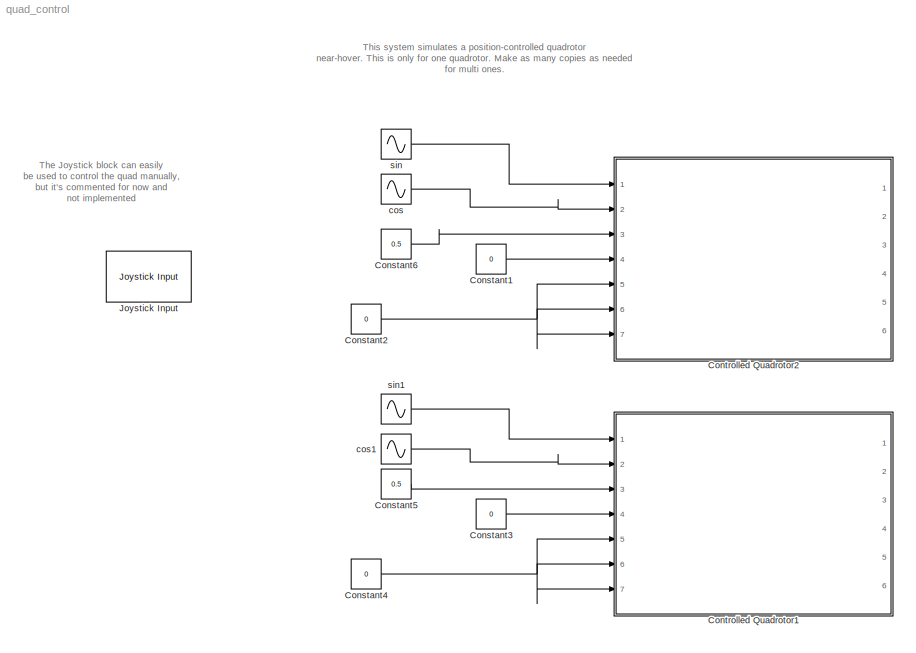
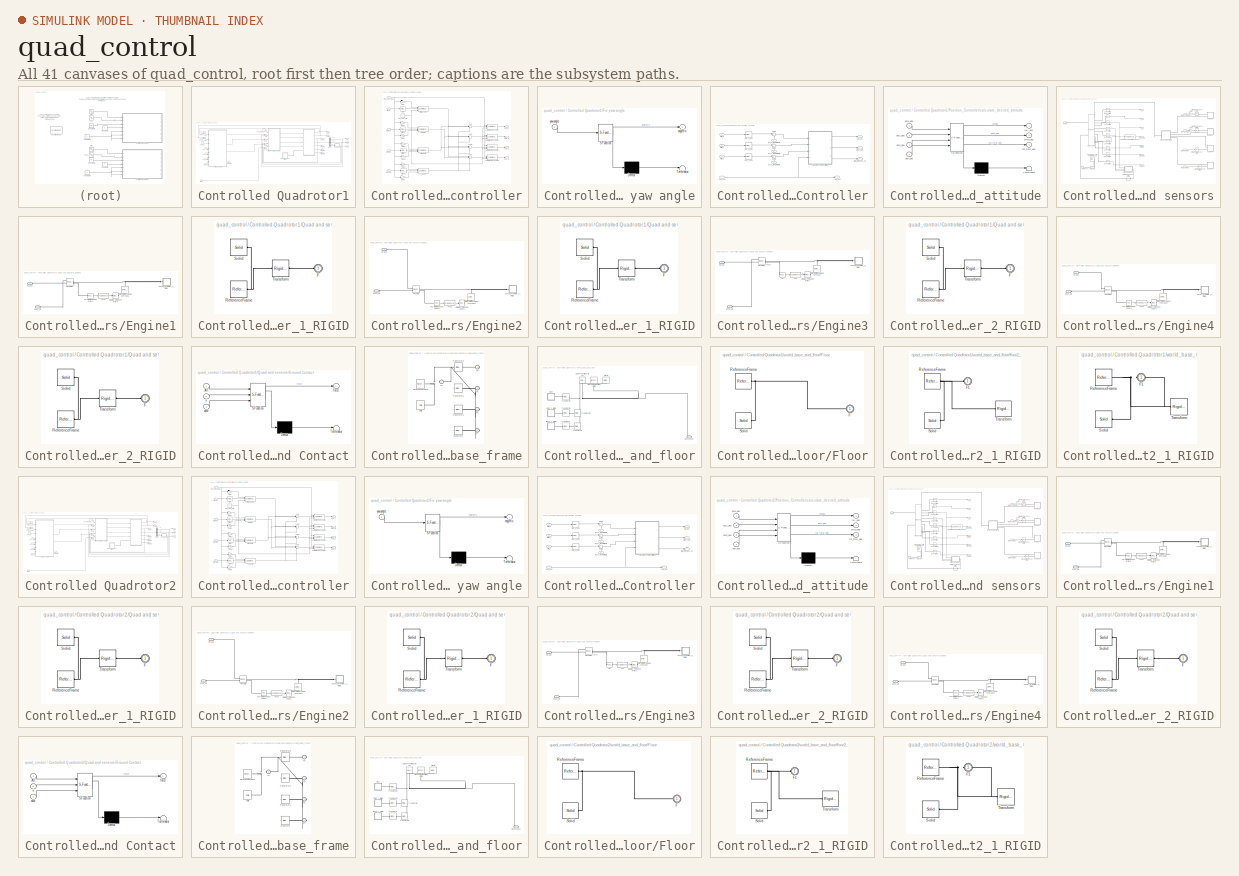
[diagram: thumbnail index - all 41 canvases of the model, root first then tree order]
MODEL quad_control
KIND model
BLOCK [Constant] Constant1
  SID = 479
  Value = 0
BLOCK [Constant] Constant2
  SID = 480
  Value = 0
BLOCK [Constant] Constant3
  SID = 692
  Value = 0
BLOCK [Constant] Constant4
  SID = 693
  Value = 0
BLOCK [Constant] Constant5
  SID = 694
  Value = 0.5
BLOCK [Constant] Constant6
  SID = 481
  Value = 0.5
BLOCK [SubSystem] Controlled Quadrotor1
  Ports = [7, 6]
  RequestExecContextInheritance = off
  SID = 695
BLOCK [Outport] Controlled Quadrotor1/Alt_meas
  IconDisplay = Port number
  Port = 3
  SID = 896
BLOCK [Inport] Controlled Quadrotor1/Altitude
  IconDisplay = Port number
  Port = 3
  SID = 698
BLOCK [SubSystem] Controlled Quadrotor1/Altitude and Attitude controller
  Ports = [5, 4]
  RequestExecContextInheritance = off
  SID = 703
BLOCK [Reference] Controlled Quadrotor1/Altitude and Attitude controller/Altitude Cmd  REF=simulink/Discontinuities/Saturation\nDynamic
  DoSatur = off
  LockScale = off
  OutDataType = fixdt(1, 16)
  OutDataTypeStr = Inherit: Same as second input
  OutMax = []
  OutMin = []
  OutScaling = 2^-10
  OutputDataTypeScalingMode = Same as second input
  Ports = [3, 1]
  RndMeth = Floor
  SID = 709
  SourceBlock = simulink/Discontinuities/Saturation\nDynamic
  SourceProductBaseCode = SL
  SourceProductName = Simulink
  SourceType = Saturation Dynamic
BLOCK [Reference] Controlled Quadrotor1/Altitude and Attitude controller/CrtAlt  REF=simulink/Continuous/PID Controller
  AntiWindupMode = none
  Controller = PID
  D = 5
  DOutDataTypeStr = Inherit: Inherit via internal rule
  DOutMax = []
  DOutMin = []
  DParamDataTypeStr = Inherit: Inherit via internal rule
  DParamMax = []
  DParamMin = []
  DifferentiatorICPrevScaledInput = 0
  DifferentiatorOutDataTypeStr = Inherit: Inherit via internal rule
  DifferentiatorOutMax = []
  DifferentiatorOutMin = []
  ExternalReset = none
  FilterContinuousStateAttributes = ''
  FilterMethod = Forward Euler
  FilterOutDataTypeStr = Inherit: Inherit via internal rule
  FilterOutMax = []
  FilterOutMin = []
  FilterRTWStateStorageClass = Auto
  FilterStateMustResolveToSignalObject = off
  Form = Parallel
  I = 10
  IOutDataTypeStr = Inherit: Inherit via internal rule
  IOutMax = []
  IOutMin = []
  IParamDataTypeStr = Inherit: Inherit via internal rule
  IParamMax = []
  IParamMin = []
  IgnoreLimit = off
  InitialConditionForFilter = 0
  InitialConditionForIntegrator = 0
  InitialConditionSource = internal
  IntegratorContinuousStateAttributes = ''
  IntegratorMethod = Forward Euler
  IntegratorOutDataTypeStr = Inherit: Inherit via internal rule
  IntegratorOutMax = []
  IntegratorOutMin = []
  IntegratorRTWStateStorageClass = Auto
  IntegratorStateMustResolveToSignalObject = off
  Kb = 1
  KbOutDataTypeStr = Inherit: Inherit via internal rule
  KbOutMax = []
  KbOutMin = []
  KbParamDataTypeStr = Inherit: Inherit via internal rule
  KbParamMax = []
  KbParamMin = []
  Kt = 1
  KtOutDataTypeStr = Inherit: Inherit via internal rule
  KtOutMax = []
  KtOutMin = []
  KtParamDataTypeStr = Inherit: Inherit via internal rule
  KtParamMax = []
  KtParamMin = []
  LimitOutput = off
  LinearizeAsGain = off
  LockScale = off
  LowerSaturationLimit = -0.116
  N = 100
  NOutDataTypeStr = Inherit: Inherit via internal rule
  NOutMax = []
  NOutMin = []
  NParamDataTypeStr = Inherit: Inherit via internal rule
  NParamMax = []
  NParamMin = []
  P = 20
  POutDataTypeStr = Inherit: Inherit via internal rule
  POutMax = []
  POutMin = []
  PParamDataTypeStr = Inherit: Inherit via internal rule
  PParamMax = []
  PParamMin = []
  Ports = [1, 1]
  RndMeth = Floor
  SID = 710
  SampleTime = 0.001
  SaturateOnIntegerOverflow = off
  SaturationOutDataTypeStr = Inherit: Same as input
  SaturationOutMax = []
  SaturationOutMin = []
  SourceBlock = simulink/Continuous/PID Controller
  SourceProductBaseCode = SL
  SourceProductName = Simulink
  SourceType = PID 1dof
  SumAccumDataTypeStr = Inherit: Inherit via internal rule
  SumDAccumDataTypeStr = Inherit: Inherit via internal rule
  SumDOutDataTypeStr = Inherit: Inherit via internal rule
  SumDOutMax = []
  SumDOutMin = []
  SumI1AccumDataTypeStr = Inherit: Inherit via internal rule
  SumI1OutDataTypeStr = Inherit: Inherit via internal rule
  SumI1OutMax = []
  SumI1OutMin = []
  SumI2AccumDataTypeStr = Inherit: Inherit via internal rule
  SumI2OutDataTypeStr = Inherit: Inherit via internal rule
  SumI2OutMax = []
  SumI2OutMin = []
  SumI3AccumDataTypeStr = Inherit: Inherit via internal rule
  SumI3OutDataTypeStr = Inherit: Inherit via internal rule
  SumI3OutMax = []
  SumI3OutMin = []
  SumOutDataTypeStr = Inherit: Inherit via internal rule
  SumOutMax = []
  SumOutMin = []
  TimeDomain = Discrete-time
  TrackingMode = off
  UpperSaturationLimit = 0.116
  UseFilter = on
  ZeroCross = on
BLOCK [Reference] Controlled Quadrotor1/Altitude and Attitude controller/CrtlPitch  REF=simulink/Continuous/PID Controller
  AntiWindupMode = none
  Controller = PD
  D = 1
  DOutDataTypeStr = Inherit: Inherit via internal rule
  DOutMax = []
  DOutMin = []
  DParamDataTypeStr = Inherit: Inherit via internal rule
  DParamMax = []
  DParamMin = []
  DifferentiatorICPrevScaledInput = 0
  DifferentiatorOutDataTypeStr = Inherit: Inherit via internal rule
  DifferentiatorOutMax = []
  DifferentiatorOutMin = []
  ExternalReset = none
  FilterContinuousStateAttributes = ''
  FilterMethod = Forward Euler
  FilterOutDataTypeStr = Inherit: Inherit via internal rule
  FilterOutMax = []
  FilterOutMin = []
  FilterRTWStateStorageClass = Auto
  FilterStateMustResolveToSignalObject = off
  Form = Parallel
  I = 0
  IOutDataTypeStr = Inherit: Inherit via internal rule
  IOutMax = []
  IOutMin = []
  IParamDataTypeStr = Inherit: Inherit via internal rule
  IParamMax = []
  IParamMin = []
  IgnoreLimit = off
  InitialConditionForFilter = 0
  InitialConditionForIntegrator = 0
  InitialConditionSource = internal
  IntegratorContinuousStateAttributes = ''
  IntegratorMethod = Forward Euler
  IntegratorOutDataTypeStr = Inherit: Inherit via internal rule
  IntegratorOutMax = []
  IntegratorOutMin = []
  IntegratorRTWStateStorageClass = Auto
  IntegratorStateMustResolveToSignalObject = off
  Kb = 1
  KbOutDataTypeStr = Inherit: Inherit via internal rule
  KbOutMax = []
  KbOutMin = []
  KbParamDataTypeStr = Inherit: Inherit via internal rule
  KbParamMax = []
  KbParamMin = []
  Kt = 1
  KtOutDataTypeStr = Inherit: Inherit via internal rule
  KtOutMax = []
  KtOutMin = []
  KtParamDataTypeStr = Inherit: Inherit via internal rule
  KtParamMax = []
  KtParamMin = []
  LimitOutput = off
  LinearizeAsGain = off
  LockScale = off
  LowerSaturationLimit = 0
  N = 100
  NOutDataTypeStr = Inherit: Inherit via internal rule
  NOutMax = []
  NOutMin = []
  NParamDataTypeStr = Inherit: Inherit via internal rule
  NParamMax = []
  NParamMin = []
  P = 2
  POutDataTypeStr = Inherit: Inherit via internal rule
  POutMax = []
  POutMin = []
  PParamDataTypeStr = Inherit: Inherit via internal rule
  PParamMax = []
  PParamMin = []
  Ports = [1, 1]
  RndMeth = Floor
  SID = 711
  SampleTime = 0.001
  SaturateOnIntegerOverflow = off
  SaturationOutDataTypeStr = Inherit: Same as input
  SaturationOutMax = []
  SaturationOutMin = []
  SourceBlock = simulink/Continuous/PID Controller
  SourceProductBaseCode = SL
  SourceProductName = Simulink
  SourceType = PID 1dof
  SumAccumDataTypeStr = Inherit: Inherit via internal rule
  SumDAccumDataTypeStr = Inherit: Inherit via internal rule
  SumDOutDataTypeStr = Inherit: Inherit via internal rule
  SumDOutMax = []
  SumDOutMin = []
  SumI1AccumDataTypeStr = Inherit: Inherit via internal rule
  SumI1OutDataTypeStr = Inherit: Inherit via internal rule
  SumI1OutMax = []
  SumI1OutMin = []
  SumI2AccumDataTypeStr = Inherit: Inherit via internal rule
  SumI2OutDataTypeStr = Inherit: Inherit via internal rule
  SumI2OutMax = []
  SumI2OutMin = []
  SumI3AccumDataTypeStr = Inherit: Inherit via internal rule
  SumI3OutDataTypeStr = Inherit: Inherit via internal rule
  SumI3OutMax = []
  SumI3OutMin = []
  SumOutDataTypeStr = Inherit: Inherit via internal rule
  SumOutMax = []
  SumOutMin = []
  TimeDomain = Discrete-time
  TrackingMode = off
  UpperSaturationLimit = +Inf
  UseFilter = on
  ZeroCross = on
BLOCK [Reference] Controlled Quadrotor1/Altitude and Attitude controller/CrtlYaw  REF=simulink/Continuous/PID Controller
  AntiWindupMode = none
  Controller = PD
  D = 0.01
  DOutDataTypeStr = Inherit: Inherit via internal rule
  DOutMax = []
  DOutMin = []
  DParamDataTypeStr = Inherit: Inherit via internal rule
  DParamMax = []
  DParamMin = []
  DifferentiatorICPrevScaledInput = 0
  DifferentiatorOutDataTypeStr = Inherit: Inherit via internal rule
  DifferentiatorOutMax = []
  DifferentiatorOutMin = []
  ExternalReset = none
  FilterContinuousStateAttributes = ''
  FilterMethod = Forward Euler
  FilterOutDataTypeStr = Inherit: Inherit via internal rule
  FilterOutMax = []
  FilterOutMin = []
  FilterRTWStateStorageClass = Auto
  FilterStateMustResolveToSignalObject = off
  Form = Parallel
  I = 1
  IOutDataTypeStr = Inherit: Inherit via internal rule
  IOutMax = []
  IOutMin = []
  IParamDataTypeStr = Inherit: Inherit via internal rule
  IParamMax = []
  IParamMin = []
  IgnoreLimit = off
  InitialConditionForFilter = 0
  InitialConditionForIntegrator = 0
  InitialConditionSource = internal
  IntegratorContinuousStateAttributes = ''
  IntegratorMethod = Forward Euler
  IntegratorOutDataTypeStr = Inherit: Inherit via internal rule
  IntegratorOutMax = []
  IntegratorOutMin = []
  IntegratorRTWStateStorageClass = Auto
  IntegratorStateMustResolveToSignalObject = off
  Kb = 1
  KbOutDataTypeStr = Inherit: Inherit via internal rule
  KbOutMax = []
  KbOutMin = []
  KbParamDataTypeStr = Inherit: Inherit via internal rule
  KbParamMax = []
  KbParamMin = []
  Kt = 1
  KtOutDataTypeStr = Inherit: Inherit via internal rule
  KtOutMax = []
  KtOutMin = []
  KtParamDataTypeStr = Inherit: Inherit via internal rule
  KtParamMax = []
  KtParamMin = []
  LimitOutput = off
  LinearizeAsGain = off
  LockScale = off
  LowerSaturationLimit = -0.01
  N = 100
  NOutDataTypeStr = Inherit: Inherit via internal rule
  NOutMax = []
  NOutMin = []
  NParamDataTypeStr = Inherit: Inherit via internal rule
  NParamMax = []
  NParamMin = []
  P = 0.05
  POutDataTypeStr = Inherit: Inherit via internal rule
  POutMax = []
  POutMin = []
  PParamDataTypeStr = Inherit: Inherit via internal rule
  PParamMax = []
  PParamMin = []
  Ports = [1, 1]
  RndMeth = Floor
  SID = 712
  SampleTime = 0.001
  SaturateOnIntegerOverflow = off
  SaturationOutDataTypeStr = Inherit: Same as input
  SaturationOutMax = []
  SaturationOutMin = []
  SourceBlock = simulink/Continuous/PID Controller
  SourceProductBaseCode = SL
  SourceProductName = Simulink
  SourceType = PID 1dof
  SumAccumDataTypeStr = Inherit: Inherit via internal rule
  SumDAccumDataTypeStr = Inherit: Inherit via internal rule
  SumDOutDataTypeStr = Inherit: Inherit via internal rule
  SumDOutMax = []
  SumDOutMin = []
  SumI1AccumDataTypeStr = Inherit: Inherit via internal rule
  SumI1OutDataTypeStr = Inherit: Inherit via internal rule
  SumI1OutMax = []
  SumI1OutMin = []
  SumI2AccumDataTypeStr = Inherit: Inherit via internal rule
  SumI2OutDataTypeStr = Inherit: Inherit via internal rule
  SumI2OutMax = []
  SumI2OutMin = []
  SumI3AccumDataTypeStr = Inherit: Inherit via internal rule
  SumI3OutDataTypeStr = Inherit: Inherit via internal rule
  SumI3OutMax = []
  SumI3OutMin = []
  SumOutDataTypeStr = Inherit: Inherit via internal rule
  SumOutMax = []
  SumOutMin = []
  TimeDomain = Discrete-time
  TrackingMode = off
  UpperSaturationLimit = 0.01
  UseFilter = on
  ZeroCross = on
BLOCK [Reference] Controlled Quadrotor1/Altitude and Attitude controller/CtrlRoll  REF=simulink/Continuous/PID Controller
  AntiWindupMode = none
  Controller = PD
  D = 1
  DOutDataTypeStr = Inherit: Inherit via internal rule
  DOutMax = []
  DOutMin = []
  DParamDataTypeStr = Inherit: Inherit via internal rule
  DParamMax = []
  DParamMin = []
  DifferentiatorICPrevScaledInput = 0
  DifferentiatorOutDataTypeStr = Inherit: Inherit via internal rule
  DifferentiatorOutMax = []
  DifferentiatorOutMin = []
  ExternalReset = none
  FilterContinuousStateAttributes = ''
  FilterMethod = Forward Euler
  FilterOutDataTypeStr = Inherit: Inherit via internal rule
  FilterOutMax = []
  FilterOutMin = []
  FilterRTWStateStorageClass = Auto
  FilterStateMustResolveToSignalObject = off
  Form = Parallel
  I = 0
  IOutDataTypeStr = Inherit: Inherit via internal rule
  IOutMax = []
  IOutMin = []
  IParamDataTypeStr = Inherit: Inherit via internal rule
  IParamMax = []
  IParamMin = []
  IgnoreLimit = off
  InitialConditionForFilter = 0
  InitialConditionForIntegrator = 0
  InitialConditionSource = internal
  IntegratorContinuousStateAttributes = ''
  IntegratorMethod = Forward Euler
  IntegratorOutDataTypeStr = Inherit: Inherit via internal rule
  IntegratorOutMax = []
  IntegratorOutMin = []
  IntegratorRTWStateStorageClass = Auto
  IntegratorStateMustResolveToSignalObject = off
  Kb = 1
  KbOutDataTypeStr = Inherit: Inherit via internal rule
  KbOutMax = []
  KbOutMin = []
  KbParamDataTypeStr = Inherit: Inherit via internal rule
  KbParamMax = []
  KbParamMin = []
  Kt = 1
  KtOutDataTypeStr = Inherit: Inherit via internal rule
  KtOutMax = []
  KtOutMin = []
  KtParamDataTypeStr = Inherit: Inherit via internal rule
  KtParamMax = []
  KtParamMin = []
  LimitOutput = off
  LinearizeAsGain = off
  LockScale = off
  LowerSaturationLimit = 0
  N = 100
  NOutDataTypeStr = Inherit: Inherit via internal rule
  NOutMax = []
  NOutMin = []
  NParamDataTypeStr = Inherit: Inherit via internal rule
  NParamMax = []
  NParamMin = []
  P = 2
  POutDataTypeStr = Inherit: Inherit via internal rule
  POutMax = []
  POutMin = []
  PParamDataTypeStr = Inherit: Inherit via internal rule
  PParamMax = []
  PParamMin = []
  Ports = [1, 1]
  RndMeth = Floor
  SID = 713
  SampleTime = 0.001
  SaturateOnIntegerOverflow = off
  SaturationOutDataTypeStr = Inherit: Same as input
  SaturationOutMax = []
  SaturationOutMin = []
  SourceBlock = simulink/Continuous/PID Controller
  SourceProductBaseCode = SL
  SourceProductName = Simulink
  SourceType = PID 1dof
  SumAccumDataTypeStr = Inherit: Inherit via internal rule
  SumDAccumDataTypeStr = Inherit: Inherit via internal rule
  SumDOutDataTypeStr = Inherit: Inherit via internal rule
  SumDOutMax = []
  SumDOutMin = []
  SumI1AccumDataTypeStr = Inherit: Inherit via internal rule
  SumI1OutDataTypeStr = Inherit: Inherit via internal rule
  SumI1OutMax = []
  SumI1OutMin = []
  SumI2AccumDataTypeStr = Inherit: Inherit via internal rule
  SumI2OutDataTypeStr = Inherit: Inherit via internal rule
  SumI2OutMax = []
  SumI2OutMin = []
  SumI3AccumDataTypeStr = Inherit: Inherit via internal rule
  SumI3OutDataTypeStr = Inherit: Inherit via internal rule
  SumI3OutMax = []
  SumI3OutMin = []
  SumOutDataTypeStr = Inherit: Inherit via internal rule
  SumOutMax = []
  SumOutMin = []
  TimeDomain = Discrete-time
  TrackingMode = off
  UpperSaturationLimit = +Inf
  UseFilter = on
  ZeroCross = on
BLOCK [Inport] Controlled Quadrotor1/Altitude and Attitude controller/Err_Alt
  IconDisplay = Port number
  Port = 5
  SID = 708
BLOCK [Inport] Controlled Quadrotor1/Altitude and Attitude controller/Err_Pitch
  IconDisplay = Port number
  Port = 3
  SID = 706
BLOCK [Inport] Controlled Quadrotor1/Altitude and Attitude controller/Err_Roll
  IconDisplay = Port number
  Port = 2
  SID = 705
BLOCK [Inport] Controlled Quadrotor1/Altitude and Attitude controller/Err_Yaw
  IconDisplay = Port number
  Port = 4
  SID = 707
BLOCK [Gain] Controlled Quadrotor1/Altitude and Attitude controller/Gain
  Gain = 0.8
  OutDataTypeStr = Inherit: Inherit via internal rule
  ParamDataTypeStr = Inherit: Inherit via internal rule
  SID = 714
  SaturateOnIntegerOverflow = off
BLOCK [Gain] Controlled Quadrotor1/Altitude and Attitude controller/Gain1
  Gain = 0.1
  OutDataTypeStr = Inherit: Inherit via internal rule
  ParamDataTypeStr = Inherit: Inherit via internal rule
  SID = 715
  SaturateOnIntegerOverflow = off
BLOCK [Gain] Controlled Quadrotor1/Altitude and Attitude controller/Gain2
  Gain = -0.1
  OutDataTypeStr = Inherit: Inherit via internal rule
  ParamDataTypeStr = Inherit: Inherit via internal rule
  SID = 716
  SaturateOnIntegerOverflow = off
BLOCK [Gain] Controlled Quadrotor1/Altitude and Attitude controller/Gain3
  Gain = 0.1
  OutDataTypeStr = Inherit: Inherit via internal rule
  ParamDataTypeStr = Inherit: Inherit via internal rule
  SID = 717
  SaturateOnIntegerOverflow = off
BLOCK [Gain] Controlled Quadrotor1/Altitude and Attitude controller/Gain4
  Gain = -0.1
  OutDataTypeStr = Inherit: Inherit via internal rule
  ParamDataTypeStr = Inherit: Inherit via internal rule
  SID = 718
  SaturateOnIntegerOverflow = off
BLOCK [Gain] Controlled Quadrotor1/Altitude and Attitude controller/Gain5
  Gain = 0.1
  OutDataTypeStr = Inherit: Inherit via internal rule
  ParamDataTypeStr = Inherit: Inherit via internal rule
  SID = 719
  SaturateOnIntegerOverflow = off
BLOCK [Gain] Controlled Quadrotor1/Altitude and Attitude controller/Gain6
  Gain = -0.1
  OutDataTypeStr = Inherit: Inherit via internal rule
  ParamDataTypeStr = Inherit: Inherit via internal rule
  SID = 720
  SaturateOnIntegerOverflow = off
BLOCK [Reference] Controlled Quadrotor1/Altitude and Attitude controller/Pitch Cmd  REF=simulink/Discontinuities/Saturation\nDynamic
  DoSatur = off
  LockScale = on
  OutDataType = fixdt(1, 16)
  OutDataTypeStr = Inherit: Same as second input
  OutMax = []
  OutMin = []
  OutScaling = 2^-10
  OutputDataTypeScalingMode = Same as second input
  Ports = [3, 1]
  RndMeth = Floor
  SID = 721
  SourceBlock = simulink/Discontinuities/Saturation\nDynamic
  SourceProductBaseCode = SL
  SourceProductName = Simulink
  SourceType = Saturation Dynamic
BLOCK [Inport] Controlled Quadrotor1/Altitude and Attitude controller/Ref_Spd_Max
  IconDisplay = Port number
  SID = 704
BLOCK [Constant] Controlled Quadrotor1/Altitude and Attitude controller/Ref_Spd_Min
  SID = 722
  Value = 0
BLOCK [Reference] Controlled Quadrotor1/Altitude and Attitude controller/Roll Cmd  REF=simulink/Discontinuities/Saturation\nDynamic
  DoSatur = off
  LockScale = on
  OutDataType = fixdt(1, 16)
  OutDataTypeStr = Inherit: Same as second input
  OutMax = []
  OutMin = []
  OutScaling = 2^-10
  OutputDataTypeScalingMode = Same as second input
  Ports = [3, 1]
  RndMeth = Floor
  SID = 723
  SourceBlock = simulink/Discontinuities/Saturation\nDynamic
  SourceProductBaseCode = SL
  SourceProductName = Simulink
  SourceType = Saturation Dynamic
BLOCK [Reference] Controlled Quadrotor1/Altitude and Attitude controller/Saturation\nDynamic  REF=simulink/Discontinuities/Saturation\nDynamic
  DoSatur = off
  LockScale = off
  OutDataType = fixdt(1, 16)
  OutDataTypeStr = Inherit: Same as second input
  OutMax = []
  OutMin = []
  OutScaling = 2^-10
  OutputDataTypeScalingMode = Same as second input
  Ports = [3, 1]
  RndMeth = Floor
  SID = 724
  SourceBlock = simulink/Discontinuities/Saturation\nDynamic
  SourceProductBaseCode = SL
  SourceProductName = Simulink
  SourceType = Saturation Dynamic
BLOCK [Reference] Controlled Quadrotor1/Altitude and Attitude controller/Saturation\nDynamic1  REF=simulink/Discontinuities/Saturation\nDynamic
  DoSatur = off
  LockScale = off
  OutDataType = fixdt(1, 16)
  OutDataTypeStr = Inherit: Same as second input
  OutMax = []
  OutMin = []
  OutScaling = 2^-10
  OutputDataTypeScalingMode = Same as second input
  Ports = [3, 1]
  RndMeth = Floor
  SID = 725
  SourceBlock = simulink/Discontinuities/Saturation\nDynamic
  SourceProductBaseCode = SL
  SourceProductName = Simulink
  SourceType = Saturation Dynamic
BLOCK [Reference] Controlled Quadrotor1/Altitude and Attitude controller/Saturation\nDynamic2  REF=simulink/Discontinuities/Saturation\nDynamic
  DoSatur = off
  LockScale = off
  OutDataType = fixdt(1, 16)
  OutDataTypeStr = Inherit: Same as second input
  OutMax = []
  OutMin = []
  OutScaling = 2^-10
  OutputDataTypeScalingMode = Same as second input
  Ports = [3, 1]
  RndMeth = Floor
  SID = 726
  SourceBlock = simulink/Discontinuities/Saturation\nDynamic
  SourceProductBaseCode = SL
  SourceProductName = Simulink
  SourceType = Saturation Dynamic
BLOCK [Reference] Controlled Quadrotor1/Altitude and Attitude controller/Saturation\nDynamic3  REF=simulink/Discontinuities/Saturation\nDynamic
  DoSatur = off
  LockScale = off
  OutDataType = fixdt(1, 16)
  OutDataTypeStr = Inherit: Same as second input
  OutMax = []
  OutMin = []
  OutScaling = 2^-10
  OutputDataTypeScalingMode = Same as second input
  Ports = [3, 1]
  RndMeth = Floor
  SID = 727
  SourceBlock = simulink/Discontinuities/Saturation\nDynamic
  SourceProductBaseCode = SL
  SourceProductName = Simulink
  SourceType = Saturation Dynamic
BLOCK [Outport] Controlled Quadrotor1/Altitude and Attitude controller/Spd_A
  IconDisplay = Port number
  SID = 733
BLOCK [Outport] Controlled Quadrotor1/Altitude and Attitude controller/Spd_B
  IconDisplay = Port number
  Port = 2
  SID = 734
BLOCK [Outport] Controlled Quadrotor1/Altitude and Attitude controller/Spd_C
  IconDisplay = Port number
  Port = 3
  SID = 735
BLOCK [Outport] Controlled Quadrotor1/Altitude and Attitude controller/Spd_D
  IconDisplay = Port number
  Port = 4
  SID = 736
BLOCK [Sum] Controlled Quadrotor1/Altitude and Attitude controller/Sum
  IconShape = round
  InputSameDT = off
  Inputs = |+-+
  OutDataTypeStr = Inherit: Inherit via internal rule
  Ports = [3, 1]
  SID = 728
  SaturateOnIntegerOverflow = off
BLOCK [Sum] Controlled Quadrotor1/Altitude and Attitude controller/Sum2
  IconShape = round
  InputSameDT = off
  Inputs = |++-
  OutDataTypeStr = Inherit: Inherit via internal rule
  Ports = [3, 1]
  SID = 729
  SaturateOnIntegerOverflow = off
BLOCK [Sum] Controlled Quadrotor1/Altitude and Attitude controller/Sum3
  IconShape = round
  InputSameDT = off
  Inputs = |+--
  OutDataTypeStr = Inherit: Inherit via internal rule
  Ports = [3, 1]
  SID = 730
  SaturateOnIntegerOverflow = off
BLOCK [Sum] Controlled Quadrotor1/Altitude and Attitude controller/Sum5
  IconShape = round
  InputSameDT = off
  Inputs = |+++
  OutDataTypeStr = Inherit: Inherit via internal rule
  Ports = [3, 1]
  SID = 731
  SaturateOnIntegerOverflow = off
BLOCK [Reference] Controlled Quadrotor1/Altitude and Attitude controller/Yaw Cmd  REF=simulink/Discontinuities/Saturation\nDynamic
  DoSatur = off
  LockScale = on
  OutDataType = fixdt(1, 16)
  OutDataTypeStr = Inherit: Same as second input
  OutMax = []
  OutMin = []
  OutScaling = 2^-10
  OutputDataTypeScalingMode = Same as second input
  Ports = [3, 1]
  RndMeth = Floor
  SID = 732
  SourceBlock = simulink/Discontinuities/Saturation\nDynamic
  SourceProductBaseCode = SL
  SourceProductName = Simulink
  SourceType = Saturation Dynamic
BLOCK [Constant] Controlled Quadrotor1/Constant
  SID = 737
  Value = 0
BLOCK [Demux] Controlled Quadrotor1/Demux
  DisplayOption = bar
  Outputs = 3
  Ports = [1, 3]
  SID = 738
BLOCK [SubSystem] Controlled Quadrotor1/Fix yaw angle
  ErrorFcn = Stateflow.Translate.translate
  PermitHierarchicalResolution = ExplicitOnly
  Ports = [1, 1]
  RequestExecContextInheritance = off
  SFBlockType = MATLAB Function
  SID = 739
  TreatAsAtomicUnit = on
BLOCK [Demux] Controlled Quadrotor1/Fix yaw angle/ Demux 
  Outputs = 1
  Ports = [1, 1]
  SID = 739::20
BLOCK [S-Function] Controlled Quadrotor1/Fix yaw angle/ SFunction 
  EnableBusSupport = off
  FunctionName = sf_sfun
  PortCounts = [1 2]
  Ports = [1, 2]
  SFcnIsStateOwnerBlock = off
  SFunctionDeploymentMode = off
  SID = 739::19
  Tag = Stateflow S-Function 3
BLOCK [Terminator] Controlled Quadrotor1/Fix yaw angle/ Terminator 
  SID = 739::21
BLOCK [Outport] Controlled Quadrotor1/Fix yaw angle/anglefix
  IconDisplay = Port number
  SID = 739::5
BLOCK [Inport] Controlled Quadrotor1/Fix yaw angle/yawangle
  IconDisplay = Port number
  SID = 739::1
BLOCK [SubSystem] Controlled Quadrotor1/Position_Controller
  Ports = [7, 4]
  RequestExecContextInheritance = off
  SID = 740
BLOCK [Reference] Controlled Quadrotor1/Position_Controller/PID_X_pos  REF=simulink/Continuous/PID Controller
  AntiWindupMode = none
  Controller = PD
  D = 3
  DOutDataTypeStr = Inherit: Inherit via internal rule
  DOutMax = []
  DOutMin = []
  DParamDataTypeStr = Inherit: Inherit via internal rule
  DParamMax = []
  DParamMin = []
  DifferentiatorICPrevScaledInput = 0
  DifferentiatorOutDataTypeStr = Inherit: Inherit via internal rule
  DifferentiatorOutMax = []
  DifferentiatorOutMin = []
  ExternalReset = none
  FilterContinuousStateAttributes = ''
  FilterMethod = Forward Euler
  FilterOutDataTypeStr = Inherit: Inherit via internal rule
  FilterOutMax = []
  FilterOutMin = []
  FilterRTWStateStorageClass = Auto
  FilterStateMustResolveToSignalObject = off
  Form = Parallel
  I = 1
  IOutDataTypeStr = Inherit: Inherit via internal rule
  IOutMax = []
  IOutMin = []
  IParamDataTypeStr = Inherit: Inherit via internal rule
  IParamMax = []
  IParamMin = []
  IgnoreLimit = off
  InitialConditionForFilter = 0
  InitialConditionForIntegrator = 0
  InitialConditionSource = internal
  IntegratorContinuousStateAttributes = ''
  IntegratorMethod = Forward Euler
  IntegratorOutDataTypeStr = Inherit: Inherit via internal rule
  IntegratorOutMax = []
  IntegratorOutMin = []
  IntegratorRTWStateStorageClass = Auto
  IntegratorStateMustResolveToSignalObject = off
  Kb = 1
  KbOutDataTypeStr = Inherit: Inherit via internal rule
  KbOutMax = []
  KbOutMin = []
  KbParamDataTypeStr = Inherit: Inherit via internal rule
  KbParamMax = []
  KbParamMin = []
  Kt = 1
  KtOutDataTypeStr = Inherit: Inherit via internal rule
  KtOutMax = []
  KtOutMin = []
  KtParamDataTypeStr = Inherit: Inherit via internal rule
  KtParamMax = []
  KtParamMin = []
  LimitOutput = off
  LinearizeAsGain = on
  LockScale = off
  LowerSaturationLimit = -inf
  N = 148.847847480226
  NOutDataTypeStr = Inherit: Inherit via internal rule
  NOutMax = []
  NOutMin = []
  NParamDataTypeStr = Inherit: Inherit via internal rule
  NParamMax = []
  NParamMin = []
  P = 10
  POutDataTypeStr = Inherit: Inherit via internal rule
  POutMax = []
  POutMin = []
  PParamDataTypeStr = Inherit: Inherit via internal rule
  PParamMax = []
  PParamMin = []
  Ports = [1, 1]
  RndMeth = Floor
  SID = 748
  SampleTime = 0.01
  SaturateOnIntegerOverflow = off
  SaturationOutDataTypeStr = Inherit: Same as input
  SaturationOutMax = []
  SaturationOutMin = []
  SourceBlock = simulink/Continuous/PID Controller
  SourceProductBaseCode = SL
  SourceProductName = Simulink
  SourceType = PID 1dof
  SumAccumDataTypeStr = Inherit: Inherit via internal rule
  SumDAccumDataTypeStr = Inherit: Inherit via internal rule
  SumDOutDataTypeStr = Inherit: Inherit via internal rule
  SumDOutMax = []
  SumDOutMin = []
  SumI1AccumDataTypeStr = Inherit: Inherit via internal rule
  SumI1OutDataTypeStr = Inherit: Inherit via internal rule
  SumI1OutMax = []
  SumI1OutMin = []
  SumI2AccumDataTypeStr = Inherit: Inherit via internal rule
  SumI2OutDataTypeStr = Inherit: Inherit via internal rule
  SumI2OutMax = []
  SumI2OutMin = []
  SumI3AccumDataTypeStr = Inherit: Inherit via internal rule
  SumI3OutDataTypeStr = Inherit: Inherit via internal rule
  SumI3OutMax = []
  SumI3OutMin = []
  SumOutDataTypeStr = Inherit: Inherit via internal rule
  SumOutMax = []
  SumOutMin = []
  TimeDomain = Discrete-time
  TrackingMode = off
  UpperSaturationLimit = inf
  UseFilter = on
  ZeroCross = on
BLOCK [Reference] Controlled Quadrotor1/Position_Controller/PID_Y_pos  REF=simulink/Continuous/PID Controller
  AntiWindupMode = none
  Controller = PD
  D = 3
  DOutDataTypeStr = Inherit: Inherit via internal rule
  DOutMax = []
  DOutMin = []
  DParamDataTypeStr = Inherit: Inherit via internal rule
  DParamMax = []
  DParamMin = []
  DifferentiatorICPrevScaledInput = 0
  DifferentiatorOutDataTypeStr = Inherit: Inherit via internal rule
  DifferentiatorOutMax = []
  DifferentiatorOutMin = []
  ExternalReset = none
  FilterContinuousStateAttributes = ''
  FilterMethod = Forward Euler
  FilterOutDataTypeStr = Inherit: Inherit via internal rule
  FilterOutMax = []
  FilterOutMin = []
  FilterRTWStateStorageClass = Auto
  FilterStateMustResolveToSignalObject = off
  Form = Parallel
  I = 1
  IOutDataTypeStr = Inherit: Inherit via internal rule
  IOutMax = []
  IOutMin = []
  IParamDataTypeStr = Inherit: Inherit via internal rule
  IParamMax = []
  IParamMin = []
  IgnoreLimit = off
  InitialConditionForFilter = 0
  InitialConditionForIntegrator = 0
  InitialConditionSource = internal
  IntegratorContinuousStateAttributes = ''
  IntegratorMethod = Forward Euler
  IntegratorOutDataTypeStr = Inherit: Inherit via internal rule
  IntegratorOutMax = []
  IntegratorOutMin = []
  IntegratorRTWStateStorageClass = Auto
  IntegratorStateMustResolveToSignalObject = off
  Kb = 1
  KbOutDataTypeStr = Inherit: Inherit via internal rule
  KbOutMax = []
  KbOutMin = []
  KbParamDataTypeStr = Inherit: Inherit via internal rule
  KbParamMax = []
  KbParamMin = []
  Kt = 1
  KtOutDataTypeStr = Inherit: Inherit via internal rule
  KtOutMax = []
  KtOutMin = []
  KtParamDataTypeStr = Inherit: Inherit via internal rule
  KtParamMax = []
  KtParamMin = []
  LimitOutput = off
  LinearizeAsGain = on
  LockScale = off
  LowerSaturationLimit = -inf
  N = 100
  NOutDataTypeStr = Inherit: Inherit via internal rule
  NOutMax = []
  NOutMin = []
  NParamDataTypeStr = Inherit: Inherit via internal rule
  NParamMax = []
  NParamMin = []
  P = 10
  POutDataTypeStr = Inherit: Inherit via internal rule
  POutMax = []
  POutMin = []
  PParamDataTypeStr = Inherit: Inherit via internal rule
  PParamMax = []
  PParamMin = []
  Ports = [1, 1]
  RndMeth = Floor
  SID = 749
  SampleTime = 0.01
  SaturateOnIntegerOverflow = off
  SaturationOutDataTypeStr = Inherit: Same as input
  SaturationOutMax = []
  SaturationOutMin = []
  SourceBlock = simulink/Continuous/PID Controller
  SourceProductBaseCode = SL
  SourceProductName = Simulink
  SourceType = PID 1dof
  SumAccumDataTypeStr = Inherit: Inherit via internal rule
  SumDAccumDataTypeStr = Inherit: Inherit via internal rule
  SumDOutDataTypeStr = Inherit: Inherit via internal rule
  SumDOutMax = []
  SumDOutMin = []
  SumI1AccumDataTypeStr = Inherit: Inherit via internal rule
  SumI1OutDataTypeStr = Inherit: Inherit via internal rule
  SumI1OutMax = []
  SumI1OutMin = []
  SumI2AccumDataTypeStr = Inherit: Inherit via internal rule
  SumI2OutDataTypeStr = Inherit: Inherit via internal rule
  SumI2OutMax = []
  SumI2OutMin = []
  SumI3AccumDataTypeStr = Inherit: Inherit via internal rule
  SumI3OutDataTypeStr = Inherit: Inherit via internal rule
  SumI3OutMax = []
  SumI3OutMin = []
  SumOutDataTypeStr = Inherit: Inherit via internal rule
  SumOutMax = []
  SumOutMin = []
  TimeDomain = Discrete-time
  TrackingMode = off
  UpperSaturationLimit = inf
  UseFilter = on
  ZeroCross = on
BLOCK [Reference] Controlled Quadrotor1/Position_Controller/PID_Z_pos  REF=simulink/Continuous/PID Controller
  AntiWindupMode = none
  Controller = PD
  D = 0.001
  DOutDataTypeStr = Inherit: Inherit via internal rule
  DOutMax = []
  DOutMin = []
  DParamDataTypeStr = Inherit: Inherit via internal rule
  DParamMax = []
  DParamMin = []
  DifferentiatorICPrevScaledInput = 0
  DifferentiatorOutDataTypeStr = Inherit: Inherit via internal rule
  DifferentiatorOutMax = []
  DifferentiatorOutMin = []
  ExternalReset = none
  FilterContinuousStateAttributes = ''
  FilterMethod = Forward Euler
  FilterOutDataTypeStr = Inherit: Inherit via internal rule
  FilterOutMax = []
  FilterOutMin = []
  FilterRTWStateStorageClass = Auto
  FilterStateMustResolveToSignalObject = off
  Form = Parallel
  I = 10
  IOutDataTypeStr = Inherit: Inherit via internal rule
  IOutMax = []
  IOutMin = []
  IParamDataTypeStr = Inherit: Inherit via internal rule
  IParamMax = []
  IParamMin = []
  IgnoreLimit = off
  InitialConditionForFilter = 0
  InitialConditionForIntegrator = 0
  InitialConditionSource = internal
  IntegratorContinuousStateAttributes = ''
  IntegratorMethod = Forward Euler
  IntegratorOutDataTypeStr = Inherit: Inherit via internal rule
  IntegratorOutMax = []
  IntegratorOutMin = []
  IntegratorRTWStateStorageClass = Auto
  IntegratorStateMustResolveToSignalObject = off
  Kb = 1
  KbOutDataTypeStr = Inherit: Inherit via internal rule
  KbOutMax = []
  KbOutMin = []
  KbParamDataTypeStr = Inherit: Inherit via internal rule
  KbParamMax = []
  KbParamMin = []
  Kt = 1
  KtOutDataTypeStr = Inherit: Inherit via internal rule
  KtOutMax = []
  KtOutMin = []
  KtParamDataTypeStr = Inherit: Inherit via internal rule
  KtParamMax = []
  KtParamMin = []
  LimitOutput = off
  LinearizeAsGain = on
  LockScale = off
  LowerSaturationLimit = -inf
  N = 100
  NOutDataTypeStr = Inherit: Inherit via internal rule
  NOutMax = []
  NOutMin = []
  NParamDataTypeStr = Inherit: Inherit via internal rule
  NParamMax = []
  NParamMin = []
  P = 2
  POutDataTypeStr = Inherit: Inherit via internal rule
  POutMax = []
  POutMin = []
  PParamDataTypeStr = Inherit: Inherit via internal rule
  PParamMax = []
  PParamMin = []
  Ports = [1, 1]
  RndMeth = Floor
  SID = 750
  SampleTime = 0.01
  SaturateOnIntegerOverflow = off
  SaturationOutDataTypeStr = Inherit: Same as input
  SaturationOutMax = []
  SaturationOutMin = []
  SourceBlock = simulink/Continuous/PID Controller
  SourceProductBaseCode = SL
  SourceProductName = Simulink
  SourceType = PID 1dof
  SumAccumDataTypeStr = Inherit: Inherit via internal rule
  SumDAccumDataTypeStr = Inherit: Inherit via internal rule
  SumDOutDataTypeStr = Inherit: Inherit via internal rule
  SumDOutMax = []
  SumDOutMin = []
  SumI1AccumDataTypeStr = Inherit: Inherit via internal rule
  SumI1OutDataTypeStr = Inherit: Inherit via internal rule
  SumI1OutMax = []
  SumI1OutMin = []
  SumI2AccumDataTypeStr = Inherit: Inherit via internal rule
  SumI2OutDataTypeStr = Inherit: Inherit via internal rule
  SumI2OutMax = []
  SumI2OutMin = []
  SumI3AccumDataTypeStr = Inherit: Inherit via internal rule
  SumI3OutDataTypeStr = Inherit: Inherit via internal rule
  SumI3OutMax = []
  SumI3OutMin = []
  SumOutDataTypeStr = Inherit: Inherit via internal rule
  SumOutMax = []
  SumOutMin = []
  TimeDomain = Discrete-time
  TrackingMode = off
  UpperSaturationLimit = inf
  UseFilter = on
  ZeroCross = on
BLOCK [Sum] Controlled Quadrotor1/Position_Controller/Sum3
  IconShape = round
  InputSameDT = off
  Inputs = |++
  OutDataTypeStr = Inherit: Inherit via internal rule
  Ports = [2, 1]
  SID = 751
  SaturateOnIntegerOverflow = off
BLOCK [Sum] Controlled Quadrotor1/Position_Controller/Sum4
  IconShape = round
  InputSameDT = off
  Inputs = |++
  OutDataTypeStr = Inherit: Inherit via internal rule
  Ports = [2, 1]
  SID = 752
  SaturateOnIntegerOverflow = off
BLOCK [Sum] Controlled Quadrotor1/Position_Controller/Sum5
  IconShape = round
  InputSameDT = off
  Inputs = |++
  OutDataTypeStr = Inherit: Inherit via internal rule
  Ports = [2, 1]
  SID = 753
  SaturateOnIntegerOverflow = off
BLOCK [Inport] Controlled Quadrotor1/Position_Controller/Yaw_des
  IconDisplay = Port number
  Port = 7
  SID = 747
BLOCK [Inport] Controlled Quadrotor1/Position_Controller/accX_feedforward
  IconDisplay = Port number
  Port = 4
  SID = 744
BLOCK [Inport] Controlled Quadrotor1/Position_Controller/accY_feedforward
  IconDisplay = Port number
  Port = 5
  SID = 745
BLOCK [Inport] Controlled Quadrotor1/Position_Controller/accZ_feedforward
  IconDisplay = Port number
  Port = 6
  SID = 746
BLOCK [SubSystem] Controlled Quadrotor1/Position_Controller/calculate_desired_attitude
  ErrorFcn = Stateflow.Translate.translate
  PermitHierarchicalResolution = ExplicitOnly
  Ports = [4, 3]
  RequestExecContextInheritance = off
  SFBlockType = MATLAB Function
  SID = 754
  TreatAsAtomicUnit = on
BLOCK [Demux] Controlled Quadrotor1/Position_Controller/calculate_desired_attitude/ Demux 
  Outputs = 1
  Ports = [1, 1]
  SID = 754::25
BLOCK [S-Function] Controlled Quadrotor1/Position_Controller/calculate_desired_attitude/ SFunction 
  EnableBusSupport = off
  FunctionName = sf_sfun
  PortCounts = [4 4]
  Ports = [4, 4]
  SFcnIsStateOwnerBlock = off
  SFunctionDeploymentMode = off
  SID = 754::24
  Tag = Stateflow S-Function 5
BLOCK [Terminator] Controlled Quadrotor1/Position_Controller/calculate_desired_attitude/ Terminator 
  SID = 754::26
BLOCK [Inport] Controlled Quadrotor1/Position_Controller/calculate_desired_attitude/accx_des
  IconDisplay = Port number
  SID = 754::1
BLOCK [Inport] Controlled Quadrotor1/Position_Controller/calculate_desired_attitude/accy_des
  IconDisplay = Port number
  Port = 2
  SID = 754::19
BLOCK [Inport] Controlled Quadrotor1/Position_Controller/calculate_desired_attitude/accz_des
  IconDisplay = Port number
  Port = 3
  SID = 754::20
BLOCK [Outport] Controlled Quadrotor1/Position_Controller/calculate_desired_attitude/pitch_des
  IconDisplay = Port number
  Port = 2
  SID = 754::22
BLOCK [Outport] Controlled Quadrotor1/Position_Controller/calculate_desired_attitude/roll_des
  IconDisplay = Port number
  SID = 754::5
BLOCK [Outport] Controlled Quadrotor1/Position_Controller/calculate_desired_attitude/tot_thrst_des
  IconDisplay = Port number
  Port = 3
  SID = 754::23
BLOCK [Inport] Controlled Quadrotor1/Position_Controller/calculate_desired_attitude/yaw_des
  IconDisplay = Port number
  Port = 4
  SID = 754::21
BLOCK [Inport] Controlled Quadrotor1/Position_Controller/error_x
  IconDisplay = Port number
  SID = 741
BLOCK [Inport] Controlled Quadrotor1/Position_Controller/error_y
  IconDisplay = Port number
  Port = 2
  SID = 742
BLOCK [Inport] Controlled Quadrotor1/Position_Controller/error_z
  IconDisplay = Port number
  Port = 3
  SID = 743
BLOCK [Outport] Controlled Quadrotor1/Position_Controller/pitch_des
  IconDisplay = Port number
  Port = 2
  SID = 756
BLOCK [Outport] Controlled Quadrotor1/Position_Controller/roll_des
  IconDisplay = Port number
  SID = 755
BLOCK [Outport] Controlled Quadrotor1/Position_Controller/total_thrst_des_u1
  IconDisplay = Port number
  Port = 4
  SID = 758
BLOCK [Outport] Controlled Quadrotor1/Position_Controller/yaw_des
  IconDisplay = Port number
  Port = 3
  SID = 757
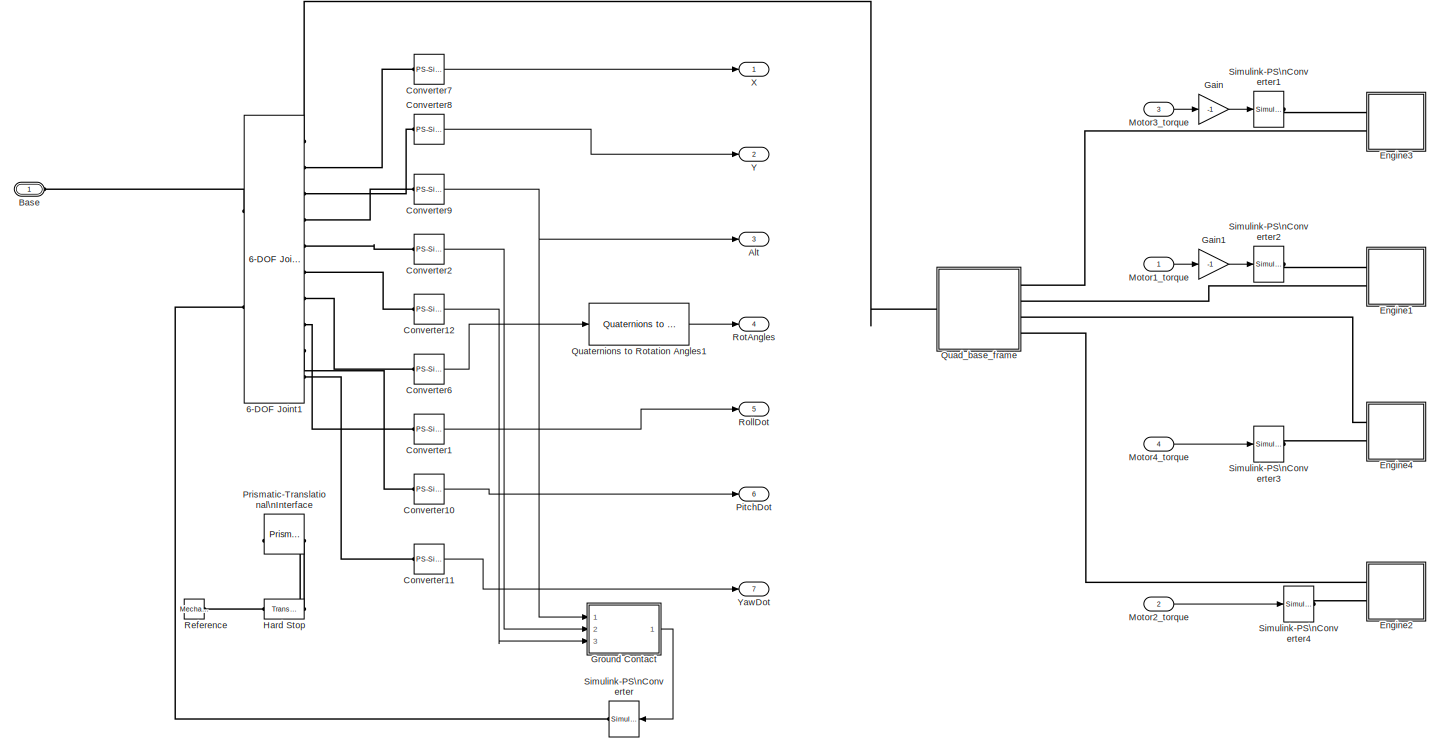
[diagram: Controlled Quadrotor1/Quad and sensors - part 1/1, most of the canvas]
BLOCK [SubSystem] Controlled Quadrotor1/Quad and sensors
  Ports = [4, 7, 0, 0, 0, 1]
  RequestExecContextInheritance = off
  SID = 759
BLOCK [Reference] Controlled Quadrotor1/Quad and sensors/6-DOF Joint1  REF=sm_lib/Joints/6-DOF Joint
  BlockFunction = simmechanics.library.joints.sixdof_joint
  ClassName = SixDofJoint
  CompositeWrenchDir = FollowerOnBase
  CompositeWrenchFrame = BaseFrame
  LogSimulationData = off
  Ports = [0, 0, 0, 0, 0, 2, 10]
  PxDampingCoefficient = 0
  PxDampingCoefficientUnits = N/(m/s)
  PxEquilibriumPosition = 0
  PxEquilibriumPositionUnits = m
  PxMotionActuationMode = ComputedMotion
  PxPositionTargetPriority = High
  PxPositionTargetSpecify = off
  PxPositionTargetValue = 1
  PxPositionTargetValueUnits = m
  PxSenseAcceleration = off
  PxSensePosition = on
  PxSenseTorqueForce = off
  PxSenseVelocity = off
  PxSpringStiffness = 0
  PxSpringStiffnessUnits = N/m
  PxTorqueActuationMode = NoTorque
  PxVelocityTargetPriority = High
  PxVelocityTargetSpecify = off
  PxVelocityTargetValue = 0
  PxVelocityTargetValueUnits = m/s
  PyDampingCoefficient = 0
  PyDampingCoefficientUnits = N/(m/s)
  PyEquilibriumPosition = 0
  PyEquilibriumPositionUnits = m
  PyMotionActuationMode = ComputedMotion
  PyPositionTargetPriority = High
  PyPositionTargetSpecify = off
  PyPositionTargetValue = 0
  PyPositionTargetValueUnits = m
  PySenseAcceleration = off
  PySensePosition = on
  PySenseTorqueForce = off
  PySenseVelocity = off
  PySpringStiffness = 0
  PySpringStiffnessUnits = N/m
  PyTorqueActuationMode = NoTorque
  PyVelocityTargetPriority = High
  PyVelocityTargetSpecify = off
  PyVelocityTargetValue = 0
  PyVelocityTargetValueUnits = m/s
  PzDampingCoefficient = 0
  PzDampingCoefficientUnits = N/(m/s)
  PzEquilibriumPosition = 0
  PzEquilibriumPositionUnits = m
  PzMotionActuationMode = ComputedMotion
  PzPositionTargetPriority = High
  PzPositionTargetSpecify = off
  PzPositionTargetValue = 2
  PzPositionTargetValueUnits = m
  PzSenseAcceleration = on
  PzSensePosition = on
  PzSenseTorqueForce = off
  PzSenseVelocity = on
  PzSpringStiffness = 0
  PzSpringStiffnessUnits = N/m
  PzTorqueActuationMode = InputTorque
  PzVelocityTargetPriority = High
  PzVelocityTargetSpecify = off
  PzVelocityTargetValue = 0
  PzVelocityTargetValueUnits = m/s
  SID = 764
  SenseConstraintForce = off
  SenseConstraintForceX = off
  SenseConstraintForceY = off
  SenseConstraintForceZ = off
  SenseConstraintTorque = off
  SenseConstraintTorqueX = off
  SenseConstraintTorqueY = off
  SenseConstraintTorqueZ = off
  SenseTotalForce = off
  SenseTotalForceX = off
  SenseTotalForceY = off
  SenseTotalForceZ = off
  SenseTotalTorque = off
  SenseTotalTorqueX = off
  SenseTotalTorqueY = off
  SenseTotalTorqueZ = off
  SourceBlock = sm_lib/Joints/6-DOF Joint
  SourceProductBaseCode = MS
  SourceProductName = Simscape Multibody
  SourceType = 6-DOF Joint
  SphActuateTorque = off
  SphActuateTorqueX = off
  SphActuateTorqueY = off
  SphActuateTorqueZ = off
  SphActuationFrame = BaseFrame
  SphDampingCoefficient = 0
  SphDampingCoefficientUnits = N*m/(deg/s)
  SphDefPosBaseAlignAxisA = +Y
  SphDefPosBaseAlignAxisB = +Z
  SphDefPosFollAlignAxisA = +X
  SphDefPosFollAlignAxisB = +Y
  SphDefPosRotationAngle = 0.0
  SphDefPosRotationAngleUnits = deg
  SphDefPosRotationArbitraryAxis = [0 0 1]
  SphDefPosRotationMatrix = [1 0 0; 0 1 0; 0 0 1]
  SphDefPosRotationMethod = None
  SphDefPosRotationStandardAxis = +Z
  SphEqPosBaseAlignAxisA = +Y
  SphEqPosBaseAlignAxisB = +Z
  SphEqPosFollAlignAxisA = +X
  SphEqPosFollAlignAxisB = +Y
  SphEqPosRotationAngle = 0.0
  SphEqPosRotationAngleUnits = deg
  SphEqPosRotationArbitraryAxis = [0 0 1]
  SphEqPosRotationMatrix = [1 0 0; 0 1 0; 0 0 1]
  SphEqPosRotationMethod = None
  SphEqPosRotationStandardAxis = +Z
  SphMotionActuationMode = ComputedMotion
  SphPositionTargetBaseAlignAxisA = +Y
  SphPositionTargetBaseAlignAxisB = +Z
  SphPositionTargetFollAlignAxisA = +X
  SphPositionTargetFollAlignAxisB = +Y
  SphPositionTargetPriority = High
  SphPositionTargetRotationAngle = 0.0
  SphPositionTargetRotationAngleUnits = deg
  SphPositionTargetRotationArbitraryAxis = [0 0 1]
  SphPositionTargetRotationMatrix = [1 0 0; 0 1 0; 0 0 1]
  SphPositionTargetRotationMethod = None
  SphPositionTargetRotationStandardAxis = +Z
  SphPositionTargetSpecify = off
  SphSenseAcceleration = off
  SphSenseAccelerationX = off
  SphSenseAccelerationY = off
  SphSenseAccelerationZ = off
  SphSensePosition = on
  SphSenseTorqueForce = off
  SphSenseTorqueX = off
  SphSenseTorqueY = off
  SphSenseTorqueZ = off
  SphSenseVelocity = off
  SphSenseVelocityX = on
  SphSenseVelocityY = on
  SphSenseVelocityZ = on
  SphSensingFrame = BaseFrame
  SphSpringStiffness = 0
  SphSpringStiffnessUnits = N*m/deg
  SphTorqueActuationMode = NoTorque
  SphVelocityTargetInFollowerFrame = on
  SphVelocityTargetPriority = High
  SphVelocityTargetSpecify = off
  SphVelocityTargetValue = [0 0 0]
  SphVelocityTargetValueUnits = deg/s
BLOCK [Outport] Controlled Quadrotor1/Quad and sensors/Alt
  IconDisplay = Port number
  Port = 3
  SID = 854
BLOCK [PMIOPort] Controlled Quadrotor1/Quad and sensors/Base
  SID = 851
  Side = Left
BLOCK [Reference] Controlled Quadrotor1/Quad and sensors/Converter1  REF=nesl_utility/PS-Simulink\nConverter
  AffineConversion = off
  Frequencies = []
  LeftPortType = input
  PhysicalDomain = network_engine_domain
  Ports = [0, 1, 0, 0, 0, 1]
  PseudoPeriodic = off
  RightPortType = output
  SID = 765
  SourceBlock = nesl_utility/PS-Simulink\nConverter
  SourceProductBaseCode = SS
  SourceProductName = Simscape
  SourceType = PS-Simulink\nConverter
  SubClassName = ps_output
  Unit = 1
BLOCK [Reference] Controlled Quadrotor1/Quad and sensors/Converter10  REF=nesl_utility/PS-Simulink\nConverter
  AffineConversion = off
  Frequencies = []
  LeftPortType = input
  PhysicalDomain = network_engine_domain
  Ports = [0, 1, 0, 0, 0, 1]
  PseudoPeriodic = off
  RightPortType = output
  SID = 766
  SourceBlock = nesl_utility/PS-Simulink\nConverter
  SourceProductBaseCode = SS
  SourceProductName = Simscape
  SourceType = PS-Simulink\nConverter
  SubClassName = ps_output
  Unit = 1
BLOCK [Reference] Controlled Quadrotor1/Quad and sensors/Converter11  REF=nesl_utility/PS-Simulink\nConverter
  AffineConversion = off
  Frequencies = []
  LeftPortType = input
  PhysicalDomain = network_engine_domain
  Ports = [0, 1, 0, 0, 0, 1]
  PseudoPeriodic = off
  RightPortType = output
  SID = 767
  SourceBlock = nesl_utility/PS-Simulink\nConverter
  SourceProductBaseCode = SS
  SourceProductName = Simscape
  SourceType = PS-Simulink\nConverter
  SubClassName = ps_output
  Unit = 1
BLOCK [Reference] Controlled Quadrotor1/Quad and sensors/Converter12  REF=nesl_utility/PS-Simulink\nConverter
  AffineConversion = off
  Frequencies = []
  LeftPortType = input
  PhysicalDomain = network_engine_domain
  Ports = [0, 1, 0, 0, 0, 1]
  PseudoPeriodic = off
  RightPortType = output
  SID = 768
  SourceBlock = nesl_utility/PS-Simulink\nConverter
  SourceProductBaseCode = SS
  SourceProductName = Simscape
  SourceType = PS-Simulink\nConverter
  SubClassName = ps_output
  Unit = 1
BLOCK [Reference] Controlled Quadrotor1/Quad and sensors/Converter2  REF=nesl_utility/PS-Simulink\nConverter
  AffineConversion = off
  Frequencies = []
  LeftPortType = input
  PhysicalDomain = network_engine_domain
  Ports = [0, 1, 0, 0, 0, 1]
  PseudoPeriodic = off
  RightPortType = output
  SID = 769
  SourceBlock = nesl_utility/PS-Simulink\nConverter
  SourceProductBaseCode = SS
  SourceProductName = Simscape
  SourceType = PS-Simulink\nConverter
  SubClassName = ps_output
  Unit = 1
BLOCK [Reference] Controlled Quadrotor1/Quad and sensors/Converter6  REF=nesl_utility/PS-Simulink\nConverter
  AffineConversion = off
  Frequencies = []
  LeftPortType = input
  PhysicalDomain = network_engine_domain
  Ports = [0, 1, 0, 0, 0, 1]
  PseudoPeriodic = off
  RightPortType = output
  SID = 770
  SourceBlock = nesl_utility/PS-Simulink\nConverter
  SourceProductBaseCode = SS
  SourceProductName = Simscape
  SourceType = PS-Simulink\nConverter
  SubClassName = ps_output
  Unit = 1
BLOCK [Reference] Controlled Quadrotor1/Quad and sensors/Converter7  REF=nesl_utility/PS-Simulink\nConverter
  AffineConversion = off
  Frequencies = []
  LeftPortType = input
  PhysicalDomain = network_engine_domain
  Ports = [0, 1, 0, 0, 0, 1]
  PseudoPeriodic = off
  RightPortType = output
  SID = 771
  SourceBlock = nesl_utility/PS-Simulink\nConverter
  SourceProductBaseCode = SS
  SourceProductName = Simscape
  SourceType = PS-Simulink\nConverter
  SubClassName = ps_output
  Unit = 1
BLOCK [Reference] Controlled Quadrotor1/Quad and sensors/Converter8  REF=nesl_utility/PS-Simulink\nConverter
  AffineConversion = off
  Frequencies = []
  LeftPortType = input
  PhysicalDomain = network_engine_domain
  Ports = [0, 1, 0, 0, 0, 1]
  PseudoPeriodic = off
  RightPortType = output
  SID = 772
  SourceBlock = nesl_utility/PS-Simulink\nConverter
  SourceProductBaseCode = SS
  SourceProductName = Simscape
  SourceType = PS-Simulink\nConverter
  SubClassName = ps_output
  Unit = 1
BLOCK [Reference] Controlled Quadrotor1/Quad and sensors/Converter9  REF=nesl_utility/PS-Simulink\nConverter
  AffineConversion = off
  Frequencies = []
  LeftPortType = input
  PhysicalDomain = network_engine_domain
  Ports = [0, 1, 0, 0, 0, 1]
  PseudoPeriodic = off
  RightPortType = output
  SID = 773
  SourceBlock = nesl_utility/PS-Simulink\nConverter
  SourceProductBaseCode = SS
  SourceProductName = Simscape
  SourceType = PS-Simulink\nConverter
  SubClassName = ps_output
  Unit = 1
BLOCK [SubSystem] Controlled Quadrotor1/Quad and sensors/Engine1
  Ports = [0, 0, 0, 0, 0, 2]
  RequestExecContextInheritance = off
  SID = 774
BLOCK [Reference] Controlled Quadrotor1/Quad and sensors/Engine1/External Force\nand Torque1  REF=sm_lib/Forces and\n Torques/External Force \nand Torque
  BlockFunction = simmechanics.library.forces_torques.external_force_torque
  ClassName = ExternalForceTorque
  EnableForce = off
  EnableForceX = off
  EnableForceY = off
  EnableForceZ = on
  EnableTorque = off
  EnableTorqueX = off
  EnableTorqueY = off
  EnableTorqueZ = off
  ForceResolutionFrame = AttachedFrame
  LogSimulationData = off
  Ports = [0, 0, 0, 0, 0, 1, 1]
  SID = 775
  SourceBlock = sm_lib/Forces and\n Torques/External Force \nand Torque
  SourceProductBaseCode = MS
  SourceProductName = Simscape Multibody
  SourceType = External Force\nand Torque
  TorqueResolutionFrame = AttachedFrame
BLOCK [Fcn] Controlled Quadrotor1/Quad and sensors/Engine1/Fcn1
  Expr = abs(0.0001*u(1))*-1
  SID = 776
BLOCK [Reference] Controlled Quadrotor1/Quad and sensors/Engine1/PS-Simulink\nConverter3  REF=nesl_utility/PS-Simulink\nConverter
  AffineConversion = off
  Frequencies = []
  LeftPortType = input
  PhysicalDomain = network_engine_domain
  Ports = [0, 1, 0, 0, 0, 1]
  PseudoPeriodic = off
  RightPortType = output
  SID = 777
  SourceBlock = nesl_utility/PS-Simulink\nConverter
  SourceProductBaseCode = SS
  SourceProductName = Simscape
  SourceType = PS-Simulink\nConverter
  SubClassName = ps_output
  Unit = 1
BLOCK [Reference] Controlled Quadrotor1/Quad and sensors/Engine1/Revolute2  REF=sm_lib/Joints/Revolute Joint
  BlockFunction = simmechanics.library.joints.revolute_joint
  ClassName = RevoluteJoint
  CompositeWrenchDir = FollowerOnBase
  CompositeWrenchFrame = BaseFrame
  DampingCoefficient = 0.001
  DampingCoefficientUnits = m*s*N/rad
  EquilibriumPosition = 0
  EquilibriumPositionUnits = rad
  LogSimulationData = off
  MotionActuationMode = ComputedMotion
  Ports = [0, 0, 0, 0, 0, 2, 2]
  PositionTargetPriority = Low
  PositionTargetSpecify = on
  PositionTargetValue = -96.910997584920693
  PositionTargetValueUnits = deg
  SID = 778
  SenseAcceleration = off
  SenseConstraintForce = off
  SenseConstraintForceX = off
  SenseConstraintForceY = off
  SenseConstraintForceZ = off
  SenseConstraintTorque = off
  SenseConstraintTorqueX = off
  SenseConstraintTorqueY = off
  SenseConstraintTorqueZ = off
  SensePosition = off
  SenseTorqueForce = off
  SenseTotalForce = off
  SenseTotalForceX = off
  SenseTotalForceY = off
  SenseTotalForceZ = off
  SenseTotalTorque = off
  SenseTotalTorqueX = off
  SenseTotalTorqueY = off
  SenseTotalTorqueZ = off
  SenseVelocity = on
  SourceBlock = sm_lib/Joints/Revolute Joint
  SourceProductBaseCode = MS
  SourceProductName = Simscape Multibody
  SourceType = Revolute Joint
  SpringStiffness = 0
  SpringStiffnessUnits = m*N/rad
  TorqueActuationMode = InputTorque
  VelocityTargetPriority = High
  VelocityTargetSpecify = off
  VelocityTargetValue = 0
  VelocityTargetValueUnits = deg/s
BLOCK [Reference] Controlled Quadrotor1/Quad and sensors/Engine1/Simulink-PS\nConverter3  REF=nesl_utility/Simulink-PS\nConverter
  AffineConversion = off
  Frequencies = []
  InputFilterTimeConstant = 0.001
  InputFiltering = off
  LeftPortType = input
  NoiseDistribution = none
  NoiseParameters = []
  PhysicalDomain = network_engine_domain
  Ports = [1, 0, 0, 0, 0, 0, 1]
  PseudoPeriodic = off
  RightPortType = output
  SID = 779
  SimscapeFilterOrder = 1
  SourceBlock = nesl_utility/Simulink-PS\nConverter
  SourceProductBaseCode = SS
  SourceProductName = Simscape
  SourceType = Simulink-PS\nConverter
  SubClassName = ps_input
  UdotUserProvided = 1
  Unit = 1
BLOCK [PMIOPort] Controlled Quadrotor1/Quad and sensors/Engine1/base_M1
  Port = 2
  SID = 786
  Side = Left
BLOCK [PMIOPort] Controlled Quadrotor1/Quad and sensors/Engine1/torque
  SID = 785
  Side = Left
BLOCK [SubSystem] Controlled Quadrotor1/Quad and sensors/Engine1/x5x3R_Propeller_1_RIGID
  Ports = [0, 0, 0, 0, 0, 1]
  RequestExecContextInheritance = off
  SID = 780
BLOCK [PMIOPort] Controlled Quadrotor1/Quad and sensors/Engine1/x5x3R_Propeller_1_RIGID/F
  SID = 784
  Side = Left
BLOCK [Reference] Controlled Quadrotor1/Quad and sensors/Engine1/x5x3R_Propeller_1_RIGID/ReferenceFrame  REF=sm_lib/Frames and\n Transforms/Reference \nFrame
  BlockFunction = simmechanics.library.frames_transforms.reference_frame
  ClassName = ReferenceFrame
  LogSimulationData = off
  Ports = [0, 0, 0, 0, 0, 0, 1]
  SID = 781
  SourceBlock = sm_lib/Frames and\n Transforms/Reference \nFrame
  SourceProductBaseCode = MS
  SourceProductName = Simscape Multibody
  SourceType = Reference\nFrame
BLOCK [Reference] Controlled Quadrotor1/Quad and sensors/Engine1/x5x3R_Propeller_1_RIGID/Solid  REF=sm_lib/Body Elements/Solid
  BlockFunction = simmechanics.library.body_elements.solid
  BrickDimensionUnits = m
  BrickDimensions = [1 1 1]
  CenterOfMass = [-9.4091969973109005e-06 1.1743794416735667 -1.1742585501049463]
  CenterOfMassUnits = mm
  ClassName = Solid
  CylinderLength = 1
  CylinderLengthUnits = m
  CylinderRadius = 1
  CylinderRadiusUnits = m
  Density = 1000
  DensityBased = on
  DensityUnits = kg/(m^3)
  EllipsoidRadii = [1 1 1]
  EllipsoidRadiiUnits = m
  ExtGeomFileName = 5x3R Propeller_Default_sldprt.STL
  ExtGeomFileType = STL
  ExtGeomFileUnits = mm
  ExtrusionCrossSection = [1 1; -1 1; -1 -1; 1 -1]
  ExtrusionCrossSectionUnits = m
  ExtrusionLength = 1
  ExtrusionLengthUnits = m
  GeometryShape = FromFile
  GraphicAmbientColor = [0.15 0.15 0.15 1.0]
  GraphicDiffuseColor = [1.0 0.2 0.0]
  GraphicEmissiveColor = [0.0 0.0 0.0 1.0]
  GraphicOpacity = 1
  GraphicShininess = 75
  GraphicSpecularColor = [0.5 0.5 0.5 1.0]
  GraphicType = FromGeometry
  GraphicVisPropType = SimpleVisualProperties
  InertiaType = Custom
  LogSimulationData = off
  MarkerShape = Sphere
  MarkerSize = 10
  MarkerSizeUnits = m
  Mass = 0.0016554437499046806
  MassUnits = kg
  MomentsOfInertia = [1.470390252449407 0.013647828129438603 1.4797649971234468]
  MomentsOfInertiaUnits = kg*mm^2
  PolygonNumSides = 3
  PolygonOuterRadius = 1
  PolygonOuterRadiusUnits = m
  Ports = [0, 0, 0, 0, 0, 0, 1]
  ProductsOfInertia = [7.6225900321173699e-07 3.0379766986994385e-08 -0.023426386413677357]
  ProductsOfInertiaUnits = kg*mm^2
  RectangleSize = [1 1]
  RectangleSizeUnits = m
  RevolutionAngle = 180
  RevolutionAngleUnits = deg
  RevolutionCrossSection = [1 1; 1 -1; 2 -1; 2 1]
  RevolutionCrossSectionUnits = m
  RevolutionExtent = Full
  SID = 782
  SourceBlock = sm_lib/Body Elements/Solid
  SourceProductBaseCode = MS
  SourceProductName = Simscape Multibody
  SourceType = Solid
  SphereRadius = 1
  SphereRadiusUnits = m
BLOCK [Reference] Controlled Quadrotor1/Quad and sensors/Engine1/x5x3R_Propeller_1_RIGID/Transform  REF=sm_lib/Frames and\n Transforms/Rigid \nTransform
  BaseAlignAxisA = +Y
  BaseAlignAxisB = +Z
  BlockFunction = simmechanics.library.frames_transforms.rigid_transform
  ClassName = RigidTransform
  FollAlignAxisA = +X
  FollAlignAxisB = +Y
  LogSimulationData = off
  Ports = [0, 0, 0, 0, 0, 1, 1]
  RotationAngle = 3.14159265358979
  RotationAngleUnits = rad
  RotationArbitraryAxis = [-1 -2.9659662640582496e-31 1.7826123921481009e-16]
  RotationMatrix = [1 0 0; 0 1 0; 0 0 1]
  RotationMethod = ArbitraryAxis
  RotationStandardAxis = +Z
  SID = 783
  SourceBlock = sm_lib/Frames and\n Transforms/Rigid \nTransform
  SourceProductBaseCode = MS
  SourceProductName = Simscape Multibody
  SourceType = Rigid\nTransform
  TranslationCartesianOffset = [2.2204460492503131e-16 0.117384178389595 0.70211061015740817]
  TranslationLengthUnit = cm
  TranslationMethod = Cartesian
  TranslationROffset = 0
  TranslationROffsetUnits = m
  TranslationStandardAxis = +Z
  TranslationStandardOffset = 0
  TranslationThetaOffset = 0
  TranslationThetaOffsetUnits = deg
  TranslationZOffset = 0
  TranslationZOffsetUnits = m
BLOCK [SubSystem] Controlled Quadrotor1/Quad and sensors/Engine2
  Ports = [0, 0, 0, 0, 0, 2]
  RequestExecContextInheritance = off
  SID = 787
BLOCK [Reference] Controlled Quadrotor1/Quad and sensors/Engine2/External Force\nand Torque3  REF=sm_lib/Forces and\n Torques/External Force \nand Torque
  BlockFunction = simmechanics.library.forces_torques.external_force_torque
  ClassName = ExternalForceTorque
  EnableForce = off
  EnableForceX = off
  EnableForceY = off
  EnableForceZ = on
  EnableTorque = off
  EnableTorqueX = off
  EnableTorqueY = off
  EnableTorqueZ = off
  ForceResolutionFrame = AttachedFrame
  LogSimulationData = off
  Ports = [0, 0, 0, 0, 0, 1, 1]
  SID = 788
  SourceBlock = sm_lib/Forces and\n Torques/External Force \nand Torque
  SourceProductBaseCode = MS
  SourceProductName = Simscape Multibody
  SourceType = External Force\nand Torque
  TorqueResolutionFrame = AttachedFrame
BLOCK [Fcn] Controlled Quadrotor1/Quad and sensors/Engine2/Fcn3
  Expr = abs(0.0001*u(1))*-1
  SID = 789
BLOCK [Reference] Controlled Quadrotor1/Quad and sensors/Engine2/PS-Simulink\nConverter5  REF=nesl_utility/PS-Simulink\nConverter
  AffineConversion = off
  Frequencies = []
  LeftPortType = input
  PhysicalDomain = network_engine_domain
  Ports = [0, 1, 0, 0, 0, 1]
  PseudoPeriodic = off
  RightPortType = output
  SID = 790
  SourceBlock = nesl_utility/PS-Simulink\nConverter
  SourceProductBaseCode = SS
  SourceProductName = Simscape
  SourceType = PS-Simulink\nConverter
  SubClassName = ps_output
  Unit = 1
BLOCK [Reference] Controlled Quadrotor1/Quad and sensors/Engine2/Revolute  REF=sm_lib/Joints/Revolute Joint
  BlockFunction = simmechanics.library.joints.revolute_joint
  ClassName = RevoluteJoint
  CompositeWrenchDir = FollowerOnBase
  CompositeWrenchFrame = BaseFrame
  DampingCoefficient = 0.001
  DampingCoefficientUnits = m*s*N/rad
  EquilibriumPosition = 0
  EquilibriumPositionUnits = rad
  LogSimulationData = off
  MotionActuationMode = ComputedMotion
  Ports = [0, 0, 0, 0, 0, 2, 2]
  PositionTargetPriority = Low
  PositionTargetSpecify = on
  PositionTargetValue = -7.1711626247469011
  PositionTargetValueUnits = deg
  SID = 791
  SenseAcceleration = off
  SenseConstraintForce = off
  SenseConstraintForceX = off
  SenseConstraintForceY = off
  SenseConstraintForceZ = off
  SenseConstraintTorque = off
  SenseConstraintTorqueX = off
  SenseConstraintTorqueY = off
  SenseConstraintTorqueZ = off
  SensePosition = off
  SenseTorqueForce = off
  SenseTotalForce = off
  SenseTotalForceX = off
  SenseTotalForceY = off
  SenseTotalForceZ = off
  SenseTotalTorque = off
  SenseTotalTorqueX = off
  SenseTotalTorqueY = off
  SenseTotalTorqueZ = off
  SenseVelocity = on
  SourceBlock = sm_lib/Joints/Revolute Joint
  SourceProductBaseCode = MS
  SourceProductName = Simscape Multibody
  SourceType = Revolute Joint
  SpringStiffness = 0
  SpringStiffnessUnits = m*N/rad
  TorqueActuationMode = InputTorque
  VelocityTargetPriority = High
  VelocityTargetSpecify = off
  VelocityTargetValue = 0
  VelocityTargetValueUnits = deg/s
BLOCK [Reference] Controlled Quadrotor1/Quad and sensors/Engine2/Simulink-PS\nConverter5  REF=nesl_utility/Simulink-PS\nConverter
  AffineConversion = off
  Frequencies = []
  InputFilterTimeConstant = 0.001
  InputFiltering = off
  LeftPortType = input
  NoiseDistribution = none
  NoiseParameters = []
  PhysicalDomain = network_engine_domain
  Ports = [1, 0, 0, 0, 0, 0, 1]
  PseudoPeriodic = off
  RightPortType = output
  SID = 792
  SimscapeFilterOrder = 1
  SourceBlock = nesl_utility/Simulink-PS\nConverter
  SourceProductBaseCode = SS
  SourceProductName = Simscape
  SourceType = Simulink-PS\nConverter
  SubClassName = ps_input
  UdotUserProvided = 1
  Unit = 1
BLOCK [PMIOPort] Controlled Quadrotor1/Quad and sensors/Engine2/base_M2
  Port = 2
  SID = 799
  Side = Left
BLOCK [PMIOPort] Controlled Quadrotor1/Quad and sensors/Engine2/torque
  SID = 798
  Side = Left
BLOCK [SubSystem] Controlled Quadrotor1/Quad and sensors/Engine2/x5x3L_Propeller_1_RIGID
  Ports = [0, 0, 0, 0, 0, 1]
  RequestExecContextInheritance = off
  SID = 793
BLOCK [PMIOPort] Controlled Quadrotor1/Quad and sensors/Engine2/x5x3L_Propeller_1_RIGID/F
  SID = 797
  Side = Left
BLOCK [Reference] Controlled Quadrotor1/Quad and sensors/Engine2/x5x3L_Propeller_1_RIGID/ReferenceFrame  REF=sm_lib/Frames and\n Transforms/Reference \nFrame
  BlockFunction = simmechanics.library.frames_transforms.reference_frame
  ClassName = ReferenceFrame
  LogSimulationData = off
  Ports = [0, 0, 0, 0, 0, 0, 1]
  SID = 794
  SourceBlock = sm_lib/Frames and\n Transforms/Reference \nFrame
  SourceProductBaseCode = MS
  SourceProductName = Simscape Multibody
  SourceType = Reference\nFrame
BLOCK [Reference] Controlled Quadrotor1/Quad and sensors/Engine2/x5x3L_Propeller_1_RIGID/Solid  REF=sm_lib/Body Elements/Solid
  BlockFunction = simmechanics.library.body_elements.solid
  BrickDimensionUnits = m
  BrickDimensions = [1 1 1]
  CenterOfMass = [-1.7940684369643517e-05 0.00054453975800766252 -0.0036928877456850299]
  CenterOfMassUnits = mm
  ClassName = Solid
  CylinderLength = 1
  CylinderLengthUnits = m
  CylinderRadius = 1
  CylinderRadiusUnits = m
  Density = 1000
  DensityBased = on
  DensityUnits = kg/(m^3)
  EllipsoidRadii = [1 1 1]
  EllipsoidRadiiUnits = m
  ExtGeomFileName = 5x3L Propeller_Default_sldprt.STL
  ExtGeomFileType = STL
  ExtGeomFileUnits = mm
  ExtrusionCrossSection = [1 1; -1 1; -1 -1; 1 -1]
  ExtrusionCrossSectionUnits = m
  ExtrusionLength = 1
  ExtrusionLengthUnits = m
  GeometryShape = FromFile
  GraphicAmbientColor = [0.15 0.15 0.15 1.0]
  GraphicDiffuseColor = [0.0 0.0 0.0]
  GraphicEmissiveColor = [0.0 0.0 0.0 1.0]
  GraphicOpacity = 1
  GraphicShininess = 75
  GraphicSpecularColor = [0.5 0.5 0.5 1.0]
  GraphicType = FromGeometry
  GraphicVisPropType = SimpleVisualProperties
  InertiaType = Custom
  LogSimulationData = off
  MarkerShape = Sphere
  MarkerSize = 10
  MarkerSizeUnits = m
  Mass = 0.0016554447827057072
  MassUnits = kg
  MomentsOfInertia = [1.4703904309245746 0.013647735813102926 1.4797650826066844]
  MomentsOfInertiaUnits = kg*mm^2
  PolygonNumSides = 3
  PolygonOuterRadius = 1
  PolygonOuterRadiusUnits = m
  Ports = [0, 0, 0, 0, 0, 0, 1]
  ProductsOfInertia = [7.6907097391567737e-07 1.5969591997949786e-08 -0.023426501249338923]
  ProductsOfInertiaUnits = kg*mm^2
  RectangleSize = [1 1]
  RectangleSizeUnits = m
  RevolutionAngle = 180
  RevolutionAngleUnits = deg
  RevolutionCrossSection = [1 1; 1 -1; 2 -1; 2 1]
  RevolutionCrossSectionUnits = m
  RevolutionExtent = Full
  SID = 795
  SourceBlock = sm_lib/Body Elements/Solid
  SourceProductBaseCode = MS
  SourceProductName = Simscape Multibody
  SourceType = Solid
  SphereRadius = 1
  SphereRadiusUnits = m
BLOCK [Reference] Controlled Quadrotor1/Quad and sensors/Engine2/x5x3L_Propeller_1_RIGID/Transform  REF=sm_lib/Frames and\n Transforms/Rigid \nTransform
  BaseAlignAxisA = +Y
  BaseAlignAxisB = +Z
  BlockFunction = simmechanics.library.frames_transforms.rigid_transform
  ClassName = RigidTransform
  FollAlignAxisA = +X
  FollAlignAxisB = +Y
  LogSimulationData = off
  Ports = [0, 0, 0, 0, 0, 1, 1]
  RotationAngle = 3.1415926535897896
  RotationAngleUnits = rad
  RotationArbitraryAxis = [-1 3.3672490814660118e-32 -1.9301742002667719e-17]
  RotationMatrix = [1 0 0; 0 1 0; 0 0 1]
  RotationMethod = ArbitraryAxis
  RotationStandardAxis = +Z
  SID = 796
  SourceBlock = sm_lib/Frames and\n Transforms/Rigid \nTransform
  SourceProductBaseCode = MS
  SourceProductName = Simscape Multibody
  SourceType = Rigid\nTransform
  TranslationCartesianOffset = [-8.1659826880039994e-17 -5.3402587403471918e-15 0.81916743857986374]
  TranslationLengthUnit = cm
  TranslationMethod = Cartesian
  TranslationROffset = 0
  TranslationROffsetUnits = m
  TranslationStandardAxis = +Z
  TranslationStandardOffset = 0
  TranslationThetaOffset = 0
  TranslationThetaOffsetUnits = deg
  TranslationZOffset = 0
  TranslationZOffsetUnits = m
BLOCK [SubSystem] Controlled Quadrotor1/Quad and sensors/Engine3
  Ports = [0, 0, 0, 0, 0, 2]
  RequestExecContextInheritance = off
  SID = 800
BLOCK [Reference] Controlled Quadrotor1/Quad and sensors/Engine3/External Force\nand Torque  REF=sm_lib/Forces and\n Torques/External Force \nand Torque
  BlockFunction = simmechanics.library.forces_torques.external_force_torque
  ClassName = ExternalForceTorque
  EnableForce = off
  EnableForceX = off
  EnableForceY = off
  EnableForceZ = on
  EnableTorque = off
  EnableTorqueX = off
  EnableTorqueY = off
  EnableTorqueZ = off
  ForceResolutionFrame = AttachedFrame
  LogSimulationData = off
  Ports = [0, 0, 0, 0, 0, 1, 1]
  SID = 801
  SourceBlock = sm_lib/Forces and\n Torques/External Force \nand Torque
  SourceProductBaseCode = MS
  SourceProductName = Simscape Multibody
  SourceType = External Force\nand Torque
  TorqueResolutionFrame = AttachedFrame
BLOCK [Fcn] Controlled Quadrotor1/Quad and sensors/Engine3/Fcn
  Expr = abs(0.0001*u(1))*-1
  SID = 802
BLOCK [Reference] Controlled Quadrotor1/Quad and sensors/Engine3/Revolute3  REF=sm_lib/Joints/Revolute Joint
  BlockFunction = simmechanics.library.joints.revolute_joint
  ClassName = RevoluteJoint
  CompositeWrenchDir = FollowerOnBase
  CompositeWrenchFrame = BaseFrame
  DampingCoefficient = 0.001
  DampingCoefficientUnits = m*s*N/rad
  EquilibriumPosition = 0
  EquilibriumPositionUnits = rad
  LogSimulationData = off
  MotionActuationMode = ComputedMotion
  Ports = [0, 0, 0, 0, 0, 2, 2]
  PositionTargetPriority = Low
  PositionTargetSpecify = on
  PositionTargetValue = -172.72463153088296
  PositionTargetValueUnits = deg
  SID = 803
  SenseAcceleration = off
  SenseConstraintForce = off
  SenseConstraintForceX = off
  SenseConstraintForceY = off
  SenseConstraintForceZ = off
  SenseConstraintTorque = off
  SenseConstraintTorqueX = off
  SenseConstraintTorqueY = off
  SenseConstraintTorqueZ = off
  SensePosition = off
  SenseTorqueForce = off
  SenseTotalForce = off
  SenseTotalForceX = off
  SenseTotalForceY = off
  SenseTotalForceZ = off
  SenseTotalTorque = off
  SenseTotalTorqueX = off
  SenseTotalTorqueY = off
  SenseTotalTorqueZ = off
  SenseVelocity = on
  SourceBlock = sm_lib/Joints/Revolute Joint
  SourceProductBaseCode = MS
  SourceProductName = Simscape Multibody
  SourceType = Revolute Joint
  SpringStiffness = 0
  SpringStiffnessUnits = m*N/rad
  TorqueActuationMode = InputTorque
  VelocityTargetPriority = High
  VelocityTargetSpecify = off
  VelocityTargetValue = 0
  VelocityTargetValueUnits = deg/s
BLOCK [Reference] Controlled Quadrotor1/Quad and sensors/Engine3/Simulink-PS\nConverter2  REF=nesl_utility/Simulink-PS\nConverter
  AffineConversion = off
  Frequencies = []
  InputFilterTimeConstant = 0.001
  InputFiltering = off
  LeftPortType = input
  NoiseDistribution = none
  NoiseParameters = []
  PhysicalDomain = network_engine_domain
  Ports = [1, 0, 0, 0, 0, 0, 1]
  PseudoPeriodic = off
  RightPortType = output
  SID = 804
  SimscapeFilterOrder = 1
  SourceBlock = nesl_utility/Simulink-PS\nConverter
  SourceProductBaseCode = SS
  SourceProductName = Simscape
  SourceType = Simulink-PS\nConverter
  SubClassName = ps_input
  UdotUserProvided = 1
  Unit = 1
BLOCK [PMIOPort] Controlled Quadrotor1/Quad and sensors/Engine3/base_M3
  Port = 2
  SID = 812
  Side = Left
BLOCK [PMIOPort] Controlled Quadrotor1/Quad and sensors/Engine3/torque
  SID = 811
  Side = Left
BLOCK [Reference] Controlled Quadrotor1/Quad and sensors/Engine3/wz  REF=nesl_utility/PS-Simulink\nConverter
  AffineConversion = off
  Frequencies = []
  LeftPortType = input
  PhysicalDomain = network_engine_domain
  Ports = [0, 1, 0, 0, 0, 1]
  PseudoPeriodic = off
  RightPortType = output
  SID = 805
  SourceBlock = nesl_utility/PS-Simulink\nConverter
  SourceProductBaseCode = SS
  SourceProductName = Simscape
  SourceType = PS-Simulink\nConverter
  SubClassName = ps_output
  Unit = 1
BLOCK [SubSystem] Controlled Quadrotor1/Quad and sensors/Engine3/x5x3R_Propeller_2_RIGID
  Ports = [0, 0, 0, 0, 0, 1]
  RequestExecContextInheritance = off
  SID = 806
BLOCK [PMIOPort] Controlled Quadrotor1/Quad and sensors/Engine3/x5x3R_Propeller_2_RIGID/F
  SID = 810
  Side = Left
BLOCK [Reference] Controlled Quadrotor1/Quad and sensors/Engine3/x5x3R_Propeller_2_RIGID/ReferenceFrame  REF=sm_lib/Frames and\n Transforms/Reference \nFrame
  BlockFunction = simmechanics.library.frames_transforms.reference_frame
  ClassName = ReferenceFrame
  LogSimulationData = off
  Ports = [0, 0, 0, 0, 0, 0, 1]
  SID = 807
  SourceBlock = sm_lib/Frames and\n Transforms/Reference \nFrame
  SourceProductBaseCode = MS
  SourceProductName = Simscape Multibody
  SourceType = Reference\nFrame
BLOCK [Reference] Controlled Quadrotor1/Quad and sensors/Engine3/x5x3R_Propeller_2_RIGID/Solid  REF=sm_lib/Body Elements/Solid
  BlockFunction = simmechanics.library.body_elements.solid
  BrickDimensionUnits = m
  BrickDimensions = [1 1 1]
  CenterOfMass = [-9.4091969973109005e-06 1.1743794416735667 -1.1742585501049463]
  CenterOfMassUnits = mm
  ClassName = Solid
  CylinderLength = 1
  CylinderLengthUnits = m
  CylinderRadius = 1
  CylinderRadiusUnits = m
  Density = 1000
  DensityBased = on
  DensityUnits = kg/(m^3)
  EllipsoidRadii = [1 1 1]
  EllipsoidRadiiUnits = m
  ExtGeomFileName = 5x3R Propeller_Default_sldprt.STL
  ExtGeomFileType = STL
  ExtGeomFileUnits = mm
  ExtrusionCrossSection = [1 1; -1 1; -1 -1; 1 -1]
  ExtrusionCrossSectionUnits = m
  ExtrusionLength = 1
  ExtrusionLengthUnits = m
  GeometryShape = FromFile
  GraphicAmbientColor = [0.15 0.15 0.15 1.0]
  GraphicDiffuseColor = [0.0 0.0 0.0]
  GraphicEmissiveColor = [0.0 0.0 0.0 1.0]
  GraphicOpacity = 1
  GraphicShininess = 75
  GraphicSpecularColor = [0.5 0.5 0.5 1.0]
  GraphicType = FromGeometry
  GraphicVisPropType = SimpleVisualProperties
  InertiaType = Custom
  LogSimulationData = off
  MarkerShape = Sphere
  MarkerSize = 10
  MarkerSizeUnits = m
  Mass = 0.0016554437499046806
  MassUnits = kg
  MomentsOfInertia = [1.470390252449407 0.013647828129438603 1.4797649971234468]
  MomentsOfInertiaUnits = kg*mm^2
  PolygonNumSides = 3
  PolygonOuterRadius = 1
  PolygonOuterRadiusUnits = m
  Ports = [0, 0, 0, 0, 0, 0, 1]
  ProductsOfInertia = [7.6225900321173699e-07 3.0379766986994385e-08 -0.023426386413677357]
  ProductsOfInertiaUnits = kg*mm^2
  RectangleSize = [1 1]
  RectangleSizeUnits = m
  RevolutionAngle = 180
  RevolutionAngleUnits = deg
  RevolutionCrossSection = [1 1; 1 -1; 2 -1; 2 1]
  RevolutionCrossSectionUnits = m
  RevolutionExtent = Full
  SID = 808
  SourceBlock = sm_lib/Body Elements/Solid
  SourceProductBaseCode = MS
  SourceProductName = Simscape Multibody
  SourceType = Solid
  SphereRadius = 1
  SphereRadiusUnits = m
BLOCK [Reference] Controlled Quadrotor1/Quad and sensors/Engine3/x5x3R_Propeller_2_RIGID/Transform  REF=sm_lib/Frames and\n Transforms/Rigid \nTransform
  BaseAlignAxisA = +Y
  BaseAlignAxisB = +Z
  BlockFunction = simmechanics.library.frames_transforms.rigid_transform
  ClassName = RigidTransform
  FollAlignAxisA = +X
  FollAlignAxisB = +Y
  LogSimulationData = off
  Ports = [0, 0, 0, 0, 0, 1, 1]
  RotationAngle = 3.14159265358979
  RotationAngleUnits = rad
  RotationArbitraryAxis = [-1 -6.9195844784490633e-32 4.2800760370596708e-17]
  RotationMatrix = [1 0 0; 0 1 0; 0 0 1]
  RotationMethod = ArbitraryAxis
  RotationStandardAxis = +Z
  SID = 809
  SourceBlock = sm_lib/Frames and\n Transforms/Rigid \nTransform
  SourceProductBaseCode = MS
  SourceProductName = Simscape Multibody
  SourceType = Rigid\nTransform
  TranslationCartesianOffset = [-9.721390359374027e-15 0.11738417838958951 0.70211061015740495]
  TranslationLengthUnit = cm
  TranslationMethod = Cartesian
  TranslationROffset = 0
  TranslationROffsetUnits = m
  TranslationStandardAxis = +Z
  TranslationStandardOffset = 0
  TranslationThetaOffset = 0
  TranslationThetaOffsetUnits = deg
  TranslationZOffset = 0
  TranslationZOffsetUnits = m
BLOCK [SubSystem] Controlled Quadrotor1/Quad and sensors/Engine4
  Ports = [0, 0, 0, 0, 0, 2]
  RequestExecContextInheritance = off
  SID = 814
BLOCK [Reference] Controlled Quadrotor1/Quad and sensors/Engine4/External Force\nand Torque2  REF=sm_lib/Forces and\n Torques/External Force \nand Torque
  BlockFunction = simmechanics.library.forces_torques.external_force_torque
  ClassName = ExternalForceTorque
  EnableForce = off
  EnableForceX = off
  EnableForceY = off
  EnableForceZ = on
  EnableTorque = off
  EnableTorqueX = off
  EnableTorqueY = off
  EnableTorqueZ = off
  ForceResolutionFrame = AttachedFrame
  LogSimulationData = off
  Ports = [0, 0, 0, 0, 0, 1, 1]
  SID = 815
  SourceBlock = sm_lib/Forces and\n Torques/External Force \nand Torque
  SourceProductBaseCode = MS
  SourceProductName = Simscape Multibody
  SourceType = External Force\nand Torque
  TorqueResolutionFrame = AttachedFrame
BLOCK [Fcn] Controlled Quadrotor1/Quad and sensors/Engine4/Fcn2
  Expr = abs(0.0001*u(1))*-1
  SID = 816
BLOCK [Reference] Controlled Quadrotor1/Quad and sensors/Engine4/PS-Simulink\nConverter4  REF=nesl_utility/PS-Simulink\nConverter
  AffineConversion = off
  Frequencies = []
  LeftPortType = input
  PhysicalDomain = network_engine_domain
  Ports = [0, 1, 0, 0, 0, 1]
  PseudoPeriodic = off
  RightPortType = output
  SID = 817
  SourceBlock = nesl_utility/PS-Simulink\nConverter
  SourceProductBaseCode = SS
  SourceProductName = Simscape
  SourceType = PS-Simulink\nConverter
  SubClassName = ps_output
  Unit = 1
BLOCK [Reference] Controlled Quadrotor1/Quad and sensors/Engine4/Revolute1  REF=sm_lib/Joints/Revolute Joint
  BlockFunction = simmechanics.library.joints.revolute_joint
  ClassName = RevoluteJoint
  CompositeWrenchDir = FollowerOnBase
  CompositeWrenchFrame = BaseFrame
  DampingCoefficient = 0.001
  DampingCoefficientUnits = m*s*N/rad
  EquilibriumPosition = 0
  EquilibriumPositionUnits = rad
  LogSimulationData = off
  MotionActuationMode = ComputedMotion
  Ports = [0, 0, 0, 0, 0, 2, 2]
  PositionTargetPriority = Low
  PositionTargetSpecify = on
  PositionTargetValue = 2.1242270764515996
  PositionTargetValueUnits = deg
  SID = 818
  SenseAcceleration = off
  SenseConstraintForce = off
  SenseConstraintForceX = off
  SenseConstraintForceY = off
  SenseConstraintForceZ = off
  SenseConstraintTorque = off
  SenseConstraintTorqueX = off
  SenseConstraintTorqueY = off
  SenseConstraintTorqueZ = off
  SensePosition = off
  SenseTorqueForce = off
  SenseTotalForce = off
  SenseTotalForceX = off
  SenseTotalForceY = off
  SenseTotalForceZ = off
  SenseTotalTorque = off
  SenseTotalTorqueX = off
  SenseTotalTorqueY = off
  SenseTotalTorqueZ = off
  SenseVelocity = on
  SourceBlock = sm_lib/Joints/Revolute Joint
  SourceProductBaseCode = MS
  SourceProductName = Simscape Multibody
  SourceType = Revolute Joint
  SpringStiffness = 0
  SpringStiffnessUnits = m*N/rad
  TorqueActuationMode = InputTorque
  VelocityTargetPriority = High
  VelocityTargetSpecify = off
  VelocityTargetValue = 0
  VelocityTargetValueUnits = deg/s
BLOCK [Reference] Controlled Quadrotor1/Quad and sensors/Engine4/Simulink-PS\nConverter4  REF=nesl_utility/Simulink-PS\nConverter
  AffineConversion = off
  Frequencies = []
  InputFilterTimeConstant = 0.001
  InputFiltering = off
  LeftPortType = input
  NoiseDistribution = none
  NoiseParameters = []
  PhysicalDomain = network_engine_domain
  Ports = [1, 0, 0, 0, 0, 0, 1]
  PseudoPeriodic = off
  RightPortType = output
  SID = 819
  SimscapeFilterOrder = 1
  SourceBlock = nesl_utility/Simulink-PS\nConverter
  SourceProductBaseCode = SS
  SourceProductName = Simscape
  SourceType = Simulink-PS\nConverter
  SubClassName = ps_input
  UdotUserProvided = 1
  Unit = 1
BLOCK [PMIOPort] Controlled Quadrotor1/Quad and sensors/Engine4/base_M4
  Port = 2
  SID = 826
  Side = Left
BLOCK [PMIOPort] Controlled Quadrotor1/Quad and sensors/Engine4/torque
  SID = 825
  Side = Left
BLOCK [SubSystem] Controlled Quadrotor1/Quad and sensors/Engine4/x5x3L_Propeller_2_RIGID
  Ports = [0, 0, 0, 0, 0, 1]
  RequestExecContextInheritance = off
  SID = 820
BLOCK [PMIOPort] Controlled Quadrotor1/Quad and sensors/Engine4/x5x3L_Propeller_2_RIGID/F
  SID = 824
  Side = Left
BLOCK [Reference] Controlled Quadrotor1/Quad and sensors/Engine4/x5x3L_Propeller_2_RIGID/ReferenceFrame  REF=sm_lib/Frames and\n Transforms/Reference \nFrame
  BlockFunction = simmechanics.library.frames_transforms.reference_frame
  ClassName = ReferenceFrame
  LogSimulationData = off
  Ports = [0, 0, 0, 0, 0, 0, 1]
  SID = 821
  SourceBlock = sm_lib/Frames and\n Transforms/Reference \nFrame
  SourceProductBaseCode = MS
  SourceProductName = Simscape Multibody
  SourceType = Reference\nFrame
BLOCK [Reference] Controlled Quadrotor1/Quad and sensors/Engine4/x5x3L_Propeller_2_RIGID/Solid  REF=sm_lib/Body Elements/Solid
  BlockFunction = simmechanics.library.body_elements.solid
  BrickDimensionUnits = m
  BrickDimensions = [1 1 1]
  CenterOfMass = [-1.7940684369643517e-05 0.00054453975800766252 -0.0036928877456850299]
  CenterOfMassUnits = mm
  ClassName = Solid
  CylinderLength = 1
  CylinderLengthUnits = m
  CylinderRadius = 1
  CylinderRadiusUnits = m
  Density = 1000
  DensityBased = on
  DensityUnits = kg/(m^3)
  EllipsoidRadii = [1 1 1]
  EllipsoidRadiiUnits = m
  ExtGeomFileName = 5x3L Propeller_Default_sldprt.STL
  ExtGeomFileType = STL
  ExtGeomFileUnits = mm
  ExtrusionCrossSection = [1 1; -1 1; -1 -1; 1 -1]
  ExtrusionCrossSectionUnits = m
  ExtrusionLength = 1
  ExtrusionLengthUnits = m
  GeometryShape = FromFile
  GraphicAmbientColor = [0.15 0.15 0.15 1.0]
  GraphicDiffuseColor = [0.0 0.0 0.0]
  GraphicEmissiveColor = [0.0 0.0 0.0 1.0]
  GraphicOpacity = 1
  GraphicShininess = 75
  GraphicSpecularColor = [0.5 0.5 0.5 1.0]
  GraphicType = FromGeometry
  GraphicVisPropType = SimpleVisualProperties
  InertiaType = Custom
  LogSimulationData = off
  MarkerShape = Sphere
  MarkerSize = 10
  MarkerSizeUnits = m
  Mass = 0.0016554447827057072
  MassUnits = kg
  MomentsOfInertia = [1.4703904309245746 0.013647735813102926 1.4797650826066844]
  MomentsOfInertiaUnits = kg*mm^2
  PolygonNumSides = 3
  PolygonOuterRadius = 1
  PolygonOuterRadiusUnits = m
  Ports = [0, 0, 0, 0, 0, 0, 1]
  ProductsOfInertia = [7.6907097391567737e-07 1.5969591997949786e-08 -0.023426501249338923]
  ProductsOfInertiaUnits = kg*mm^2
  RectangleSize = [1 1]
  RectangleSizeUnits = m
  RevolutionAngle = 180
  RevolutionAngleUnits = deg
  RevolutionCrossSection = [1 1; 1 -1; 2 -1; 2 1]
  RevolutionCrossSectionUnits = m
  RevolutionExtent = Full
  SID = 822
  SourceBlock = sm_lib/Body Elements/Solid
  SourceProductBaseCode = MS
  SourceProductName = Simscape Multibody
  SourceType = Solid
  SphereRadius = 1
  SphereRadiusUnits = m
BLOCK [Reference] Controlled Quadrotor1/Quad and sensors/Engine4/x5x3L_Propeller_2_RIGID/Transform  REF=sm_lib/Frames and\n Transforms/Rigid \nTransform
  BaseAlignAxisA = +Y
  BaseAlignAxisB = +Z
  BlockFunction = simmechanics.library.frames_transforms.rigid_transform
  ClassName = RigidTransform
  FollAlignAxisA = +X
  FollAlignAxisB = +Y
  LogSimulationData = off
  Ports = [0, 0, 0, 0, 0, 1, 1]
  RotationAngle = 3.1415926535897896
  RotationAngleUnits = rad
  RotationArbitraryAxis = [-1 5.1433426364519453e-33 -2.9461315815038046e-18]
  RotationMatrix = [1 0 0; 0 1 0; 0 0 1]
  RotationMethod = ArbitraryAxis
  RotationStandardAxis = +Z
  SID = 823
  SourceBlock = sm_lib/Frames and\n Transforms/Rigid \nTransform
  SourceProductBaseCode = MS
  SourceProductName = Simscape Multibody
  SourceType = Rigid\nTransform
  TranslationCartesianOffset = [1.1902527643660046e-20 -5.3306783429948579e-15 0.8191674385798644]
  TranslationLengthUnit = cm
  TranslationMethod = Cartesian
  TranslationROffset = 0
  TranslationROffsetUnits = m
  TranslationStandardAxis = +Z
  TranslationStandardOffset = 0
  TranslationThetaOffset = 0
  TranslationThetaOffsetUnits = deg
  TranslationZOffset = 0
  TranslationZOffsetUnits = m
BLOCK [Gain] Controlled Quadrotor1/Quad and sensors/Gain
  Gain = -1
  OutDataTypeStr = Inherit: Inherit via internal rule
  ParamDataTypeStr = Inherit: Inherit via internal rule
  SID = 827
  SaturateOnIntegerOverflow = off
BLOCK [Gain] Controlled Quadrotor1/Quad and sensors/Gain1
  Gain = -1
  OutDataTypeStr = Inherit: Inherit via internal rule
  ParamDataTypeStr = Inherit: Inherit via internal rule
  SID = 828
  SaturateOnIntegerOverflow = off
BLOCK [SubSystem] Controlled Quadrotor1/Quad and sensors/Ground Contact
  ErrorFcn = Stateflow.Translate.translate
  PermitHierarchicalResolution = ExplicitOnly
  Ports = [3, 1]
  RequestExecContextInheritance = off
  SFBlockType = MATLAB Function
  SID = 829
  TreatAsAtomicUnit = on
BLOCK [Demux] Controlled Quadrotor1/Quad and sensors/Ground Contact/ Demux 
  Outputs = 1
  Ports = [1, 1]
  SID = 829::22
BLOCK [S-Function] Controlled Quadrotor1/Quad and sensors/Ground Contact/ SFunction 
  EnableBusSupport = off
  FunctionName = sf_sfun
  PortCounts = [3 2]
  Ports = [3, 2]
  SFcnIsStateOwnerBlock = off
  SFunctionDeploymentMode = off
  SID = 829::21
  Tag = Stateflow S-Function 6
BLOCK [Terminator] Controlled Quadrotor1/Quad and sensors/Ground Contact/ Terminator 
  SID = 829::23
BLOCK [Inport] Controlled Quadrotor1/Quad and sensors/Ground Contact/Alt
  IconDisplay = Port number
  SID = 829::1
BLOCK [Inport] Controlled Quadrotor1/Quad and sensors/Ground Contact/accz
  IconDisplay = Port number
  Port = 3
  SID = 829::20
BLOCK [Outport] Controlled Quadrotor1/Quad and sensors/Ground Contact/force
  IconDisplay = Port number
  SID = 829::5
BLOCK [Inport] Controlled Quadrotor1/Quad and sensors/Ground Contact/v
  IconDisplay = Port number
  Port = 2
  SID = 829::19
BLOCK [Reference] Controlled Quadrotor1/Quad and sensors/Hard Stop  REF=fl_lib/Mechanical/Translational\nElements/Translational Hard\nStop
  ClassName = hardstop
  Commented = on
  ComponentPath = foundation.mechanical.translational.hardstop
  ComponentVariantNames = hardstop
  ComponentVariants = foundation.mechanical.translational.hardstop
  D_low = 150
  D_low_unit = N/(m/s)
  D_up = 150
  D_up_unit = N/(m/s)
  LogSimulationData = off
  Ports = [0, 0, 0, 0, 0, 1, 1]
  SID = 830
  SchemaVersion = 1
  SourceBlock = fl_lib/Mechanical/Translational\nElements/Translational Hard\nStop
  SourceFile = foundation.mechanical.translational.hardstop
  SourceProductBaseCode = SS
  SourceProductName = Simscape
  SourceType = Translational Hard\nStop
  f = 0
  f_priority = High
  f_specify = off
  f_unit = N
  lower_bnd = -x
  lower_bnd_unit = m
  stiff_low = 2e6
  stiff_low_unit = N/m
  stiff_up = 2e6
  stiff_up_unit = N/m
  upper_bnd = 6
  upper_bnd_unit = m
  v = 0
  v_priority = High
  v_specify = off
  v_unit = m/s
  x = 1
  x_priority = High
  x_specify = on
  x_unit = cm
BLOCK [Inport] Controlled Quadrotor1/Quad and sensors/Motor1_torque
  IconDisplay = Port number
  SID = 760
BLOCK [Inport] Controlled Quadrotor1/Quad and sensors/Motor2_torque
  IconDisplay = Port number
  Port = 2
  SID = 761
BLOCK [Inport] Controlled Quadrotor1/Quad and sensors/Motor3_torque
  IconDisplay = Port number
  Port = 3
  SID = 762
BLOCK [Inport] Controlled Quadrotor1/Quad and sensors/Motor4_torque
  IconDisplay = Port number
  Port = 4
  SID = 763
BLOCK [Outport] Controlled Quadrotor1/Quad and sensors/PitchDot
  IconDisplay = Port number
  Port = 6
  SID = 857
BLOCK [Reference] Controlled Quadrotor1/Quad and sensors/Prismatic-Translational\nInterface  REF=sm_double_wishbone_suspension_lib/Testing\nPlatform/Prismatic-Translational\nInterface
  Commented = on
  Ports = [0, 0, 0, 0, 0, 2, 2]
  SID = 831
  SourceBlock = sm_double_wishbone_suspension_lib/Testing\nPlatform/Prismatic-Translational\nInterface
  SourceType = SubSystem
BLOCK [SubSystem] Controlled Quadrotor1/Quad and sensors/Quad_base_frame
  Ports = [0, 0, 0, 0, 0, 1, 4]
  RequestExecContextInheritance = off
  SID = 832
BLOCK [PMIOPort] Controlled Quadrotor1/Quad and sensors/Quad_base_frame/F
  Port = 5
  SID = 843
  Side = Right
BLOCK [PMIOPort] Controlled Quadrotor1/Quad and sensors/Quad_base_frame/F1
  Port = 4
  SID = 842
  Side = Right
BLOCK [PMIOPort] Controlled Quadrotor1/Quad and sensors/Quad_base_frame/F2
  Port = 3
  SID = 841
  Side = Right
BLOCK [PMIOPort] Controlled Quadrotor1/Quad and sensors/Quad_base_frame/F3
  Port = 2
  SID = 840
  Side = Right
BLOCK [PMIOPort] Controlled Quadrotor1/Quad and sensors/Quad_base_frame/F4
  SID = 839
  Side = Left
BLOCK [Reference] Controlled Quadrotor1/Quad and sensors/Quad_base_frame/ReferenceFrame  REF=sm_lib/Frames and\n Transforms/Reference \nFrame
  BlockFunction = simmechanics.library.frames_transforms.reference_frame
  ClassName = ReferenceFrame
  LogSimulationData = off
  Ports = [0, 0, 0, 0, 0, 0, 1]
  SID = 833
  SourceBlock = sm_lib/Frames and\n Transforms/Reference \nFrame
  SourceProductBaseCode = MS
  SourceProductName = Simscape Multibody
  SourceType = Reference\nFrame
BLOCK [Reference] Controlled Quadrotor1/Quad and sensors/Quad_base_frame/Solid  REF=sm_lib/Body Elements/Solid
  BlockFunction = simmechanics.library.body_elements.solid
  BrickDimensionUnits = m
  BrickDimensions = [1 1 1]
  CenterOfMass = [0 0 0]
  CenterOfMassUnits = cm
  ClassName = Solid
  CylinderLength = 1
  CylinderLengthUnits = m
  CylinderRadius = 1
  CylinderRadiusUnits = m
  Density = 1000
  DensityBased = on
  DensityUnits = kg/(m^3)
  EllipsoidRadii = [1 1 1]
  EllipsoidRadiiUnits = m
  ExtGeomFileName = frame_motors_prt_Default_sldprt.STL
  ExtGeomFileType = STL
  ExtGeomFileUnits = cm
  ExtrusionCrossSection = [1 1; -1 1; -1 -1; 1 -1]
  ExtrusionCrossSectionUnits = m
  ExtrusionLength = 1
  ExtrusionLengthUnits = m
  GeometryShape = FromFile
  GraphicAmbientColor = [0.15 0.15 0.15 1.0]
  GraphicDiffuseColor = [1.0 1.0 0.0]
  GraphicEmissiveColor = [0.0 0.0 0.0 1.0]
  GraphicOpacity = 1
  GraphicShininess = 75
  GraphicSpecularColor = [0.5 0.5 0.5 1.0]
  GraphicType = FromGeometry
  GraphicVisPropType = SimpleVisualProperties
  InertiaType = Custom
  LogSimulationData = off
  MarkerShape = Sphere
  MarkerSize = 10
  MarkerSizeUnits = m
  Mass = 0.08666672774597016
  MassUnits = kg
  MomentsOfInertia = [2.1975971956009444 4.1375830610397539 2.1893109381556854]
  MomentsOfInertiaUnits = kg*cm^2
  PolygonNumSides = 3
  PolygonOuterRadius = 1
  PolygonOuterRadiusUnits = m
  Ports = [0, 0, 0, 0, 0, 0, 1]
  ProductsOfInertia = [0 0 0]
  ProductsOfInertiaUnits = kg*cm^2
  RectangleSize = [1 1]
  RectangleSizeUnits = m
  RevolutionAngle = 180
  RevolutionAngleUnits = deg
  RevolutionCrossSection = [1 1; 1 -1; 2 -1; 2 1]
  RevolutionCrossSectionUnits = m
  RevolutionExtent = Full
  SID = 834
  SourceBlock = sm_lib/Body Elements/Solid
  SourceProductBaseCode = MS
  SourceProductName = Simscape Multibody
  SourceType = Solid
  SphereRadius = 1
  SphereRadiusUnits = m
BLOCK [Reference] Controlled Quadrotor1/Quad and sensors/Quad_base_frame/Transform  REF=sm_lib/Frames and\n Transforms/Rigid \nTransform
  BaseAlignAxisA = +Y
  BaseAlignAxisB = +Z
  BlockFunction = simmechanics.library.frames_transforms.rigid_transform
  ClassName = RigidTransform
  FollAlignAxisA = +X
  FollAlignAxisB = +Y
  LogSimulationData = off
  Ports = [0, 0, 0, 0, 0, 1, 1]
  RotationAngle = 3.1415926535897896
  RotationAngleUnits = rad
  RotationArbitraryAxis = [-1 -0 -0]
  RotationMatrix = [1 0 0; 0 1 0; 0 0 1]
  RotationMethod = ArbitraryAxis
  RotationStandardAxis = +Z
  SID = 835
  SourceBlock = sm_lib/Frames and\n Transforms/Rigid \nTransform
  SourceProductBaseCode = MS
  SourceProductName = Simscape Multibody
  SourceType = Rigid\nTransform
  TranslationCartesianOffset = [0.0025633413850464047 11.008725718944405 2.3329463666203418]
  TranslationLengthUnit = cm
  TranslationMethod = Cartesian
  TranslationROffset = 0
  TranslationROffsetUnits = m
  TranslationStandardAxis = +Z
  TranslationStandardOffset = 0
  TranslationThetaOffset = 0
  TranslationThetaOffsetUnits = deg
  TranslationZOffset = 0
  TranslationZOffsetUnits = m
BLOCK [Reference] Controlled Quadrotor1/Quad and sensors/Quad_base_frame/Transform1  REF=sm_lib/Frames and\n Transforms/Rigid \nTransform
  BaseAlignAxisA = +Y
  BaseAlignAxisB = +Z
  BlockFunction = simmechanics.library.frames_transforms.rigid_transform
  ClassName = RigidTransform
  FollAlignAxisA = +X
  FollAlignAxisB = +Y
  LogSimulationData = off
  Ports = [0, 0, 0, 0, 0, 1, 1]
  RotationAngle = 3.1415926535897896
  RotationAngleUnits = rad
  RotationArbitraryAxis = [-1 -0 -0]
  RotationMatrix = [1 0 0; 0 1 0; 0 0 1]
  RotationMethod = ArbitraryAxis
  RotationStandardAxis = +Z
  SID = 836
  SourceBlock = sm_lib/Frames and\n Transforms/Rigid \nTransform
  SourceProductBaseCode = MS
  SourceProductName = Simscape Multibody
  SourceType = Rigid\nTransform
  TranslationCartesianOffset = [0.002563341385239306 -10.791274281055713 2.3329463666202659]
  TranslationLengthUnit = cm
  TranslationMethod = Cartesian
  TranslationROffset = 0
  TranslationROffsetUnits = m
  TranslationStandardAxis = +Z
  TranslationStandardOffset = 0
  TranslationThetaOffset = 0
  TranslationThetaOffsetUnits = deg
  TranslationZOffset = 0
  TranslationZOffsetUnits = m
BLOCK [Reference] Controlled Quadrotor1/Quad and sensors/Quad_base_frame/Transform2  REF=sm_lib/Frames and\n Transforms/Rigid \nTransform
  BaseAlignAxisA = +Y
  BaseAlignAxisB = +Z
  BlockFunction = simmechanics.library.frames_transforms.rigid_transform
  ClassName = RigidTransform
  FollAlignAxisA = +X
  FollAlignAxisB = +Y
  LogSimulationData = off
  Ports = [0, 0, 0, 0, 0, 1, 1]
  RotationAngle = 3.1415926535897896
  RotationAngleUnits = rad
  RotationArbitraryAxis = [-1 -0 -0]
  RotationMatrix = [1 0 0; 0 1 0; 0 0 1]
  RotationMethod = ArbitraryAxis
  RotationStandardAxis = +Z
  SID = 837
  SourceBlock = sm_lib/Frames and\n Transforms/Rigid \nTransform
  SourceProductBaseCode = MS
  SourceProductName = Simscape Multibody
  SourceType = Rigid\nTransform
  TranslationCartesianOffset = [10.902563341385184 0.10872571894443728 2.3329463666203041]
  TranslationLengthUnit = cm
  TranslationMethod = Cartesian
  TranslationROffset = 0
  TranslationROffsetUnits = m
  TranslationStandardAxis = +Z
  TranslationStandardOffset = 0
  TranslationThetaOffset = 0
  TranslationThetaOffsetUnits = deg
  TranslationZOffset = 0
  TranslationZOffsetUnits = m
BLOCK [Reference] Controlled Quadrotor1/Quad and sensors/Quad_base_frame/Transform3  REF=sm_lib/Frames and\n Transforms/Rigid \nTransform
  BaseAlignAxisA = +Y
  BaseAlignAxisB = +Z
  BlockFunction = simmechanics.library.frames_transforms.rigid_transform
  ClassName = RigidTransform
  FollAlignAxisA = +X
  FollAlignAxisB = +Y
  LogSimulationData = off
  Ports = [0, 0, 0, 0, 0, 1, 1]
  RotationAngle = 3.1415926535897896
  RotationAngleUnits = rad
  RotationArbitraryAxis = [-1 -0 -0]
  RotationMatrix = [1 0 0; 0 1 0; 0 0 1]
  RotationMethod = ArbitraryAxis
  RotationStandardAxis = +Z
  SID = 838
  SourceBlock = sm_lib/Frames and\n Transforms/Rigid \nTransform
  SourceProductBaseCode = MS
  SourceProductName = Simscape Multibody
  SourceType = Rigid\nTransform
  TranslationCartesianOffset = [-10.897436658614925 0.10872571894425409 2.3329463666203041]
  TranslationLengthUnit = cm
  TranslationMethod = Cartesian
  TranslationROffset = 0
  TranslationROffsetUnits = m
  TranslationStandardAxis = +Z
  TranslationStandardOffset = 0
  TranslationThetaOffset = 0
  TranslationThetaOffsetUnits = deg
  TranslationZOffset = 0
  TranslationZOffsetUnits = m
BLOCK [Reference] Controlled Quadrotor1/Quad and sensors/Quaternions to Rotation Angles1  REF=aerolibtransform2/Quaternions to Rotation Angles
  AttributesFormatString = Rotation Order: %<rotationOrder>
  Ports = [1, 1]
  SID = 844
  SourceBlock = aerolibtransform2/Quaternions to Rotation Angles
  SourceProductBaseCode = AE
  SourceProductName = Aerospace Blockset
  SourceType = Quat2Ang
  rotationOrder = XYZ
BLOCK [Reference] Controlled Quadrotor1/Quad and sensors/Reference  REF=fl_lib/Mechanical/Translational\nElements/Mechanical\nTranslational\nReference
  ClassName = reference
  Commented = on
  ComponentPath = foundation.mechanical.translational.reference
  ComponentVariantNames = reference
  ComponentVariants = foundation.mechanical.translational.reference
  LogSimulationData = off
  Ports = [0, 0, 0, 0, 0, 1]
  SID = 845
  SchemaVersion = 1
  SourceBlock = fl_lib/Mechanical/Translational\nElements/Mechanical\nTranslational\nReference
  SourceFile = foundation.mechanical.translational.reference
  SourceProductBaseCode = SS
  SourceProductName = Simscape
  SourceType = Mechanical\nTranslational\nReference
BLOCK [Outport] Controlled Quadrotor1/Quad and sensors/RollDot
  IconDisplay = Port number
  Port = 5
  SID = 856
BLOCK [Outport] Controlled Quadrotor1/Quad and sensors/RotAngles
  IconDisplay = Port number
  Port = 4
  SID = 855
BLOCK [Reference] Controlled Quadrotor1/Quad and sensors/Simulink-PS\nConverter  REF=nesl_utility/Simulink-PS\nConverter
  AffineConversion = off
  Frequencies = []
  InputFilterTimeConstant = 0.001
  InputFiltering = off
  LeftPortType = input
  NoiseDistribution = none
  NoiseParameters = []
  PhysicalDomain = network_engine_domain
  Ports = [1, 0, 0, 0, 0, 0, 1]
  PseudoPeriodic = off
  RightPortType = output
  SID = 846
  SimscapeFilterOrder = 1
  SourceBlock = nesl_utility/Simulink-PS\nConverter
  SourceProductBaseCode = SS
  SourceProductName = Simscape
  SourceType = Simulink-PS\nConverter
  SubClassName = ps_input
  UdotUserProvided = 1
  Unit = 1
BLOCK [Reference] Controlled Quadrotor1/Quad and sensors/Simulink-PS\nConverter1  REF=nesl_utility/Simulink-PS\nConverter
  AffineConversion = off
  Frequencies = []
  InputFilterTimeConstant = 0.001
  InputFiltering = off
  LeftPortType = input
  NoiseDistribution = none
  NoiseParameters = []
  PhysicalDomain = network_engine_domain
  Ports = [1, 0, 0, 0, 0, 0, 1]
  PseudoPeriodic = off
  RightPortType = output
  SID = 847
  SimscapeFilterOrder = 1
  SourceBlock = nesl_utility/Simulink-PS\nConverter
  SourceProductBaseCode = SS
  SourceProductName = Simscape
  SourceType = Simulink-PS\nConverter
  SubClassName = ps_input
  UdotUserProvided = 1
  Unit = 1
BLOCK [Reference] Controlled Quadrotor1/Quad and sensors/Simulink-PS\nConverter2  REF=nesl_utility/Simulink-PS\nConverter
  AffineConversion = off
  Frequencies = []
  InputFilterTimeConstant = 0.001
  InputFiltering = off
  LeftPortType = input
  NoiseDistribution = none
  NoiseParameters = []
  PhysicalDomain = network_engine_domain
  Ports = [1, 0, 0, 0, 0, 0, 1]
  PseudoPeriodic = off
  RightPortType = output
  SID = 848
  SimscapeFilterOrder = 1
  SourceBlock = nesl_utility/Simulink-PS\nConverter
  SourceProductBaseCode = SS
  SourceProductName = Simscape
  SourceType = Simulink-PS\nConverter
  SubClassName = ps_input
  UdotUserProvided = 1
  Unit = 1
BLOCK [Reference] Controlled Quadrotor1/Quad and sensors/Simulink-PS\nConverter3  REF=nesl_utility/Simulink-PS\nConverter
  AffineConversion = off
  Frequencies = []
  InputFilterTimeConstant = 0.001
  InputFiltering = off
  LeftPortType = input
  NoiseDistribution = none
  NoiseParameters = []
  PhysicalDomain = network_engine_domain
  Ports = [1, 0, 0, 0, 0, 0, 1]
  PseudoPeriodic = off
  RightPortType = output
  SID = 849
  SimscapeFilterOrder = 1
  SourceBlock = nesl_utility/Simulink-PS\nConverter
  SourceProductBaseCode = SS
  SourceProductName = Simscape
  SourceType = Simulink-PS\nConverter
  SubClassName = ps_input
  UdotUserProvided = 1
  Unit = 1
BLOCK [Reference] Controlled Quadrotor1/Quad and sensors/Simulink-PS\nConverter4  REF=nesl_utility/Simulink-PS\nConverter
  AffineConversion = off
  Frequencies = []
  InputFilterTimeConstant = 0.001
  InputFiltering = off
  LeftPortType = input
  NoiseDistribution = none
  NoiseParameters = []
  PhysicalDomain = network_engine_domain
  Ports = [1, 0, 0, 0, 0, 0, 1]
  PseudoPeriodic = off
  RightPortType = output
  SID = 850
  SimscapeFilterOrder = 1
  SourceBlock = nesl_utility/Simulink-PS\nConverter
  SourceProductBaseCode = SS
  SourceProductName = Simscape
  SourceType = Simulink-PS\nConverter
  SubClassName = ps_input
  UdotUserProvided = 1
  Unit = 1
BLOCK [Outport] Controlled Quadrotor1/Quad and sensors/X
  IconDisplay = Port number
  SID = 852
BLOCK [Outport] Controlled Quadrotor1/Quad and sensors/Y
  IconDisplay = Port number
  Port = 2
  SID = 853
BLOCK [Outport] Controlled Quadrotor1/Quad and sensors/YawDot
  IconDisplay = Port number
  Port = 7
  SID = 858
BLOCK [Sum] Controlled Quadrotor1/Sum
  InputSameDT = off
  Inputs = |+-
  OutDataTypeStr = Inherit: Inherit via internal rule
  Ports = [2, 1]
  SID = 859
  SaturateOnIntegerOverflow = off
BLOCK [Sum] Controlled Quadrotor1/Sum1
  InputSameDT = off
  Inputs = |+-
  OutDataTypeStr = Inherit: Inherit via internal rule
  Ports = [2, 1]
  SID = 860
  SaturateOnIntegerOverflow = off
BLOCK [Sum] Controlled Quadrotor1/Sum2
  InputSameDT = off
  Inputs = |-+
  OutDataTypeStr = Inherit: Inherit via internal rule
  Ports = [2, 1]
  SID = 861
  SaturateOnIntegerOverflow = off
BLOCK [Sum] Controlled Quadrotor1/Sum3
  InputSameDT = off
  Inputs = |+-
  OutDataTypeStr = Inherit: Inherit via internal rule
  Ports = [2, 1]
  SID = 862
  SaturateOnIntegerOverflow = off
BLOCK [Sum] Controlled Quadrotor1/Sum4
  InputSameDT = off
  Inputs = |-+
  OutDataTypeStr = Inherit: Inherit via internal rule
  Ports = [2, 1]
  SID = 863
  SaturateOnIntegerOverflow = off
BLOCK [Sum] Controlled Quadrotor1/Sum5
  InputSameDT = off
  Inputs = |-+
  OutDataTypeStr = Inherit: Inherit via internal rule
  Ports = [2, 1]
  SID = 864
  SaturateOnIntegerOverflow = off
BLOCK [Terminator] Controlled Quadrotor1/Terminator
  SID = 865
BLOCK [Terminator] Controlled Quadrotor1/Terminator1
  SID = 866
BLOCK [Terminator] Controlled Quadrotor1/Terminator2
  SID = 867
BLOCK [Terminator] Controlled Quadrotor1/Terminator3
  SID = 868
BLOCK [Inport] Controlled Quadrotor1/X_des
  IconDisplay = Port number
  SID = 696
BLOCK [Outport] Controlled Quadrotor1/X_meas
  IconDisplay = Port number
  SID = 894
BLOCK [Inport] Controlled Quadrotor1/Y_des
  IconDisplay = Port number
  Port = 2
  SID = 697
BLOCK [Outport] Controlled Quadrotor1/Y_meas
  IconDisplay = Port number
  Port = 2
  SID = 895
BLOCK [Inport] Controlled Quadrotor1/Yaw_des
  IconDisplay = Port number
  Port = 4
  SID = 699
BLOCK [Inport] Controlled Quadrotor1/accX_fdfrwd
  IconDisplay = Port number
  Port = 5
  SID = 700
BLOCK [Inport] Controlled Quadrotor1/accY_fdfrwd
  IconDisplay = Port number
  Port = 6
  SID = 701
BLOCK [Inport] Controlled Quadrotor1/accZ_fdfrwd
  IconDisplay = Port number
  Port = 7
  SID = 702
BLOCK [Outport] Controlled Quadrotor1/pitch
  IconDisplay = Port number
  Port = 5
  SID = 898
BLOCK [Outport] Controlled Quadrotor1/roll
  IconDisplay = Port number
  Port = 4
  SID = 897
BLOCK [Constant] Controlled Quadrotor1/speed reference
  SID = 869
  Value = 12
BLOCK [SubSystem] Controlled Quadrotor1/world_base_and_floor
  Ports = [0, 0, 0, 0, 0, 0, 1]
  RequestExecContextInheritance = off
  SID = 870
BLOCK [SubSystem] Controlled Quadrotor1/world_base_and_floor/Floor
  Commented = on
  Ports = [0, 0, 0, 0, 0, 1]
  RequestExecContextInheritance = off
  SID = 871
BLOCK [PMIOPort] Controlled Quadrotor1/world_base_and_floor/Floor/F
  SID = 874
  Side = Left
BLOCK [Reference] Controlled Quadrotor1/world_base_and_floor/Floor/ReferenceFrame  REF=sm_lib/Frames and\n Transforms/Reference \nFrame
  BlockFunction = simmechanics.library.frames_transforms.reference_frame
  ClassName = ReferenceFrame
  LogSimulationData = off
  Ports = [0, 0, 0, 0, 0, 0, 1]
  SID = 872
  SourceBlock = sm_lib/Frames and\n Transforms/Reference \nFrame
  SourceProductBaseCode = MS
  SourceProductName = Simscape Multibody
  SourceType = Reference\nFrame
BLOCK [Reference] Controlled Quadrotor1/world_base_and_floor/Floor/Solid  REF=sm_lib/Body Elements/Solid
  BlockFunction = simmechanics.library.body_elements.solid
  BrickDimensionUnits = m
  BrickDimensions = [1 1 1]
  CenterOfMass = [-7.9936057773011283e-16 -7.6605388699135795e-16 0.049999999999999996]
  CenterOfMassUnits = m
  ClassName = Solid
  CylinderLength = 1
  CylinderLengthUnits = m
  CylinderRadius = 1
  CylinderRadiusUnits = m
  Density = 1000
  DensityBased = on
  DensityUnits = kg/(m^3)
  EllipsoidRadii = [1 1 1]
  EllipsoidRadiiUnits = m
  ExtGeomFileName = floor_Default_sldprt.STL
  ExtGeomFileType = STL
  ExtGeomFileUnits = m
  ExtrusionCrossSection = [1 1; -1 1; -1 -1; 1 -1]
  ExtrusionCrossSectionUnits = m
  ExtrusionLength = 1
  ExtrusionLengthUnits = m
  GeometryShape = FromFile
  GraphicAmbientColor = [0.15 0.15 0.15 1.0]
  GraphicDiffuseColor = [0.0 0.4 0.4]
  GraphicEmissiveColor = [0.0 0.0 0.0 1.0]
  GraphicOpacity = 1
  GraphicShininess = 75
  GraphicSpecularColor = [0.5 0.5 0.5 1.0]
  GraphicType = FromGeometry
  GraphicVisPropType = SimpleVisualProperties
  InertiaType = Custom
  LogSimulationData = off
  MarkerShape = Sphere
  MarkerSize = 10
  MarkerSizeUnits = m
  Mass = 3116.2499999999991
  MassUnits = kg
  MomentsOfInertia = [6494.7843749999947 6494.7843749999965 12984.374999999993]
  MomentsOfInertiaUnits = kg*m^2
  PolygonNumSides = 3
  PolygonOuterRadius = 1
  PolygonOuterRadiusUnits = m
  Ports = [0, 0, 0, 0, 0, 0, 1]
  ProductsOfInertia = [0 0 -1.8451906669270059e-13]
  ProductsOfInertiaUnits = kg*m^2
  RectangleSize = [1 1]
  RectangleSizeUnits = m
  RevolutionAngle = 180
  RevolutionAngleUnits = deg
  RevolutionCrossSection = [1 1; 1 -1; 2 -1; 2 1]
  RevolutionCrossSectionUnits = m
  RevolutionExtent = Full
  SID = 873
  SourceBlock = sm_lib/Body Elements/Solid
  SourceProductBaseCode = MS
  SourceProductName = Simscape Multibody
  SourceType = Solid
  SphereRadius = 1
  SphereRadiusUnits = m
BLOCK [Reference] Controlled Quadrotor1/world_base_and_floor/MechanismConfiguration  REF=sm_lib/Utilities/Mechanism \nConfiguration
  BlockFunction = simmechanics.library.utilities.mechanism_configuration
  ClassName = MechanismConfiguration
  GravityUnits = m/s^2
  GravityVector = [0 0 -9.8]
  LinearizationDelta = 0.001
  LogSimulationData = off
  Ports = [0, 0, 0, 0, 0, 0, 1]
  SID = 875
  SourceBlock = sm_lib/Utilities/Mechanism \nConfiguration
  SourceProductBaseCode = MS
  SourceProductName = Simscape Multibody
  SourceType = Mechanism\nConfiguration
BLOCK [Reference] Controlled Quadrotor1/world_base_and_floor/Solver\nConfiguration  REF=nesl_utility/Solver\nConfiguration
  AbsTol = 1e-06
  Accelerate = off
  AutomaticFiltering = on
  DelaysMemoryBudget = 1024
  DoDC = off
  DoFixedCost = off
  EnableSwitchedLinearOptims = on
  FilteringTimeConstant = 0.001
  FrequencyDomain = off
  Harmonics = []
  LeftPortType = input
  LinearAlgebra = Sparse
  LocalSolverChoice = NE_BACKWARD_EULER_ADVANCER
  LocalSolverSampleTime = 0.001
  MaxModeIter = 2
  MaxNonlinIter = 3
  MinStep = 1e-09
  PhysicalDomain = network_engine_domain
  Ports = [0, 0, 0, 0, 0, 0, 1]
  Profile = off
  RelTol = 0.001
  ResidualTolerance = 1e-09
  RightPortType = generic
  SID = 876
  SimulateNoise = off
  SourceBlock = nesl_utility/Solver\nConfiguration
  SourceProductBaseCode = SS
  SourceProductName = Simscape
  SourceType = Solver\nConfiguration
  SubClassName = solver
  ToWorkspace = off
  Tones = []
  UseCCode = off
  UseLocalSampling = off
  UseLocalSolver = off
BLOCK [Reference] Controlled Quadrotor1/world_base_and_floor/Transform  REF=sm_lib/Frames and\n Transforms/Rigid \nTransform
  BaseAlignAxisA = +Y
  BaseAlignAxisB = +Z
  BlockFunction = simmechanics.library.frames_transforms.rigid_transform
  ClassName = RigidTransform
  FollAlignAxisA = +X
  FollAlignAxisB = +Y
  LogSimulationData = off
  Ports = [0, 0, 0, 0, 0, 1, 1]
  RotationAngle = 0.0
  RotationAngleUnits = deg
  RotationArbitraryAxis = [0 0 1]
  RotationMatrix = [1 0 0; 0 1 0; 0 0 1]
  RotationMethod = None
  RotationStandardAxis = +Z
  SID = 877
  SourceBlock = sm_lib/Frames and\n Transforms/Rigid \nTransform
  SourceProductBaseCode = MS
  SourceProductName = Simscape Multibody
  SourceType = Rigid\nTransform
  TranslationCartesianOffset = [-0.070528024651366206 0.0095986732478654524 -0.019304519570755498]
  TranslationLengthUnit = m
  TranslationMethod = Cartesian
  TranslationROffset = 0
  TranslationROffsetUnits = m
  TranslationStandardAxis = +Z
  TranslationStandardOffset = 0
  TranslationThetaOffset = 0
  TranslationThetaOffsetUnits = deg
  TranslationZOffset = 0
  TranslationZOffsetUnits = m
BLOCK [Reference] Controlled Quadrotor1/world_base_and_floor/Transform1  REF=sm_lib/Frames and\n Transforms/Rigid \nTransform
  BaseAlignAxisA = +Y
  BaseAlignAxisB = +Z
  BlockFunction = simmechanics.library.frames_transforms.rigid_transform
  ClassName = RigidTransform
  Commented = on
  FollAlignAxisA = +X
  FollAlignAxisB = +Y
  LogSimulationData = off
  Ports = [0, 0, 0, 0, 0, 1, 1]
  RotationAngle = 0.0
  RotationAngleUnits = deg
  RotationArbitraryAxis = [0 0 1]
  RotationMatrix = [1 0 0; 0 1 0; 0 0 1]
  RotationMethod = None
  RotationStandardAxis = +Z
  SID = 878
  SourceBlock = sm_lib/Frames and\n Transforms/Rigid \nTransform
  SourceProductBaseCode = MS
  SourceProductName = Simscape Multibody
  SourceType = Rigid\nTransform
  TranslationCartesianOffset = [-0.044970866630080319 0.021117081145462624 -0.04061611986513753]
  TranslationLengthUnit = cm
  TranslationMethod = StandardAxis
  TranslationROffset = 0
  TranslationROffsetUnits = m
  TranslationStandardAxis = -Z
  TranslationStandardOffset = 15
  TranslationThetaOffset = 0
  TranslationThetaOffsetUnits = deg
  TranslationZOffset = 0
  TranslationZOffsetUnits = m
BLOCK [Reference] Controlled Quadrotor1/world_base_and_floor/Transform2  REF=sm_lib/Frames and\n Transforms/Rigid \nTransform
  BaseAlignAxisA = +Y
  BaseAlignAxisB = +Z
  BlockFunction = simmechanics.library.frames_transforms.rigid_transform
  ClassName = RigidTransform
  FollAlignAxisA = +X
  FollAlignAxisB = +Y
  LogSimulationData = off
  Ports = [0, 0, 0, 0, 0, 1, 1]
  RotationAngle = 0.0
  RotationAngleUnits = deg
  RotationArbitraryAxis = [0 0 1]
  RotationMatrix = [1 0 0; 0 1 0; 0 0 1]
  RotationMethod = None
  RotationStandardAxis = +Z
  SID = 879
  SourceBlock = sm_lib/Frames and\n Transforms/Rigid \nTransform
  SourceProductBaseCode = MS
  SourceProductName = Simscape Multibody
  SourceType = Rigid\nTransform
  TranslationCartesianOffset = [-0.029524654807930706 -2.1191477586035332 0.080695480429244501]
  TranslationLengthUnit = m
  TranslationMethod = Cartesian
  TranslationROffset = 0
  TranslationROffsetUnits = m
  TranslationStandardAxis = +Z
  TranslationStandardOffset = 0
  TranslationThetaOffset = 0
  TranslationThetaOffsetUnits = deg
  TranslationZOffset = 0
  TranslationZOffsetUnits = m
BLOCK [Reference] Controlled Quadrotor1/world_base_and_floor/Transform3  REF=sm_lib/Frames and\n Transforms/Rigid \nTransform
  BaseAlignAxisA = +Y
  BaseAlignAxisB = +Z
  BlockFunction = simmechanics.library.frames_transforms.rigid_transform
  ClassName = RigidTransform
  FollAlignAxisA = +X
  FollAlignAxisB = +Y
  LogSimulationData = off
  Ports = [0, 0, 0, 0, 0, 1, 1]
  RotationAngle = 0.0
  RotationAngleUnits = deg
  RotationArbitraryAxis = [0 0 1]
  RotationMatrix = [1 0 0; 0 1 0; 0 0 1]
  RotationMethod = None
  RotationStandardAxis = +Z
  SID = 880
  SourceBlock = sm_lib/Frames and\n Transforms/Rigid \nTransform
  SourceProductBaseCode = MS
  SourceProductName = Simscape Multibody
  SourceType = Rigid\nTransform
  TranslationCartesianOffset = [-0.029524654807930706 -2.1191477586035332 0.080695480429244501]
  TranslationLengthUnit = cm
  TranslationMethod = StandardAxis
  TranslationROffset = 0
  TranslationROffsetUnits = m
  TranslationStandardAxis = -Z
  TranslationStandardOffset = 15
  TranslationThetaOffset = 0
  TranslationThetaOffsetUnits = deg
  TranslationZOffset = 0
  TranslationZOffsetUnits = m
BLOCK [Reference] Controlled Quadrotor1/world_base_and_floor/Transform4  REF=sm_lib/Frames and\n Transforms/Rigid \nTransform
  BaseAlignAxisA = +Y
  BaseAlignAxisB = +Z
  BlockFunction = simmechanics.library.frames_transforms.rigid_transform
  ClassName = RigidTransform
  FollAlignAxisA = +X
  FollAlignAxisB = +Y
  LogSimulationData = off
  Ports = [0, 0, 0, 0, 0, 1, 1]
  RotationAngle = 0.0
  RotationAngleUnits = deg
  RotationArbitraryAxis = [0 0 1]
  RotationMatrix = [1 0 0; 0 1 0; 0 0 1]
  RotationMethod = None
  RotationStandardAxis = +Z
  SID = 881
  SourceBlock = sm_lib/Frames and\n Transforms/Rigid \nTransform
  SourceProductBaseCode = MS
  SourceProductName = Simscape Multibody
  SourceType = Rigid\nTransform
  TranslationCartesianOffset = [-0.070528024651366206 0.0095986732478654524 -0.019304519570755498]
  TranslationLengthUnit = cm
  TranslationMethod = StandardAxis
  TranslationROffset = 0
  TranslationROffsetUnits = m
  TranslationStandardAxis = -Z
  TranslationStandardOffset = 15
  TranslationThetaOffset = 0
  TranslationThetaOffsetUnits = deg
  TranslationZOffset = 0
  TranslationZOffsetUnits = m
BLOCK [Reference] Controlled Quadrotor1/world_base_and_floor/World  REF=sm_lib/Frames and\n Transforms/World Frame
  BlockFunction = simmechanics.library.frames_transforms.world_frame
  ClassName = WorldFrame
  LogSimulationData = off
  Ports = [0, 0, 0, 0, 0, 0, 1]
  SID = 882
  SourceBlock = sm_lib/Frames and\n Transforms/World Frame
  SourceProductBaseCode = MS
  SourceProductName = Simscape Multibody
  SourceType = World Frame
BLOCK [SubSystem] Controlled Quadrotor1/world_base_and_floor/floor2_1_RIGID
  Ports = [0, 0, 0, 0, 0, 1]
  RequestExecContextInheritance = off
  SID = 883
BLOCK [PMIOPort] Controlled Quadrotor1/world_base_and_floor/floor2_1_RIGID/F1
  SID = 887
  Side = Left
BLOCK [Reference] Controlled Quadrotor1/world_base_and_floor/floor2_1_RIGID/ReferenceFrame  REF=sm_lib/Frames and\n Transforms/Reference \nFrame
  BlockFunction = simmechanics.library.frames_transforms.reference_frame
  ClassName = ReferenceFrame
  LogSimulationData = off
  Ports = [0, 0, 0, 0, 0, 0, 1]
  SID = 884
  SourceBlock = sm_lib/Frames and\n Transforms/Reference \nFrame
  SourceProductBaseCode = MS
  SourceProductName = Simscape Multibody
  SourceType = Reference\nFrame
BLOCK [Reference] Controlled Quadrotor1/world_base_and_floor/floor2_1_RIGID/Solid  REF=sm_lib/Body Elements/Solid
  BlockFunction = simmechanics.library.body_elements.solid
  BrickDimensionUnits = m
  BrickDimensions = [1 1 1]
  CenterOfMass = [0.0012364446490796092 -0.0050570097364130108 0.050000002292491054]
  CenterOfMassUnits = m
  ClassName = Solid
  CylinderLength = 1
  CylinderLengthUnits = m
  CylinderRadius = 1
  CylinderRadiusUnits = m
  Density = 1000
  DensityBased = on
  DensityUnits = kg/(m^3)
  EllipsoidRadii = [1 1 1]
  EllipsoidRadiiUnits = m
  ExtGeomFileName = floor2_Default_sldprt.STL
  ExtGeomFileType = STL
  ExtGeomFileUnits = m
  ExtrusionCrossSection = [1 1; -1 1; -1 -1; 1 -1]
  ExtrusionCrossSectionUnits = m
  ExtrusionLength = 1
  ExtrusionLengthUnits = m
  GeometryShape = FromFile
  GraphicAmbientColor = [0.15 0.15 0.15 1.0]
  GraphicDiffuseColor = [1 1 1]
  GraphicEmissiveColor = [0.0 0.0 0.0 1.0]
  GraphicOpacity = 1
  GraphicShininess = 75
  GraphicSpecularColor = [0.5 0.5 0.5 1.0]
  GraphicType = FromGeometry
  GraphicVisPropType = SimpleVisualProperties
  InertiaType = Custom
  LogSimulationData = off
  MarkerShape = Sphere
  MarkerSize = 10
  MarkerSizeUnits = m
  Mass = 2385.7763976055348
  MassUnits = kg
  MomentsOfInertia = [5164.4159493771613 5045.1873132107048 10205.643458365917]
  MomentsOfInertiaUnits = kg*m^2
  PolygonNumSides = 3
  PolygonOuterRadius = 1
  PolygonOuterRadiusUnits = m
  Ports = [0, 0, 0, 0, 0, 0, 1]
  ProductsOfInertia = [-1.8888660103894037e-06 -1.1052348010530633e-05 -9.5984261339922075]
  ProductsOfInertiaUnits = kg*m^2
  RectangleSize = [1 1]
  RectangleSizeUnits = m
  RevolutionAngle = 180
  RevolutionAngleUnits = deg
  RevolutionCrossSection = [1 1; 1 -1; 2 -1; 2 1]
  RevolutionCrossSectionUnits = m
  RevolutionExtent = Full
  SID = 885
  SourceBlock = sm_lib/Body Elements/Solid
  SourceProductBaseCode = MS
  SourceProductName = Simscape Multibody
  SourceType = Solid
  SphereRadius = 1
  SphereRadiusUnits = m
BLOCK [Reference] Controlled Quadrotor1/world_base_and_floor/floor2_1_RIGID/Transform  REF=sm_lib/Frames and\n Transforms/Rigid \nTransform
  BaseAlignAxisA = +Y
  BaseAlignAxisB = +Z
  BlockFunction = simmechanics.library.frames_transforms.rigid_transform
  ClassName = RigidTransform
  FollAlignAxisA = +X
  FollAlignAxisB = +Y
  LogSimulationData = off
  Ports = [0, 0, 0, 0, 0, 1, 1]
  RotationAngle = 0
  RotationAngleUnits = rad
  RotationArbitraryAxis = [0 0 0]
  RotationMatrix = [1 0 0; 0 1 0; 0 0 1]
  RotationMethod = ArbitraryAxis
  RotationStandardAxis = +Z
  SID = 886
  SourceBlock = sm_lib/Frames and\n Transforms/Rigid \nTransform
  SourceProductBaseCode = MS
  SourceProductName = Simscape Multibody
  SourceType = Rigid\nTransform
  TranslationCartesianOffset = [0 0 0.099999999999999978]
  TranslationLengthUnit = m
  TranslationMethod = Cartesian
  TranslationROffset = 0
  TranslationROffsetUnits = m
  TranslationStandardAxis = +Z
  TranslationStandardOffset = 0
  TranslationThetaOffset = 0
  TranslationThetaOffsetUnits = deg
  TranslationZOffset = 0
  TranslationZOffsetUnits = m
BLOCK [SubSystem] Controlled Quadrotor1/world_base_and_floor/text2_1_RIGID
  Ports = [0, 0, 0, 0, 0, 1]
  RequestExecContextInheritance = off
  SID = 888
BLOCK [PMIOPort] Controlled Quadrotor1/world_base_and_floor/text2_1_RIGID/F1
  SID = 892
  Side = Left
BLOCK [Reference] Controlled Quadrotor1/world_base_and_floor/text2_1_RIGID/ReferenceFrame  REF=sm_lib/Frames and\n Transforms/Reference \nFrame
  BlockFunction = simmechanics.library.frames_transforms.reference_frame
  ClassName = ReferenceFrame
  LogSimulationData = off
  Ports = [0, 0, 0, 0, 0, 0, 1]
  SID = 889
  SourceBlock = sm_lib/Frames and\n Transforms/Reference \nFrame
  SourceProductBaseCode = MS
  SourceProductName = Simscape Multibody
  SourceType = Reference\nFrame
BLOCK [Reference] Controlled Quadrotor1/world_base_and_floor/text2_1_RIGID/Solid  REF=sm_lib/Body Elements/Solid
  BlockFunction = simmechanics.library.body_elements.solid
  BrickDimensionUnits = m
  BrickDimensions = [1 1 1]
  CenterOfMass = [0.014313236427579184 0.013266517593960889 0.050000099576434989]
  CenterOfMassUnits = m
  ClassName = Solid
  CylinderLength = 1
  CylinderLengthUnits = m
  CylinderRadius = 1
  CylinderRadiusUnits = m
  Density = 1000
  DensityBased = on
  DensityUnits = kg/(m^3)
  EllipsoidRadii = [1 1 1]
  EllipsoidRadiiUnits = m
  ExtGeomFileName = text2_Default_sldprt.STL
  ExtGeomFileType = STL
  ExtGeomFileUnits = m
  ExtrusionCrossSection = [1 1; -1 1; -1 -1; 1 -1]
  ExtrusionCrossSectionUnits = m
  ExtrusionLength = 1
  ExtrusionLengthUnits = m
  GeometryShape = FromFile
  GraphicAmbientColor = [0.15 0.15 0.15 1.0]
  GraphicDiffuseColor = [1.0 1.0 0.4]
  GraphicEmissiveColor = [0.0 0.0 0.0 1.0]
  GraphicOpacity = 1
  GraphicShininess = 75
  GraphicSpecularColor = [0.5 0.5 0.5 1.0]
  GraphicType = FromGeometry
  GraphicVisPropType = SimpleVisualProperties
  InertiaType = Custom
  LogSimulationData = off
  MarkerShape = Sphere
  MarkerSize = 10
  MarkerSizeUnits = m
  Mass = 52.995915434963941
  MassUnits = kg
  MomentsOfInertia = [1.2121218611867071 89.98262862045047 91.106423651417629]
  MomentsOfInertiaUnits = kg*m^2
  PolygonNumSides = 3
  PolygonOuterRadius = 1
  PolygonOuterRadiusUnits = m
  Ports = [0, 0, 0, 0, 0, 0, 1]
  ProductsOfInertia = [-2.6542355925642964e-07 -7.9011888790530038e-06 1.0815100741629544]
  ProductsOfInertiaUnits = kg*m^2
  RectangleSize = [1 1]
  RectangleSizeUnits = m
  RevolutionAngle = 180
  RevolutionAngleUnits = deg
  RevolutionCrossSection = [1 1; 1 -1; 2 -1; 2 1]
  RevolutionCrossSectionUnits = m
  RevolutionExtent = Full
  SID = 890
  SourceBlock = sm_lib/Body Elements/Solid
  SourceProductBaseCode = MS
  SourceProductName = Simscape Multibody
  SourceType = Solid
  SphereRadius = 1
  SphereRadiusUnits = m
BLOCK [Reference] Controlled Quadrotor1/world_base_and_floor/text2_1_RIGID/Transform  REF=sm_lib/Frames and\n Transforms/Rigid \nTransform
  BaseAlignAxisA = +Y
  BaseAlignAxisB = +Z
  BlockFunction = simmechanics.library.frames_transforms.rigid_transform
  ClassName = RigidTransform
  FollAlignAxisA = +X
  FollAlignAxisB = +Y
  LogSimulationData = off
  Ports = [0, 0, 0, 0, 0, 1, 1]
  RotationAngle = 0
  RotationAngleUnits = rad
  RotationArbitraryAxis = [0 0 0]
  RotationMatrix = [1 0 0; 0 1 0; 0 0 1]
  RotationMethod = ArbitraryAxis
  RotationStandardAxis = +Z
  SID = 891
  SourceBlock = sm_lib/Frames and\n Transforms/Rigid \nTransform
  SourceProductBaseCode = MS
  SourceProductName = Simscape Multibody
  SourceType = Rigid\nTransform
  TranslationCartesianOffset = [-0.0410033698434355 2.1287464318513987 -1.3877787807814457e-17]
  TranslationLengthUnit = m
  TranslationMethod = Cartesian
  TranslationROffset = 0
  TranslationROffsetUnits = m
  TranslationStandardAxis = +Z
  TranslationStandardOffset = 0
  TranslationThetaOffset = 0
  TranslationThetaOffsetUnits = deg
  TranslationZOffset = 0
  TranslationZOffsetUnits = m
BLOCK [PMIOPort] Controlled Quadrotor1/world_base_and_floor/world_base
  SID = 893
  Side = Right
BLOCK [Outport] Controlled Quadrotor1/yaw
  IconDisplay = Port number
  Port = 6
  SID = 899
BLOCK [SubSystem] Controlled Quadrotor2
  Ports = [7, 6]
  RequestExecContextInheritance = off
  SID = 482
BLOCK [Outport] Controlled Quadrotor2/Alt_meas
  IconDisplay = Port number
  Port = 3
  SID = 683
BLOCK [Inport] Controlled Quadrotor2/Altitude
  IconDisplay = Port number
  Port = 3
  SID = 485
BLOCK [SubSystem] Controlled Quadrotor2/Altitude and Attitude controller
  Ports = [5, 4]
  RequestExecContextInheritance = off
  SID = 490
BLOCK [Reference] Controlled Quadrotor2/Altitude and Attitude controller/Altitude Cmd  REF=simulink/Discontinuities/Saturation\nDynamic
  DoSatur = off
  LockScale = off
  OutDataType = fixdt(1, 16)
  OutDataTypeStr = Inherit: Same as second input
  OutMax = []
  OutMin = []
  OutScaling = 2^-10
  OutputDataTypeScalingMode = Same as second input
  Ports = [3, 1]
  RndMeth = Floor
  SID = 496
  SourceBlock = simulink/Discontinuities/Saturation\nDynamic
  SourceProductBaseCode = SL
  SourceProductName = Simulink
  SourceType = Saturation Dynamic
BLOCK [Reference] Controlled Quadrotor2/Altitude and Attitude controller/CrtAlt  REF=simulink/Continuous/PID Controller
  AntiWindupMode = none
  Controller = PID
  D = 5
  DOutDataTypeStr = Inherit: Inherit via internal rule
  DOutMax = []
  DOutMin = []
  DParamDataTypeStr = Inherit: Inherit via internal rule
  DParamMax = []
  DParamMin = []
  DifferentiatorICPrevScaledInput = 0
  DifferentiatorOutDataTypeStr = Inherit: Inherit via internal rule
  DifferentiatorOutMax = []
  DifferentiatorOutMin = []
  ExternalReset = none
  FilterContinuousStateAttributes = ''
  FilterMethod = Forward Euler
  FilterOutDataTypeStr = Inherit: Inherit via internal rule
  FilterOutMax = []
  FilterOutMin = []
  FilterRTWStateStorageClass = Auto
  FilterStateMustResolveToSignalObject = off
  Form = Parallel
  I = 10
  IOutDataTypeStr = Inherit: Inherit via internal rule
  IOutMax = []
  IOutMin = []
  IParamDataTypeStr = Inherit: Inherit via internal rule
  IParamMax = []
  IParamMin = []
  IgnoreLimit = off
  InitialConditionForFilter = 0
  InitialConditionForIntegrator = 0
  InitialConditionSource = internal
  IntegratorContinuousStateAttributes = ''
  IntegratorMethod = Forward Euler
  IntegratorOutDataTypeStr = Inherit: Inherit via internal rule
  IntegratorOutMax = []
  IntegratorOutMin = []
  IntegratorRTWStateStorageClass = Auto
  IntegratorStateMustResolveToSignalObject = off
  Kb = 1
  KbOutDataTypeStr = Inherit: Inherit via internal rule
  KbOutMax = []
  KbOutMin = []
  KbParamDataTypeStr = Inherit: Inherit via internal rule
  KbParamMax = []
  KbParamMin = []
  Kt = 1
  KtOutDataTypeStr = Inherit: Inherit via internal rule
  KtOutMax = []
  KtOutMin = []
  KtParamDataTypeStr = Inherit: Inherit via internal rule
  KtParamMax = []
  KtParamMin = []
  LimitOutput = off
  LinearizeAsGain = off
  LockScale = off
  LowerSaturationLimit = -0.116
  N = 100
  NOutDataTypeStr = Inherit: Inherit via internal rule
  NOutMax = []
  NOutMin = []
  NParamDataTypeStr = Inherit: Inherit via internal rule
  NParamMax = []
  NParamMin = []
  P = 20
  POutDataTypeStr = Inherit: Inherit via internal rule
  POutMax = []
  POutMin = []
  PParamDataTypeStr = Inherit: Inherit via internal rule
  PParamMax = []
  PParamMin = []
  Ports = [1, 1]
  RndMeth = Floor
  SID = 497
  SampleTime = 0.001
  SaturateOnIntegerOverflow = off
  SaturationOutDataTypeStr = Inherit: Same as input
  SaturationOutMax = []
  SaturationOutMin = []
  SourceBlock = simulink/Continuous/PID Controller
  SourceProductBaseCode = SL
  SourceProductName = Simulink
  SourceType = PID 1dof
  SumAccumDataTypeStr = Inherit: Inherit via internal rule
  SumDAccumDataTypeStr = Inherit: Inherit via internal rule
  SumDOutDataTypeStr = Inherit: Inherit via internal rule
  SumDOutMax = []
  SumDOutMin = []
  SumI1AccumDataTypeStr = Inherit: Inherit via internal rule
  SumI1OutDataTypeStr = Inherit: Inherit via internal rule
  SumI1OutMax = []
  SumI1OutMin = []
  SumI2AccumDataTypeStr = Inherit: Inherit via internal rule
  SumI2OutDataTypeStr = Inherit: Inherit via internal rule
  SumI2OutMax = []
  SumI2OutMin = []
  SumI3AccumDataTypeStr = Inherit: Inherit via internal rule
  SumI3OutDataTypeStr = Inherit: Inherit via internal rule
  SumI3OutMax = []
  SumI3OutMin = []
  SumOutDataTypeStr = Inherit: Inherit via internal rule
  SumOutMax = []
  SumOutMin = []
  TimeDomain = Discrete-time
  TrackingMode = off
  UpperSaturationLimit = 0.116
  UseFilter = on
  ZeroCross = on
BLOCK [Reference] Controlled Quadrotor2/Altitude and Attitude controller/CrtlPitch  REF=simulink/Continuous/PID Controller
  AntiWindupMode = none
  Controller = PD
  D = 1
  DOutDataTypeStr = Inherit: Inherit via internal rule
  DOutMax = []
  DOutMin = []
  DParamDataTypeStr = Inherit: Inherit via internal rule
  DParamMax = []
  DParamMin = []
  DifferentiatorICPrevScaledInput = 0
  DifferentiatorOutDataTypeStr = Inherit: Inherit via internal rule
  DifferentiatorOutMax = []
  DifferentiatorOutMin = []
  ExternalReset = none
  FilterContinuousStateAttributes = ''
  FilterMethod = Forward Euler
  FilterOutDataTypeStr = Inherit: Inherit via internal rule
  FilterOutMax = []
  FilterOutMin = []
  FilterRTWStateStorageClass = Auto
  FilterStateMustResolveToSignalObject = off
  Form = Parallel
  I = 0
  IOutDataTypeStr = Inherit: Inherit via internal rule
  IOutMax = []
  IOutMin = []
  IParamDataTypeStr = Inherit: Inherit via internal rule
  IParamMax = []
  IParamMin = []
  IgnoreLimit = off
  InitialConditionForFilter = 0
  InitialConditionForIntegrator = 0
  InitialConditionSource = internal
  IntegratorContinuousStateAttributes = ''
  IntegratorMethod = Forward Euler
  IntegratorOutDataTypeStr = Inherit: Inherit via internal rule
  IntegratorOutMax = []
  IntegratorOutMin = []
  IntegratorRTWStateStorageClass = Auto
  IntegratorStateMustResolveToSignalObject = off
  Kb = 1
  KbOutDataTypeStr = Inherit: Inherit via internal rule
  KbOutMax = []
  KbOutMin = []
  KbParamDataTypeStr = Inherit: Inherit via internal rule
  KbParamMax = []
  KbParamMin = []
  Kt = 1
  KtOutDataTypeStr = Inherit: Inherit via internal rule
  KtOutMax = []
  KtOutMin = []
  KtParamDataTypeStr = Inherit: Inherit via internal rule
  KtParamMax = []
  KtParamMin = []
  LimitOutput = off
  LinearizeAsGain = off
  LockScale = off
  LowerSaturationLimit = 0
  N = 100
  NOutDataTypeStr = Inherit: Inherit via internal rule
  NOutMax = []
  NOutMin = []
  NParamDataTypeStr = Inherit: Inherit via internal rule
  NParamMax = []
  NParamMin = []
  P = 2
  POutDataTypeStr = Inherit: Inherit via internal rule
  POutMax = []
  POutMin = []
  PParamDataTypeStr = Inherit: Inherit via internal rule
  PParamMax = []
  PParamMin = []
  Ports = [1, 1]
  RndMeth = Floor
  SID = 498
  SampleTime = 0.001
  SaturateOnIntegerOverflow = off
  SaturationOutDataTypeStr = Inherit: Same as input
  SaturationOutMax = []
  SaturationOutMin = []
  SourceBlock = simulink/Continuous/PID Controller
  SourceProductBaseCode = SL
  SourceProductName = Simulink
  SourceType = PID 1dof
  SumAccumDataTypeStr = Inherit: Inherit via internal rule
  SumDAccumDataTypeStr = Inherit: Inherit via internal rule
  SumDOutDataTypeStr = Inherit: Inherit via internal rule
  SumDOutMax = []
  SumDOutMin = []
  SumI1AccumDataTypeStr = Inherit: Inherit via internal rule
  SumI1OutDataTypeStr = Inherit: Inherit via internal rule
  SumI1OutMax = []
  SumI1OutMin = []
  SumI2AccumDataTypeStr = Inherit: Inherit via internal rule
  SumI2OutDataTypeStr = Inherit: Inherit via internal rule
  SumI2OutMax = []
  SumI2OutMin = []
  SumI3AccumDataTypeStr = Inherit: Inherit via internal rule
  SumI3OutDataTypeStr = Inherit: Inherit via internal rule
  SumI3OutMax = []
  SumI3OutMin = []
  SumOutDataTypeStr = Inherit: Inherit via internal rule
  SumOutMax = []
  SumOutMin = []
  TimeDomain = Discrete-time
  TrackingMode = off
  UpperSaturationLimit = +Inf
  UseFilter = on
  ZeroCross = on
BLOCK [Reference] Controlled Quadrotor2/Altitude and Attitude controller/CrtlYaw  REF=simulink/Continuous/PID Controller
  AntiWindupMode = none
  Controller = PD
  D = 0.01
  DOutDataTypeStr = Inherit: Inherit via internal rule
  DOutMax = []
  DOutMin = []
  DParamDataTypeStr = Inherit: Inherit via internal rule
  DParamMax = []
  DParamMin = []
  DifferentiatorICPrevScaledInput = 0
  DifferentiatorOutDataTypeStr = Inherit: Inherit via internal rule
  DifferentiatorOutMax = []
  DifferentiatorOutMin = []
  ExternalReset = none
  FilterContinuousStateAttributes = ''
  FilterMethod = Forward Euler
  FilterOutDataTypeStr = Inherit: Inherit via internal rule
  FilterOutMax = []
  FilterOutMin = []
  FilterRTWStateStorageClass = Auto
  FilterStateMustResolveToSignalObject = off
  Form = Parallel
  I = 1
  IOutDataTypeStr = Inherit: Inherit via internal rule
  IOutMax = []
  IOutMin = []
  IParamDataTypeStr = Inherit: Inherit via internal rule
  IParamMax = []
  IParamMin = []
  IgnoreLimit = off
  InitialConditionForFilter = 0
  InitialConditionForIntegrator = 0
  InitialConditionSource = internal
  IntegratorContinuousStateAttributes = ''
  IntegratorMethod = Forward Euler
  IntegratorOutDataTypeStr = Inherit: Inherit via internal rule
  IntegratorOutMax = []
  IntegratorOutMin = []
  IntegratorRTWStateStorageClass = Auto
  IntegratorStateMustResolveToSignalObject = off
  Kb = 1
  KbOutDataTypeStr = Inherit: Inherit via internal rule
  KbOutMax = []
  KbOutMin = []
  KbParamDataTypeStr = Inherit: Inherit via internal rule
  KbParamMax = []
  KbParamMin = []
  Kt = 1
  KtOutDataTypeStr = Inherit: Inherit via internal rule
  KtOutMax = []
  KtOutMin = []
  KtParamDataTypeStr = Inherit: Inherit via internal rule
  KtParamMax = []
  KtParamMin = []
  LimitOutput = off
  LinearizeAsGain = off
  LockScale = off
  LowerSaturationLimit = -0.01
  N = 100
  NOutDataTypeStr = Inherit: Inherit via internal rule
  NOutMax = []
  NOutMin = []
  NParamDataTypeStr = Inherit: Inherit via internal rule
  NParamMax = []
  NParamMin = []
  P = 0.05
  POutDataTypeStr = Inherit: Inherit via internal rule
  POutMax = []
  POutMin = []
  PParamDataTypeStr = Inherit: Inherit via internal rule
  PParamMax = []
  PParamMin = []
  Ports = [1, 1]
  RndMeth = Floor
  SID = 499
  SampleTime = 0.001
  SaturateOnIntegerOverflow = off
  SaturationOutDataTypeStr = Inherit: Same as input
  SaturationOutMax = []
  SaturationOutMin = []
  SourceBlock = simulink/Continuous/PID Controller
  SourceProductBaseCode = SL
  SourceProductName = Simulink
  SourceType = PID 1dof
  SumAccumDataTypeStr = Inherit: Inherit via internal rule
  SumDAccumDataTypeStr = Inherit: Inherit via internal rule
  SumDOutDataTypeStr = Inherit: Inherit via internal rule
  SumDOutMax = []
  SumDOutMin = []
  SumI1AccumDataTypeStr = Inherit: Inherit via internal rule
  SumI1OutDataTypeStr = Inherit: Inherit via internal rule
  SumI1OutMax = []
  SumI1OutMin = []
  SumI2AccumDataTypeStr = Inherit: Inherit via internal rule
  SumI2OutDataTypeStr = Inherit: Inherit via internal rule
  SumI2OutMax = []
  SumI2OutMin = []
  SumI3AccumDataTypeStr = Inherit: Inherit via internal rule
  SumI3OutDataTypeStr = Inherit: Inherit via internal rule
  SumI3OutMax = []
  SumI3OutMin = []
  SumOutDataTypeStr = Inherit: Inherit via internal rule
  SumOutMax = []
  SumOutMin = []
  TimeDomain = Discrete-time
  TrackingMode = off
  UpperSaturationLimit = 0.01
  UseFilter = on
  ZeroCross = on
BLOCK [Reference] Controlled Quadrotor2/Altitude and Attitude controller/CtrlRoll  REF=simulink/Continuous/PID Controller
  AntiWindupMode = none
  Controller = PD
  D = 1
  DOutDataTypeStr = Inherit: Inherit via internal rule
  DOutMax = []
  DOutMin = []
  DParamDataTypeStr = Inherit: Inherit via internal rule
  DParamMax = []
  DParamMin = []
  DifferentiatorICPrevScaledInput = 0
  DifferentiatorOutDataTypeStr = Inherit: Inherit via internal rule
  DifferentiatorOutMax = []
  DifferentiatorOutMin = []
  ExternalReset = none
  FilterContinuousStateAttributes = ''
  FilterMethod = Forward Euler
  FilterOutDataTypeStr = Inherit: Inherit via internal rule
  FilterOutMax = []
  FilterOutMin = []
  FilterRTWStateStorageClass = Auto
  FilterStateMustResolveToSignalObject = off
  Form = Parallel
  I = 0
  IOutDataTypeStr = Inherit: Inherit via internal rule
  IOutMax = []
  IOutMin = []
  IParamDataTypeStr = Inherit: Inherit via internal rule
  IParamMax = []
  IParamMin = []
  IgnoreLimit = off
  InitialConditionForFilter = 0
  InitialConditionForIntegrator = 0
  InitialConditionSource = internal
  IntegratorContinuousStateAttributes = ''
  IntegratorMethod = Forward Euler
  IntegratorOutDataTypeStr = Inherit: Inherit via internal rule
  IntegratorOutMax = []
  IntegratorOutMin = []
  IntegratorRTWStateStorageClass = Auto
  IntegratorStateMustResolveToSignalObject = off
  Kb = 1
  KbOutDataTypeStr = Inherit: Inherit via internal rule
  KbOutMax = []
  KbOutMin = []
  KbParamDataTypeStr = Inherit: Inherit via internal rule
  KbParamMax = []
  KbParamMin = []
  Kt = 1
  KtOutDataTypeStr = Inherit: Inherit via internal rule
  KtOutMax = []
  KtOutMin = []
  KtParamDataTypeStr = Inherit: Inherit via internal rule
  KtParamMax = []
  KtParamMin = []
  LimitOutput = off
  LinearizeAsGain = off
  LockScale = off
  LowerSaturationLimit = 0
  N = 100
  NOutDataTypeStr = Inherit: Inherit via internal rule
  NOutMax = []
  NOutMin = []
  NParamDataTypeStr = Inherit: Inherit via internal rule
  NParamMax = []
  NParamMin = []
  P = 2
  POutDataTypeStr = Inherit: Inherit via internal rule
  POutMax = []
  POutMin = []
  PParamDataTypeStr = Inherit: Inherit via internal rule
  PParamMax = []
  PParamMin = []
  Ports = [1, 1]
  RndMeth = Floor
  SID = 500
  SampleTime = 0.001
  SaturateOnIntegerOverflow = off
  SaturationOutDataTypeStr = Inherit: Same as input
  SaturationOutMax = []
  SaturationOutMin = []
  SourceBlock = simulink/Continuous/PID Controller
  SourceProductBaseCode = SL
  SourceProductName = Simulink
  SourceType = PID 1dof
  SumAccumDataTypeStr = Inherit: Inherit via internal rule
  SumDAccumDataTypeStr = Inherit: Inherit via internal rule
  SumDOutDataTypeStr = Inherit: Inherit via internal rule
  SumDOutMax = []
  SumDOutMin = []
  SumI1AccumDataTypeStr = Inherit: Inherit via internal rule
  SumI1OutDataTypeStr = Inherit: Inherit via internal rule
  SumI1OutMax = []
  SumI1OutMin = []
  SumI2AccumDataTypeStr = Inherit: Inherit via internal rule
  SumI2OutDataTypeStr = Inherit: Inherit via internal rule
  SumI2OutMax = []
  SumI2OutMin = []
  SumI3AccumDataTypeStr = Inherit: Inherit via internal rule
  SumI3OutDataTypeStr = Inherit: Inherit via internal rule
  SumI3OutMax = []
  SumI3OutMin = []
  SumOutDataTypeStr = Inherit: Inherit via internal rule
  SumOutMax = []
  SumOutMin = []
  TimeDomain = Discrete-time
  TrackingMode = off
  UpperSaturationLimit = +Inf
  UseFilter = on
  ZeroCross = on
BLOCK [Inport] Controlled Quadrotor2/Altitude and Attitude controller/Err_Alt
  IconDisplay = Port number
  Port = 5
  SID = 495
BLOCK [Inport] Controlled Quadrotor2/Altitude and Attitude controller/Err_Pitch
  IconDisplay = Port number
  Port = 3
  SID = 493
BLOCK [Inport] Controlled Quadrotor2/Altitude and Attitude controller/Err_Roll
  IconDisplay = Port number
  Port = 2
  SID = 492
BLOCK [Inport] Controlled Quadrotor2/Altitude and Attitude controller/Err_Yaw
  IconDisplay = Port number
  Port = 4
  SID = 494
BLOCK [Gain] Controlled Quadrotor2/Altitude and Attitude controller/Gain
  Gain = 0.8
  OutDataTypeStr = Inherit: Inherit via internal rule
  ParamDataTypeStr = Inherit: Inherit via internal rule
  SID = 501
  SaturateOnIntegerOverflow = off
BLOCK [Gain] Controlled Quadrotor2/Altitude and Attitude controller/Gain1
  Gain = 0.1
  OutDataTypeStr = Inherit: Inherit via internal rule
  ParamDataTypeStr = Inherit: Inherit via internal rule
  SID = 502
  SaturateOnIntegerOverflow = off
BLOCK [Gain] Controlled Quadrotor2/Altitude and Attitude controller/Gain2
  Gain = -0.1
  OutDataTypeStr = Inherit: Inherit via internal rule
  ParamDataTypeStr = Inherit: Inherit via internal rule
  SID = 503
  SaturateOnIntegerOverflow = off
BLOCK [Gain] Controlled Quadrotor2/Altitude and Attitude controller/Gain3
  Gain = 0.1
  OutDataTypeStr = Inherit: Inherit via internal rule
  ParamDataTypeStr = Inherit: Inherit via internal rule
  SID = 504
  SaturateOnIntegerOverflow = off
BLOCK [Gain] Controlled Quadrotor2/Altitude and Attitude controller/Gain4
  Gain = -0.1
  OutDataTypeStr = Inherit: Inherit via internal rule
  ParamDataTypeStr = Inherit: Inherit via internal rule
  SID = 505
  SaturateOnIntegerOverflow = off
BLOCK [Gain] Controlled Quadrotor2/Altitude and Attitude controller/Gain5
  Gain = 0.1
  OutDataTypeStr = Inherit: Inherit via internal rule
  ParamDataTypeStr = Inherit: Inherit via internal rule
  SID = 506
  SaturateOnIntegerOverflow = off
BLOCK [Gain] Controlled Quadrotor2/Altitude and Attitude controller/Gain6
  Gain = -0.1
  OutDataTypeStr = Inherit: Inherit via internal rule
  ParamDataTypeStr = Inherit: Inherit via internal rule
  SID = 507
  SaturateOnIntegerOverflow = off
BLOCK [Reference] Controlled Quadrotor2/Altitude and Attitude controller/Pitch Cmd  REF=simulink/Discontinuities/Saturation\nDynamic
  DoSatur = off
  LockScale = on
  OutDataType = fixdt(1, 16)
  OutDataTypeStr = Inherit: Same as second input
  OutMax = []
  OutMin = []
  OutScaling = 2^-10
  OutputDataTypeScalingMode = Same as second input
  Ports = [3, 1]
  RndMeth = Floor
  SID = 508
  SourceBlock = simulink/Discontinuities/Saturation\nDynamic
  SourceProductBaseCode = SL
  SourceProductName = Simulink
  SourceType = Saturation Dynamic
BLOCK [Inport] Controlled Quadrotor2/Altitude and Attitude controller/Ref_Spd_Max
  IconDisplay = Port number
  SID = 491
BLOCK [Constant] Controlled Quadrotor2/Altitude and Attitude controller/Ref_Spd_Min
  SID = 509
  Value = 0
BLOCK [Reference] Controlled Quadrotor2/Altitude and Attitude controller/Roll Cmd  REF=simulink/Discontinuities/Saturation\nDynamic
  DoSatur = off
  LockScale = on
  OutDataType = fixdt(1, 16)
  OutDataTypeStr = Inherit: Same as second input
  OutMax = []
  OutMin = []
  OutScaling = 2^-10
  OutputDataTypeScalingMode = Same as second input
  Ports = [3, 1]
  RndMeth = Floor
  SID = 510
  SourceBlock = simulink/Discontinuities/Saturation\nDynamic
  SourceProductBaseCode = SL
  SourceProductName = Simulink
  SourceType = Saturation Dynamic
BLOCK [Reference] Controlled Quadrotor2/Altitude and Attitude controller/Saturation\nDynamic  REF=simulink/Discontinuities/Saturation\nDynamic
  DoSatur = off
  LockScale = off
  OutDataType = fixdt(1, 16)
  OutDataTypeStr = Inherit: Same as second input
  OutMax = []
  OutMin = []
  OutScaling = 2^-10
  OutputDataTypeScalingMode = Same as second input
  Ports = [3, 1]
  RndMeth = Floor
  SID = 511
  SourceBlock = simulink/Discontinuities/Saturation\nDynamic
  SourceProductBaseCode = SL
  SourceProductName = Simulink
  SourceType = Saturation Dynamic
BLOCK [Reference] Controlled Quadrotor2/Altitude and Attitude controller/Saturation\nDynamic1  REF=simulink/Discontinuities/Saturation\nDynamic
  DoSatur = off
  LockScale = off
  OutDataType = fixdt(1, 16)
  OutDataTypeStr = Inherit: Same as second input
  OutMax = []
  OutMin = []
  OutScaling = 2^-10
  OutputDataTypeScalingMode = Same as second input
  Ports = [3, 1]
  RndMeth = Floor
  SID = 512
  SourceBlock = simulink/Discontinuities/Saturation\nDynamic
  SourceProductBaseCode = SL
  SourceProductName = Simulink
  SourceType = Saturation Dynamic
BLOCK [Reference] Controlled Quadrotor2/Altitude and Attitude controller/Saturation\nDynamic2  REF=simulink/Discontinuities/Saturation\nDynamic
  DoSatur = off
  LockScale = off
  OutDataType = fixdt(1, 16)
  OutDataTypeStr = Inherit: Same as second input
  OutMax = []
  OutMin = []
  OutScaling = 2^-10
  OutputDataTypeScalingMode = Same as second input
  Ports = [3, 1]
  RndMeth = Floor
  SID = 513
  SourceBlock = simulink/Discontinuities/Saturation\nDynamic
  SourceProductBaseCode = SL
  SourceProductName = Simulink
  SourceType = Saturation Dynamic
BLOCK [Reference] Controlled Quadrotor2/Altitude and Attitude controller/Saturation\nDynamic3  REF=simulink/Discontinuities/Saturation\nDynamic
  DoSatur = off
  LockScale = off
  OutDataType = fixdt(1, 16)
  OutDataTypeStr = Inherit: Same as second input
  OutMax = []
  OutMin = []
  OutScaling = 2^-10
  OutputDataTypeScalingMode = Same as second input
  Ports = [3, 1]
  RndMeth = Floor
  SID = 514
  SourceBlock = simulink/Discontinuities/Saturation\nDynamic
  SourceProductBaseCode = SL
  SourceProductName = Simulink
  SourceType = Saturation Dynamic
BLOCK [Outport] Controlled Quadrotor2/Altitude and Attitude controller/Spd_A
  IconDisplay = Port number
  SID = 520
BLOCK [Outport] Controlled Quadrotor2/Altitude and Attitude controller/Spd_B
  IconDisplay = Port number
  Port = 2
  SID = 521
BLOCK [Outport] Controlled Quadrotor2/Altitude and Attitude controller/Spd_C
  IconDisplay = Port number
  Port = 3
  SID = 522
BLOCK [Outport] Controlled Quadrotor2/Altitude and Attitude controller/Spd_D
  IconDisplay = Port number
  Port = 4
  SID = 523
BLOCK [Sum] Controlled Quadrotor2/Altitude and Attitude controller/Sum
  IconShape = round
  InputSameDT = off
  Inputs = |+-+
  OutDataTypeStr = Inherit: Inherit via internal rule
  Ports = [3, 1]
  SID = 515
  SaturateOnIntegerOverflow = off
BLOCK [Sum] Controlled Quadrotor2/Altitude and Attitude controller/Sum2
  IconShape = round
  InputSameDT = off
  Inputs = |++-
  OutDataTypeStr = Inherit: Inherit via internal rule
  Ports = [3, 1]
  SID = 516
  SaturateOnIntegerOverflow = off
BLOCK [Sum] Controlled Quadrotor2/Altitude and Attitude controller/Sum3
  IconShape = round
  InputSameDT = off
  Inputs = |+--
  OutDataTypeStr = Inherit: Inherit via internal rule
  Ports = [3, 1]
  SID = 517
  SaturateOnIntegerOverflow = off
BLOCK [Sum] Controlled Quadrotor2/Altitude and Attitude controller/Sum5
  IconShape = round
  InputSameDT = off
  Inputs = |+++
  OutDataTypeStr = Inherit: Inherit via internal rule
  Ports = [3, 1]
  SID = 518
  SaturateOnIntegerOverflow = off
BLOCK [Reference] Controlled Quadrotor2/Altitude and Attitude controller/Yaw Cmd  REF=simulink/Discontinuities/Saturation\nDynamic
  DoSatur = off
  LockScale = on
  OutDataType = fixdt(1, 16)
  OutDataTypeStr = Inherit: Same as second input
  OutMax = []
  OutMin = []
  OutScaling = 2^-10
  OutputDataTypeScalingMode = Same as second input
  Ports = [3, 1]
  RndMeth = Floor
  SID = 519
  SourceBlock = simulink/Discontinuities/Saturation\nDynamic
  SourceProductBaseCode = SL
  SourceProductName = Simulink
  SourceType = Saturation Dynamic
BLOCK [Constant] Controlled Quadrotor2/Constant
  SID = 524
  Value = 0
BLOCK [Demux] Controlled Quadrotor2/Demux
  DisplayOption = bar
  Outputs = 3
  Ports = [1, 3]
  SID = 525
BLOCK [SubSystem] Controlled Quadrotor2/Fix yaw angle
  ErrorFcn = Stateflow.Translate.translate
  PermitHierarchicalResolution = ExplicitOnly
  Ports = [1, 1]
  RequestExecContextInheritance = off
  SFBlockType = MATLAB Function
  SID = 526
  TreatAsAtomicUnit = on
BLOCK [Demux] Controlled Quadrotor2/Fix yaw angle/ Demux 
  Outputs = 1
  Ports = [1, 1]
  SID = 526::20
BLOCK [S-Function] Controlled Quadrotor2/Fix yaw angle/ SFunction 
  EnableBusSupport = off
  FunctionName = sf_sfun
  PortCounts = [1 2]
  Ports = [1, 2]
  SFcnIsStateOwnerBlock = off
  SFunctionDeploymentMode = off
  SID = 526::19
  Tag = Stateflow S-Function 1
BLOCK [Terminator] Controlled Quadrotor2/Fix yaw angle/ Terminator 
  SID = 526::21
BLOCK [Outport] Controlled Quadrotor2/Fix yaw angle/anglefix
  IconDisplay = Port number
  SID = 526::5
BLOCK [Inport] Controlled Quadrotor2/Fix yaw angle/yawangle
  IconDisplay = Port number
  SID = 526::1
BLOCK [SubSystem] Controlled Quadrotor2/Position_Controller
  Ports = [7, 4]
  RequestExecContextInheritance = off
  SID = 527
BLOCK [Reference] Controlled Quadrotor2/Position_Controller/PID_X_pos  REF=simulink/Continuous/PID Controller
  AntiWindupMode = none
  Controller = PD
  D = 3
  DOutDataTypeStr = Inherit: Inherit via internal rule
  DOutMax = []
  DOutMin = []
  DParamDataTypeStr = Inherit: Inherit via internal rule
  DParamMax = []
  DParamMin = []
  DifferentiatorICPrevScaledInput = 0
  DifferentiatorOutDataTypeStr = Inherit: Inherit via internal rule
  DifferentiatorOutMax = []
  DifferentiatorOutMin = []
  ExternalReset = none
  FilterContinuousStateAttributes = ''
  FilterMethod = Forward Euler
  FilterOutDataTypeStr = Inherit: Inherit via internal rule
  FilterOutMax = []
  FilterOutMin = []
  FilterRTWStateStorageClass = Auto
  FilterStateMustResolveToSignalObject = off
  Form = Parallel
  I = 1
  IOutDataTypeStr = Inherit: Inherit via internal rule
  IOutMax = []
  IOutMin = []
  IParamDataTypeStr = Inherit: Inherit via internal rule
  IParamMax = []
  IParamMin = []
  IgnoreLimit = off
  InitialConditionForFilter = 0
  InitialConditionForIntegrator = 0
  InitialConditionSource = internal
  IntegratorContinuousStateAttributes = ''
  IntegratorMethod = Forward Euler
  IntegratorOutDataTypeStr = Inherit: Inherit via internal rule
  IntegratorOutMax = []
  IntegratorOutMin = []
  IntegratorRTWStateStorageClass = Auto
  IntegratorStateMustResolveToSignalObject = off
  Kb = 1
  KbOutDataTypeStr = Inherit: Inherit via internal rule
  KbOutMax = []
  KbOutMin = []
  KbParamDataTypeStr = Inherit: Inherit via internal rule
  KbParamMax = []
  KbParamMin = []
  Kt = 1
  KtOutDataTypeStr = Inherit: Inherit via internal rule
  KtOutMax = []
  KtOutMin = []
  KtParamDataTypeStr = Inherit: Inherit via internal rule
  KtParamMax = []
  KtParamMin = []
  LimitOutput = off
  LinearizeAsGain = on
  LockScale = off
  LowerSaturationLimit = -inf
  N = 148.847847480226
  NOutDataTypeStr = Inherit: Inherit via internal rule
  NOutMax = []
  NOutMin = []
  NParamDataTypeStr = Inherit: Inherit via internal rule
  NParamMax = []
  NParamMin = []
  P = 10
  POutDataTypeStr = Inherit: Inherit via internal rule
  POutMax = []
  POutMin = []
  PParamDataTypeStr = Inherit: Inherit via internal rule
  PParamMax = []
  PParamMin = []
  Ports = [1, 1]
  RndMeth = Floor
  SID = 535
  SampleTime = 0.01
  SaturateOnIntegerOverflow = off
  SaturationOutDataTypeStr = Inherit: Same as input
  SaturationOutMax = []
  SaturationOutMin = []
  SourceBlock = simulink/Continuous/PID Controller
  SourceProductBaseCode = SL
  SourceProductName = Simulink
  SourceType = PID 1dof
  SumAccumDataTypeStr = Inherit: Inherit via internal rule
  SumDAccumDataTypeStr = Inherit: Inherit via internal rule
  SumDOutDataTypeStr = Inherit: Inherit via internal rule
  SumDOutMax = []
  SumDOutMin = []
  SumI1AccumDataTypeStr = Inherit: Inherit via internal rule
  SumI1OutDataTypeStr = Inherit: Inherit via internal rule
  SumI1OutMax = []
  SumI1OutMin = []
  SumI2AccumDataTypeStr = Inherit: Inherit via internal rule
  SumI2OutDataTypeStr = Inherit: Inherit via internal rule
  SumI2OutMax = []
  SumI2OutMin = []
  SumI3AccumDataTypeStr = Inherit: Inherit via internal rule
  SumI3OutDataTypeStr = Inherit: Inherit via internal rule
  SumI3OutMax = []
  SumI3OutMin = []
  SumOutDataTypeStr = Inherit: Inherit via internal rule
  SumOutMax = []
  SumOutMin = []
  TimeDomain = Discrete-time
  TrackingMode = off
  UpperSaturationLimit = inf
  UseFilter = on
  ZeroCross = on
BLOCK [Reference] Controlled Quadrotor2/Position_Controller/PID_Y_pos  REF=simulink/Continuous/PID Controller
  AntiWindupMode = none
  Controller = PD
  D = 3
  DOutDataTypeStr = Inherit: Inherit via internal rule
  DOutMax = []
  DOutMin = []
  DParamDataTypeStr = Inherit: Inherit via internal rule
  DParamMax = []
  DParamMin = []
  DifferentiatorICPrevScaledInput = 0
  DifferentiatorOutDataTypeStr = Inherit: Inherit via internal rule
  DifferentiatorOutMax = []
  DifferentiatorOutMin = []
  ExternalReset = none
  FilterContinuousStateAttributes = ''
  FilterMethod = Forward Euler
  FilterOutDataTypeStr = Inherit: Inherit via internal rule
  FilterOutMax = []
  FilterOutMin = []
  FilterRTWStateStorageClass = Auto
  FilterStateMustResolveToSignalObject = off
  Form = Parallel
  I = 1
  IOutDataTypeStr = Inherit: Inherit via internal rule
  IOutMax = []
  IOutMin = []
  IParamDataTypeStr = Inherit: Inherit via internal rule
  IParamMax = []
  IParamMin = []
  IgnoreLimit = off
  InitialConditionForFilter = 0
  InitialConditionForIntegrator = 0
  InitialConditionSource = internal
  IntegratorContinuousStateAttributes = ''
  IntegratorMethod = Forward Euler
  IntegratorOutDataTypeStr = Inherit: Inherit via internal rule
  IntegratorOutMax = []
  IntegratorOutMin = []
  IntegratorRTWStateStorageClass = Auto
  IntegratorStateMustResolveToSignalObject = off
  Kb = 1
  KbOutDataTypeStr = Inherit: Inherit via internal rule
  KbOutMax = []
  KbOutMin = []
  KbParamDataTypeStr = Inherit: Inherit via internal rule
  KbParamMax = []
  KbParamMin = []
  Kt = 1
  KtOutDataTypeStr = Inherit: Inherit via internal rule
  KtOutMax = []
  KtOutMin = []
  KtParamDataTypeStr = Inherit: Inherit via internal rule
  KtParamMax = []
  KtParamMin = []
  LimitOutput = off
  LinearizeAsGain = on
  LockScale = off
  LowerSaturationLimit = -inf
  N = 100
  NOutDataTypeStr = Inherit: Inherit via internal rule
  NOutMax = []
  NOutMin = []
  NParamDataTypeStr = Inherit: Inherit via internal rule
  NParamMax = []
  NParamMin = []
  P = 10
  POutDataTypeStr = Inherit: Inherit via internal rule
  POutMax = []
  POutMin = []
  PParamDataTypeStr = Inherit: Inherit via internal rule
  PParamMax = []
  PParamMin = []
  Ports = [1, 1]
  RndMeth = Floor
  SID = 536
  SampleTime = 0.01
  SaturateOnIntegerOverflow = off
  SaturationOutDataTypeStr = Inherit: Same as input
  SaturationOutMax = []
  SaturationOutMin = []
  SourceBlock = simulink/Continuous/PID Controller
  SourceProductBaseCode = SL
  SourceProductName = Simulink
  SourceType = PID 1dof
  SumAccumDataTypeStr = Inherit: Inherit via internal rule
  SumDAccumDataTypeStr = Inherit: Inherit via internal rule
  SumDOutDataTypeStr = Inherit: Inherit via internal rule
  SumDOutMax = []
  SumDOutMin = []
  SumI1AccumDataTypeStr = Inherit: Inherit via internal rule
  SumI1OutDataTypeStr = Inherit: Inherit via internal rule
  SumI1OutMax = []
  SumI1OutMin = []
  SumI2AccumDataTypeStr = Inherit: Inherit via internal rule
  SumI2OutDataTypeStr = Inherit: Inherit via internal rule
  SumI2OutMax = []
  SumI2OutMin = []
  SumI3AccumDataTypeStr = Inherit: Inherit via internal rule
  SumI3OutDataTypeStr = Inherit: Inherit via internal rule
  SumI3OutMax = []
  SumI3OutMin = []
  SumOutDataTypeStr = Inherit: Inherit via internal rule
  SumOutMax = []
  SumOutMin = []
  TimeDomain = Discrete-time
  TrackingMode = off
  UpperSaturationLimit = inf
  UseFilter = on
  ZeroCross = on
BLOCK [Reference] Controlled Quadrotor2/Position_Controller/PID_Z_pos  REF=simulink/Continuous/PID Controller
  AntiWindupMode = none
  Controller = PD
  D = 0.001
  DOutDataTypeStr = Inherit: Inherit via internal rule
  DOutMax = []
  DOutMin = []
  DParamDataTypeStr = Inherit: Inherit via internal rule
  DParamMax = []
  DParamMin = []
  DifferentiatorICPrevScaledInput = 0
  DifferentiatorOutDataTypeStr = Inherit: Inherit via internal rule
  DifferentiatorOutMax = []
  DifferentiatorOutMin = []
  ExternalReset = none
  FilterContinuousStateAttributes = ''
  FilterMethod = Forward Euler
  FilterOutDataTypeStr = Inherit: Inherit via internal rule
  FilterOutMax = []
  FilterOutMin = []
  FilterRTWStateStorageClass = Auto
  FilterStateMustResolveToSignalObject = off
  Form = Parallel
  I = 10
  IOutDataTypeStr = Inherit: Inherit via internal rule
  IOutMax = []
  IOutMin = []
  IParamDataTypeStr = Inherit: Inherit via internal rule
  IParamMax = []
  IParamMin = []
  IgnoreLimit = off
  InitialConditionForFilter = 0
  InitialConditionForIntegrator = 0
  InitialConditionSource = internal
  IntegratorContinuousStateAttributes = ''
  IntegratorMethod = Forward Euler
  IntegratorOutDataTypeStr = Inherit: Inherit via internal rule
  IntegratorOutMax = []
  IntegratorOutMin = []
  IntegratorRTWStateStorageClass = Auto
  IntegratorStateMustResolveToSignalObject = off
  Kb = 1
  KbOutDataTypeStr = Inherit: Inherit via internal rule
  KbOutMax = []
  KbOutMin = []
  KbParamDataTypeStr = Inherit: Inherit via internal rule
  KbParamMax = []
  KbParamMin = []
  Kt = 1
  KtOutDataTypeStr = Inherit: Inherit via internal rule
  KtOutMax = []
  KtOutMin = []
  KtParamDataTypeStr = Inherit: Inherit via internal rule
  KtParamMax = []
  KtParamMin = []
  LimitOutput = off
  LinearizeAsGain = on
  LockScale = off
  LowerSaturationLimit = -inf
  N = 100
  NOutDataTypeStr = Inherit: Inherit via internal rule
  NOutMax = []
  NOutMin = []
  NParamDataTypeStr = Inherit: Inherit via internal rule
  NParamMax = []
  NParamMin = []
  P = 2
  POutDataTypeStr = Inherit: Inherit via internal rule
  POutMax = []
  POutMin = []
  PParamDataTypeStr = Inherit: Inherit via internal rule
  PParamMax = []
  PParamMin = []
  Ports = [1, 1]
  RndMeth = Floor
  SID = 537
  SampleTime = 0.01
  SaturateOnIntegerOverflow = off
  SaturationOutDataTypeStr = Inherit: Same as input
  SaturationOutMax = []
  SaturationOutMin = []
  SourceBlock = simulink/Continuous/PID Controller
  SourceProductBaseCode = SL
  SourceProductName = Simulink
  SourceType = PID 1dof
  SumAccumDataTypeStr = Inherit: Inherit via internal rule
  SumDAccumDataTypeStr = Inherit: Inherit via internal rule
  SumDOutDataTypeStr = Inherit: Inherit via internal rule
  SumDOutMax = []
  SumDOutMin = []
  SumI1AccumDataTypeStr = Inherit: Inherit via internal rule
  SumI1OutDataTypeStr = Inherit: Inherit via internal rule
  SumI1OutMax = []
  SumI1OutMin = []
  SumI2AccumDataTypeStr = Inherit: Inherit via internal rule
  SumI2OutDataTypeStr = Inherit: Inherit via internal rule
  SumI2OutMax = []
  SumI2OutMin = []
  SumI3AccumDataTypeStr = Inherit: Inherit via internal rule
  SumI3OutDataTypeStr = Inherit: Inherit via internal rule
  SumI3OutMax = []
  SumI3OutMin = []
  SumOutDataTypeStr = Inherit: Inherit via internal rule
  SumOutMax = []
  SumOutMin = []
  TimeDomain = Discrete-time
  TrackingMode = off
  UpperSaturationLimit = inf
  UseFilter = on
  ZeroCross = on
BLOCK [Sum] Controlled Quadrotor2/Position_Controller/Sum3
  IconShape = round
  InputSameDT = off
  Inputs = |++
  OutDataTypeStr = Inherit: Inherit via internal rule
  Ports = [2, 1]
  SID = 538
  SaturateOnIntegerOverflow = off
BLOCK [Sum] Controlled Quadrotor2/Position_Controller/Sum4
  IconShape = round
  InputSameDT = off
  Inputs = |++
  OutDataTypeStr = Inherit: Inherit via internal rule
  Ports = [2, 1]
  SID = 539
  SaturateOnIntegerOverflow = off
BLOCK [Sum] Controlled Quadrotor2/Position_Controller/Sum5
  IconShape = round
  InputSameDT = off
  Inputs = |++
  OutDataTypeStr = Inherit: Inherit via internal rule
  Ports = [2, 1]
  SID = 540
  SaturateOnIntegerOverflow = off
BLOCK [Inport] Controlled Quadrotor2/Position_Controller/Yaw_des
  IconDisplay = Port number
  Port = 7
  SID = 534
BLOCK [Inport] Controlled Quadrotor2/Position_Controller/accX_feedforward
  IconDisplay = Port number
  Port = 4
  SID = 531
BLOCK [Inport] Controlled Quadrotor2/Position_Controller/accY_feedforward
  IconDisplay = Port number
  Port = 5
  SID = 532
BLOCK [Inport] Controlled Quadrotor2/Position_Controller/accZ_feedforward
  IconDisplay = Port number
  Port = 6
  SID = 533
BLOCK [SubSystem] Controlled Quadrotor2/Position_Controller/calculate_desired_attitude
  ErrorFcn = Stateflow.Translate.translate
  PermitHierarchicalResolution = ExplicitOnly
  Ports = [4, 3]
  RequestExecContextInheritance = off
  SFBlockType = MATLAB Function
  SID = 541
  TreatAsAtomicUnit = on
BLOCK [Demux] Controlled Quadrotor2/Position_Controller/calculate_desired_attitude/ Demux 
  Outputs = 1
  Ports = [1, 1]
  SID = 541::25
BLOCK [S-Function] Controlled Quadrotor2/Position_Controller/calculate_desired_attitude/ SFunction 
  EnableBusSupport = off
  FunctionName = sf_sfun
  PortCounts = [4 4]
  Ports = [4, 4]
  SFcnIsStateOwnerBlock = off
  SFunctionDeploymentMode = off
  SID = 541::24
  Tag = Stateflow S-Function 2
BLOCK [Terminator] Controlled Quadrotor2/Position_Controller/calculate_desired_attitude/ Terminator 
  SID = 541::26
BLOCK [Inport] Controlled Quadrotor2/Position_Controller/calculate_desired_attitude/accx_des
  IconDisplay = Port number
  SID = 541::1
BLOCK [Inport] Controlled Quadrotor2/Position_Controller/calculate_desired_attitude/accy_des
  IconDisplay = Port number
  Port = 2
  SID = 541::19
BLOCK [Inport] Controlled Quadrotor2/Position_Controller/calculate_desired_attitude/accz_des
  IconDisplay = Port number
  Port = 3
  SID = 541::20
BLOCK [Outport] Controlled Quadrotor2/Position_Controller/calculate_desired_attitude/pitch_des
  IconDisplay = Port number
  Port = 2
  SID = 541::22
BLOCK [Outport] Controlled Quadrotor2/Position_Controller/calculate_desired_attitude/roll_des
  IconDisplay = Port number
  SID = 541::5
BLOCK [Outport] Controlled Quadrotor2/Position_Controller/calculate_desired_attitude/tot_thrst_des
  IconDisplay = Port number
  Port = 3
  SID = 541::23
BLOCK [Inport] Controlled Quadrotor2/Position_Controller/calculate_desired_attitude/yaw_des
  IconDisplay = Port number
  Port = 4
  SID = 541::21
BLOCK [Inport] Controlled Quadrotor2/Position_Controller/error_x
  IconDisplay = Port number
  SID = 528
BLOCK [Inport] Controlled Quadrotor2/Position_Controller/error_y
  IconDisplay = Port number
  Port = 2
  SID = 529
BLOCK [Inport] Controlled Quadrotor2/Position_Controller/error_z
  IconDisplay = Port number
  Port = 3
  SID = 530
BLOCK [Outport] Controlled Quadrotor2/Position_Controller/pitch_des
  IconDisplay = Port number
  Port = 2
  SID = 543
BLOCK [Outport] Controlled Quadrotor2/Position_Controller/roll_des
  IconDisplay = Port number
  SID = 542
BLOCK [Outport] Controlled Quadrotor2/Position_Controller/total_thrst_des_u1
  IconDisplay = Port number
  Port = 4
  SID = 545
BLOCK [Outport] Controlled Quadrotor2/Position_Controller/yaw_des
  IconDisplay = Port number
  Port = 3
  SID = 544
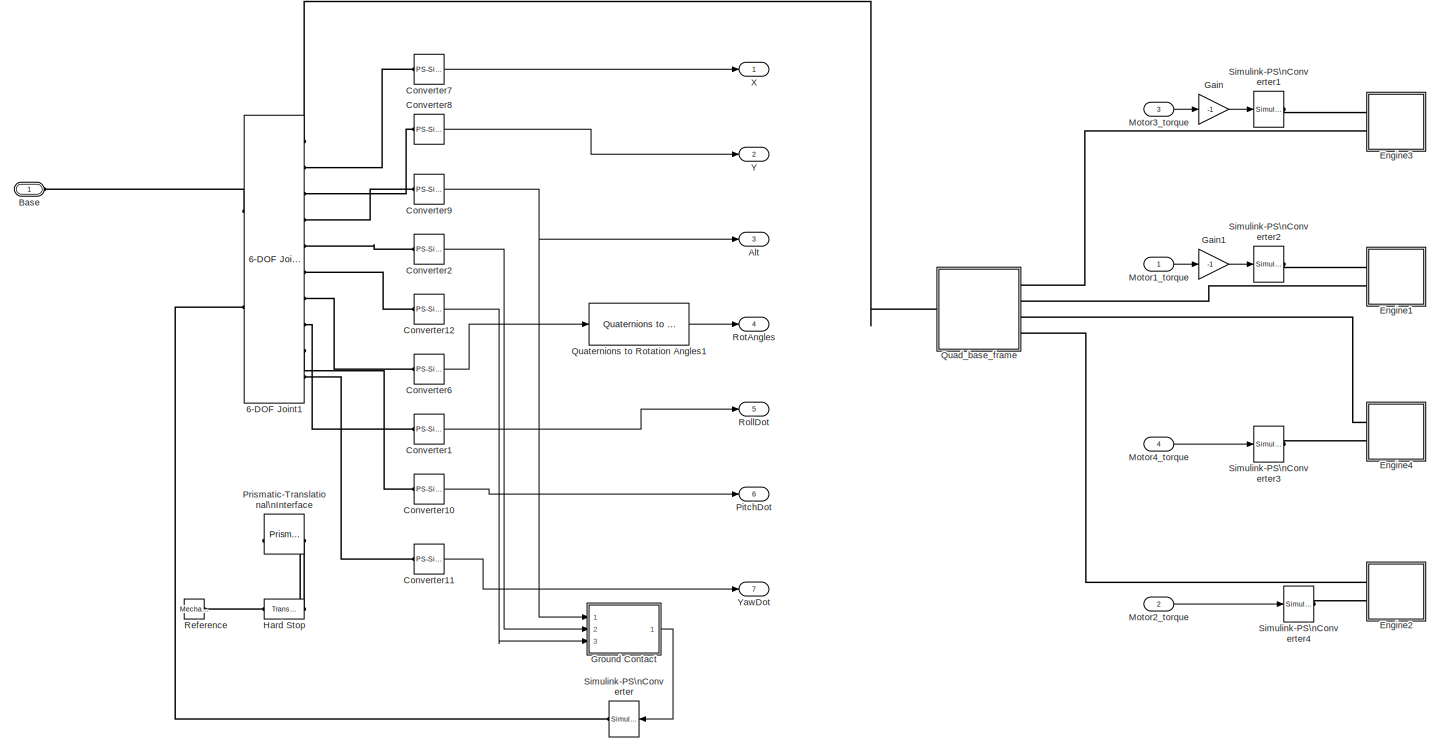
[diagram: Controlled Quadrotor2/Quad and sensors - part 1/1, most of the canvas]
BLOCK [SubSystem] Controlled Quadrotor2/Quad and sensors
  Ports = [4, 7, 0, 0, 0, 1]
  RequestExecContextInheritance = off
  SID = 546
BLOCK [Reference] Controlled Quadrotor2/Quad and sensors/6-DOF Joint1  REF=sm_lib/Joints/6-DOF Joint
  BlockFunction = simmechanics.library.joints.sixdof_joint
  ClassName = SixDofJoint
  CompositeWrenchDir = FollowerOnBase
  CompositeWrenchFrame = BaseFrame
  LogSimulationData = off
  Ports = [0, 0, 0, 0, 0, 2, 10]
  PxDampingCoefficient = 0
  PxDampingCoefficientUnits = N/(m/s)
  PxEquilibriumPosition = 0
  PxEquilibriumPositionUnits = m
  PxMotionActuationMode = ComputedMotion
  PxPositionTargetPriority = High
  PxPositionTargetSpecify = on
  PxPositionTargetValue = 1
  PxPositionTargetValueUnits = m
  PxSenseAcceleration = off
  PxSensePosition = on
  PxSenseTorqueForce = off
  PxSenseVelocity = off
  PxSpringStiffness = 0
  PxSpringStiffnessUnits = N/m
  PxTorqueActuationMode = NoTorque
  PxVelocityTargetPriority = High
  PxVelocityTargetSpecify = off
  PxVelocityTargetValue = 0
  PxVelocityTargetValueUnits = m/s
  PyDampingCoefficient = 0
  PyDampingCoefficientUnits = N/(m/s)
  PyEquilibriumPosition = 0
  PyEquilibriumPositionUnits = m
  PyMotionActuationMode = ComputedMotion
  PyPositionTargetPriority = High
  PyPositionTargetSpecify = off
  PyPositionTargetValue = 0
  PyPositionTargetValueUnits = m
  PySenseAcceleration = off
  PySensePosition = on
  PySenseTorqueForce = off
  PySenseVelocity = off
  PySpringStiffness = 0
  PySpringStiffnessUnits = N/m
  PyTorqueActuationMode = NoTorque
  PyVelocityTargetPriority = High
  PyVelocityTargetSpecify = off
  PyVelocityTargetValue = 0
  PyVelocityTargetValueUnits = m/s
  PzDampingCoefficient = 0
  PzDampingCoefficientUnits = N/(m/s)
  PzEquilibriumPosition = 0
  PzEquilibriumPositionUnits = m
  PzMotionActuationMode = ComputedMotion
  PzPositionTargetPriority = High
  PzPositionTargetSpecify = off
  PzPositionTargetValue = 2
  PzPositionTargetValueUnits = m
  PzSenseAcceleration = on
  PzSensePosition = on
  PzSenseTorqueForce = off
  PzSenseVelocity = on
  PzSpringStiffness = 0
  PzSpringStiffnessUnits = N/m
  PzTorqueActuationMode = InputTorque
  PzVelocityTargetPriority = High
  PzVelocityTargetSpecify = off
  PzVelocityTargetValue = 0
  PzVelocityTargetValueUnits = m/s
  SID = 551
  SenseConstraintForce = off
  SenseConstraintForceX = off
  SenseConstraintForceY = off
  SenseConstraintForceZ = off
  SenseConstraintTorque = off
  SenseConstraintTorqueX = off
  SenseConstraintTorqueY = off
  SenseConstraintTorqueZ = off
  SenseTotalForce = off
  SenseTotalForceX = off
  SenseTotalForceY = off
  SenseTotalForceZ = off
  SenseTotalTorque = off
  SenseTotalTorqueX = off
  SenseTotalTorqueY = off
  SenseTotalTorqueZ = off
  SourceBlock = sm_lib/Joints/6-DOF Joint
  SourceProductBaseCode = MS
  SourceProductName = Simscape Multibody
  SourceType = 6-DOF Joint
  SphActuateTorque = off
  SphActuateTorqueX = off
  SphActuateTorqueY = off
  SphActuateTorqueZ = off
  SphActuationFrame = BaseFrame
  SphDampingCoefficient = 0
  SphDampingCoefficientUnits = N*m/(deg/s)
  SphDefPosBaseAlignAxisA = +Y
  SphDefPosBaseAlignAxisB = +Z
  SphDefPosFollAlignAxisA = +X
  SphDefPosFollAlignAxisB = +Y
  SphDefPosRotationAngle = 0.0
  SphDefPosRotationAngleUnits = deg
  SphDefPosRotationArbitraryAxis = [0 0 1]
  SphDefPosRotationMatrix = [1 0 0; 0 1 0; 0 0 1]
  SphDefPosRotationMethod = None
  SphDefPosRotationStandardAxis = +Z
  SphEqPosBaseAlignAxisA = +Y
  SphEqPosBaseAlignAxisB = +Z
  SphEqPosFollAlignAxisA = +X
  SphEqPosFollAlignAxisB = +Y
  SphEqPosRotationAngle = 0.0
  SphEqPosRotationAngleUnits = deg
  SphEqPosRotationArbitraryAxis = [0 0 1]
  SphEqPosRotationMatrix = [1 0 0; 0 1 0; 0 0 1]
  SphEqPosRotationMethod = None
  SphEqPosRotationStandardAxis = +Z
  SphMotionActuationMode = ComputedMotion
  SphPositionTargetBaseAlignAxisA = +Y
  SphPositionTargetBaseAlignAxisB = +Z
  SphPositionTargetFollAlignAxisA = +X
  SphPositionTargetFollAlignAxisB = +Y
  SphPositionTargetPriority = High
  SphPositionTargetRotationAngle = 0.0
  SphPositionTargetRotationAngleUnits = deg
  SphPositionTargetRotationArbitraryAxis = [0 0 1]
  SphPositionTargetRotationMatrix = [1 0 0; 0 1 0; 0 0 1]
  SphPositionTargetRotationMethod = None
  SphPositionTargetRotationStandardAxis = +Z
  SphPositionTargetSpecify = off
  SphSenseAcceleration = off
  SphSenseAccelerationX = off
  SphSenseAccelerationY = off
  SphSenseAccelerationZ = off
  SphSensePosition = on
  SphSenseTorqueForce = off
  SphSenseTorqueX = off
  SphSenseTorqueY = off
  SphSenseTorqueZ = off
  SphSenseVelocity = off
  SphSenseVelocityX = on
  SphSenseVelocityY = on
  SphSenseVelocityZ = on
  SphSensingFrame = BaseFrame
  SphSpringStiffness = 0
  SphSpringStiffnessUnits = N*m/deg
  SphTorqueActuationMode = NoTorque
  SphVelocityTargetInFollowerFrame = on
  SphVelocityTargetPriority = High
  SphVelocityTargetSpecify = off
  SphVelocityTargetValue = [0 0 0]
  SphVelocityTargetValueUnits = deg/s
BLOCK [Outport] Controlled Quadrotor2/Quad and sensors/Alt
  IconDisplay = Port number
  Port = 3
  SID = 641
BLOCK [PMIOPort] Controlled Quadrotor2/Quad and sensors/Base
  SID = 638
  Side = Left
BLOCK [Reference] Controlled Quadrotor2/Quad and sensors/Converter1  REF=nesl_utility/PS-Simulink\nConverter
  AffineConversion = off
  Frequencies = []
  LeftPortType = input
  PhysicalDomain = network_engine_domain
  Ports = [0, 1, 0, 0, 0, 1]
  PseudoPeriodic = off
  RightPortType = output
  SID = 552
  SourceBlock = nesl_utility/PS-Simulink\nConverter
  SourceProductBaseCode = SS
  SourceProductName = Simscape
  SourceType = PS-Simulink\nConverter
  SubClassName = ps_output
  Unit = 1
BLOCK [Reference] Controlled Quadrotor2/Quad and sensors/Converter10  REF=nesl_utility/PS-Simulink\nConverter
  AffineConversion = off
  Frequencies = []
  LeftPortType = input
  PhysicalDomain = network_engine_domain
  Ports = [0, 1, 0, 0, 0, 1]
  PseudoPeriodic = off
  RightPortType = output
  SID = 553
  SourceBlock = nesl_utility/PS-Simulink\nConverter
  SourceProductBaseCode = SS
  SourceProductName = Simscape
  SourceType = PS-Simulink\nConverter
  SubClassName = ps_output
  Unit = 1
BLOCK [Reference] Controlled Quadrotor2/Quad and sensors/Converter11  REF=nesl_utility/PS-Simulink\nConverter
  AffineConversion = off
  Frequencies = []
  LeftPortType = input
  PhysicalDomain = network_engine_domain
  Ports = [0, 1, 0, 0, 0, 1]
  PseudoPeriodic = off
  RightPortType = output
  SID = 554
  SourceBlock = nesl_utility/PS-Simulink\nConverter
  SourceProductBaseCode = SS
  SourceProductName = Simscape
  SourceType = PS-Simulink\nConverter
  SubClassName = ps_output
  Unit = 1
BLOCK [Reference] Controlled Quadrotor2/Quad and sensors/Converter12  REF=nesl_utility/PS-Simulink\nConverter
  AffineConversion = off
  Frequencies = []
  LeftPortType = input
  PhysicalDomain = network_engine_domain
  Ports = [0, 1, 0, 0, 0, 1]
  PseudoPeriodic = off
  RightPortType = output
  SID = 555
  SourceBlock = nesl_utility/PS-Simulink\nConverter
  SourceProductBaseCode = SS
  SourceProductName = Simscape
  SourceType = PS-Simulink\nConverter
  SubClassName = ps_output
  Unit = 1
BLOCK [Reference] Controlled Quadrotor2/Quad and sensors/Converter2  REF=nesl_utility/PS-Simulink\nConverter
  AffineConversion = off
  Frequencies = []
  LeftPortType = input
  PhysicalDomain = network_engine_domain
  Ports = [0, 1, 0, 0, 0, 1]
  PseudoPeriodic = off
  RightPortType = output
  SID = 556
  SourceBlock = nesl_utility/PS-Simulink\nConverter
  SourceProductBaseCode = SS
  SourceProductName = Simscape
  SourceType = PS-Simulink\nConverter
  SubClassName = ps_output
  Unit = 1
BLOCK [Reference] Controlled Quadrotor2/Quad and sensors/Converter6  REF=nesl_utility/PS-Simulink\nConverter
  AffineConversion = off
  Frequencies = []
  LeftPortType = input
  PhysicalDomain = network_engine_domain
  Ports = [0, 1, 0, 0, 0, 1]
  PseudoPeriodic = off
  RightPortType = output
  SID = 557
  SourceBlock = nesl_utility/PS-Simulink\nConverter
  SourceProductBaseCode = SS
  SourceProductName = Simscape
  SourceType = PS-Simulink\nConverter
  SubClassName = ps_output
  Unit = 1
BLOCK [Reference] Controlled Quadrotor2/Quad and sensors/Converter7  REF=nesl_utility/PS-Simulink\nConverter
  AffineConversion = off
  Frequencies = []
  LeftPortType = input
  PhysicalDomain = network_engine_domain
  Ports = [0, 1, 0, 0, 0, 1]
  PseudoPeriodic = off
  RightPortType = output
  SID = 558
  SourceBlock = nesl_utility/PS-Simulink\nConverter
  SourceProductBaseCode = SS
  SourceProductName = Simscape
  SourceType = PS-Simulink\nConverter
  SubClassName = ps_output
  Unit = 1
BLOCK [Reference] Controlled Quadrotor2/Quad and sensors/Converter8  REF=nesl_utility/PS-Simulink\nConverter
  AffineConversion = off
  Frequencies = []
  LeftPortType = input
  PhysicalDomain = network_engine_domain
  Ports = [0, 1, 0, 0, 0, 1]
  PseudoPeriodic = off
  RightPortType = output
  SID = 559
  SourceBlock = nesl_utility/PS-Simulink\nConverter
  SourceProductBaseCode = SS
  SourceProductName = Simscape
  SourceType = PS-Simulink\nConverter
  SubClassName = ps_output
  Unit = 1
BLOCK [Reference] Controlled Quadrotor2/Quad and sensors/Converter9  REF=nesl_utility/PS-Simulink\nConverter
  AffineConversion = off
  Frequencies = []
  LeftPortType = input
  PhysicalDomain = network_engine_domain
  Ports = [0, 1, 0, 0, 0, 1]
  PseudoPeriodic = off
  RightPortType = output
  SID = 560
  SourceBlock = nesl_utility/PS-Simulink\nConverter
  SourceProductBaseCode = SS
  SourceProductName = Simscape
  SourceType = PS-Simulink\nConverter
  SubClassName = ps_output
  Unit = 1
BLOCK [SubSystem] Controlled Quadrotor2/Quad and sensors/Engine1
  Ports = [0, 0, 0, 0, 0, 2]
  RequestExecContextInheritance = off
  SID = 561
BLOCK [Reference] Controlled Quadrotor2/Quad and sensors/Engine1/External Force\nand Torque1  REF=sm_lib/Forces and\n Torques/External Force \nand Torque
  BlockFunction = simmechanics.library.forces_torques.external_force_torque
  ClassName = ExternalForceTorque
  EnableForce = off
  EnableForceX = off
  EnableForceY = off
  EnableForceZ = on
  EnableTorque = off
  EnableTorqueX = off
  EnableTorqueY = off
  EnableTorqueZ = off
  ForceResolutionFrame = AttachedFrame
  LogSimulationData = off
  Ports = [0, 0, 0, 0, 0, 1, 1]
  SID = 562
  SourceBlock = sm_lib/Forces and\n Torques/External Force \nand Torque
  SourceProductBaseCode = MS
  SourceProductName = Simscape Multibody
  SourceType = External Force\nand Torque
  TorqueResolutionFrame = AttachedFrame
BLOCK [Fcn] Controlled Quadrotor2/Quad and sensors/Engine1/Fcn1
  Expr = abs(0.0001*u(1))*-1
  SID = 563
BLOCK [Reference] Controlled Quadrotor2/Quad and sensors/Engine1/PS-Simulink\nConverter3  REF=nesl_utility/PS-Simulink\nConverter
  AffineConversion = off
  Frequencies = []
  LeftPortType = input
  PhysicalDomain = network_engine_domain
  Ports = [0, 1, 0, 0, 0, 1]
  PseudoPeriodic = off
  RightPortType = output
  SID = 564
  SourceBlock = nesl_utility/PS-Simulink\nConverter
  SourceProductBaseCode = SS
  SourceProductName = Simscape
  SourceType = PS-Simulink\nConverter
  SubClassName = ps_output
  Unit = 1
BLOCK [Reference] Controlled Quadrotor2/Quad and sensors/Engine1/Revolute2  REF=sm_lib/Joints/Revolute Joint
  BlockFunction = simmechanics.library.joints.revolute_joint
  ClassName = RevoluteJoint
  CompositeWrenchDir = FollowerOnBase
  CompositeWrenchFrame = BaseFrame
  DampingCoefficient = 0.001
  DampingCoefficientUnits = m*s*N/rad
  EquilibriumPosition = 0
  EquilibriumPositionUnits = rad
  LogSimulationData = off
  MotionActuationMode = ComputedMotion
  Ports = [0, 0, 0, 0, 0, 2, 2]
  PositionTargetPriority = Low
  PositionTargetSpecify = on
  PositionTargetValue = -96.910997584920693
  PositionTargetValueUnits = deg
  SID = 565
  SenseAcceleration = off
  SenseConstraintForce = off
  SenseConstraintForceX = off
  SenseConstraintForceY = off
  SenseConstraintForceZ = off
  SenseConstraintTorque = off
  SenseConstraintTorqueX = off
  SenseConstraintTorqueY = off
  SenseConstraintTorqueZ = off
  SensePosition = off
  SenseTorqueForce = off
  SenseTotalForce = off
  SenseTotalForceX = off
  SenseTotalForceY = off
  SenseTotalForceZ = off
  SenseTotalTorque = off
  SenseTotalTorqueX = off
  SenseTotalTorqueY = off
  SenseTotalTorqueZ = off
  SenseVelocity = on
  SourceBlock = sm_lib/Joints/Revolute Joint
  SourceProductBaseCode = MS
  SourceProductName = Simscape Multibody
  SourceType = Revolute Joint
  SpringStiffness = 0
  SpringStiffnessUnits = m*N/rad
  TorqueActuationMode = InputTorque
  VelocityTargetPriority = High
  VelocityTargetSpecify = off
  VelocityTargetValue = 0
  VelocityTargetValueUnits = deg/s
BLOCK [Reference] Controlled Quadrotor2/Quad and sensors/Engine1/Simulink-PS\nConverter3  REF=nesl_utility/Simulink-PS\nConverter
  AffineConversion = off
  Frequencies = []
  InputFilterTimeConstant = 0.001
  InputFiltering = off
  LeftPortType = input
  NoiseDistribution = none
  NoiseParameters = []
  PhysicalDomain = network_engine_domain
  Ports = [1, 0, 0, 0, 0, 0, 1]
  PseudoPeriodic = off
  RightPortType = output
  SID = 566
  SimscapeFilterOrder = 1
  SourceBlock = nesl_utility/Simulink-PS\nConverter
  SourceProductBaseCode = SS
  SourceProductName = Simscape
  SourceType = Simulink-PS\nConverter
  SubClassName = ps_input
  UdotUserProvided = 1
  Unit = 1
BLOCK [PMIOPort] Controlled Quadrotor2/Quad and sensors/Engine1/base_M1
  Port = 2
  SID = 573
  Side = Left
BLOCK [PMIOPort] Controlled Quadrotor2/Quad and sensors/Engine1/torque
  SID = 572
  Side = Left
BLOCK [SubSystem] Controlled Quadrotor2/Quad and sensors/Engine1/x5x3R_Propeller_1_RIGID
  Ports = [0, 0, 0, 0, 0, 1]
  RequestExecContextInheritance = off
  SID = 567
BLOCK [PMIOPort] Controlled Quadrotor2/Quad and sensors/Engine1/x5x3R_Propeller_1_RIGID/F
  SID = 571
  Side = Left
BLOCK [Reference] Controlled Quadrotor2/Quad and sensors/Engine1/x5x3R_Propeller_1_RIGID/ReferenceFrame  REF=sm_lib/Frames and\n Transforms/Reference \nFrame
  BlockFunction = simmechanics.library.frames_transforms.reference_frame
  ClassName = ReferenceFrame
  LogSimulationData = off
  Ports = [0, 0, 0, 0, 0, 0, 1]
  SID = 568
  SourceBlock = sm_lib/Frames and\n Transforms/Reference \nFrame
  SourceProductBaseCode = MS
  SourceProductName = Simscape Multibody
  SourceType = Reference\nFrame
BLOCK [Reference] Controlled Quadrotor2/Quad and sensors/Engine1/x5x3R_Propeller_1_RIGID/Solid  REF=sm_lib/Body Elements/Solid
  BlockFunction = simmechanics.library.body_elements.solid
  BrickDimensionUnits = m
  BrickDimensions = [1 1 1]
  CenterOfMass = [-9.4091969973109005e-06 1.1743794416735667 -1.1742585501049463]
  CenterOfMassUnits = mm
  ClassName = Solid
  CylinderLength = 1
  CylinderLengthUnits = m
  CylinderRadius = 1
  CylinderRadiusUnits = m
  Density = 1000
  DensityBased = on
  DensityUnits = kg/(m^3)
  EllipsoidRadii = [1 1 1]
  EllipsoidRadiiUnits = m
  ExtGeomFileName = 5x3R Propeller_Default_sldprt.STL
  ExtGeomFileType = STL
  ExtGeomFileUnits = mm
  ExtrusionCrossSection = [1 1; -1 1; -1 -1; 1 -1]
  ExtrusionCrossSectionUnits = m
  ExtrusionLength = 1
  ExtrusionLengthUnits = m
  GeometryShape = FromFile
  GraphicAmbientColor = [0.15 0.15 0.15 1.0]
  GraphicDiffuseColor = [1.0 0.2 0.0]
  GraphicEmissiveColor = [0.0 0.0 0.0 1.0]
  GraphicOpacity = 1
  GraphicShininess = 75
  GraphicSpecularColor = [0.5 0.5 0.5 1.0]
  GraphicType = FromGeometry
  GraphicVisPropType = SimpleVisualProperties
  InertiaType = Custom
  LogSimulationData = off
  MarkerShape = Sphere
  MarkerSize = 10
  MarkerSizeUnits = m
  Mass = 0.0016554437499046806
  MassUnits = kg
  MomentsOfInertia = [1.470390252449407 0.013647828129438603 1.4797649971234468]
  MomentsOfInertiaUnits = kg*mm^2
  PolygonNumSides = 3
  PolygonOuterRadius = 1
  PolygonOuterRadiusUnits = m
  Ports = [0, 0, 0, 0, 0, 0, 1]
  ProductsOfInertia = [7.6225900321173699e-07 3.0379766986994385e-08 -0.023426386413677357]
  ProductsOfInertiaUnits = kg*mm^2
  RectangleSize = [1 1]
  RectangleSizeUnits = m
  RevolutionAngle = 180
  RevolutionAngleUnits = deg
  RevolutionCrossSection = [1 1; 1 -1; 2 -1; 2 1]
  RevolutionCrossSectionUnits = m
  RevolutionExtent = Full
  SID = 569
  SourceBlock = sm_lib/Body Elements/Solid
  SourceProductBaseCode = MS
  SourceProductName = Simscape Multibody
  SourceType = Solid
  SphereRadius = 1
  SphereRadiusUnits = m
BLOCK [Reference] Controlled Quadrotor2/Quad and sensors/Engine1/x5x3R_Propeller_1_RIGID/Transform  REF=sm_lib/Frames and\n Transforms/Rigid \nTransform
  BaseAlignAxisA = +Y
  BaseAlignAxisB = +Z
  BlockFunction = simmechanics.library.frames_transforms.rigid_transform
  ClassName = RigidTransform
  FollAlignAxisA = +X
  FollAlignAxisB = +Y
  LogSimulationData = off
  Ports = [0, 0, 0, 0, 0, 1, 1]
  RotationAngle = 3.14159265358979
  RotationAngleUnits = rad
  RotationArbitraryAxis = [-1 -2.9659662640582496e-31 1.7826123921481009e-16]
  RotationMatrix = [1 0 0; 0 1 0; 0 0 1]
  RotationMethod = ArbitraryAxis
  RotationStandardAxis = +Z
  SID = 570
  SourceBlock = sm_lib/Frames and\n Transforms/Rigid \nTransform
  SourceProductBaseCode = MS
  SourceProductName = Simscape Multibody
  SourceType = Rigid\nTransform
  TranslationCartesianOffset = [2.2204460492503131e-16 0.117384178389595 0.70211061015740817]
  TranslationLengthUnit = cm
  TranslationMethod = Cartesian
  TranslationROffset = 0
  TranslationROffsetUnits = m
  TranslationStandardAxis = +Z
  TranslationStandardOffset = 0
  TranslationThetaOffset = 0
  TranslationThetaOffsetUnits = deg
  TranslationZOffset = 0
  TranslationZOffsetUnits = m
BLOCK [SubSystem] Controlled Quadrotor2/Quad and sensors/Engine2
  Ports = [0, 0, 0, 0, 0, 2]
  RequestExecContextInheritance = off
  SID = 574
BLOCK [Reference] Controlled Quadrotor2/Quad and sensors/Engine2/External Force\nand Torque3  REF=sm_lib/Forces and\n Torques/External Force \nand Torque
  BlockFunction = simmechanics.library.forces_torques.external_force_torque
  ClassName = ExternalForceTorque
  EnableForce = off
  EnableForceX = off
  EnableForceY = off
  EnableForceZ = on
  EnableTorque = off
  EnableTorqueX = off
  EnableTorqueY = off
  EnableTorqueZ = off
  ForceResolutionFrame = AttachedFrame
  LogSimulationData = off
  Ports = [0, 0, 0, 0, 0, 1, 1]
  SID = 575
  SourceBlock = sm_lib/Forces and\n Torques/External Force \nand Torque
  SourceProductBaseCode = MS
  SourceProductName = Simscape Multibody
  SourceType = External Force\nand Torque
  TorqueResolutionFrame = AttachedFrame
BLOCK [Fcn] Controlled Quadrotor2/Quad and sensors/Engine2/Fcn3
  Expr = abs(0.0001*u(1))*-1
  SID = 576
BLOCK [Reference] Controlled Quadrotor2/Quad and sensors/Engine2/PS-Simulink\nConverter5  REF=nesl_utility/PS-Simulink\nConverter
  AffineConversion = off
  Frequencies = []
  LeftPortType = input
  PhysicalDomain = network_engine_domain
  Ports = [0, 1, 0, 0, 0, 1]
  PseudoPeriodic = off
  RightPortType = output
  SID = 577
  SourceBlock = nesl_utility/PS-Simulink\nConverter
  SourceProductBaseCode = SS
  SourceProductName = Simscape
  SourceType = PS-Simulink\nConverter
  SubClassName = ps_output
  Unit = 1
BLOCK [Reference] Controlled Quadrotor2/Quad and sensors/Engine2/Revolute  REF=sm_lib/Joints/Revolute Joint
  BlockFunction = simmechanics.library.joints.revolute_joint
  ClassName = RevoluteJoint
  CompositeWrenchDir = FollowerOnBase
  CompositeWrenchFrame = BaseFrame
  DampingCoefficient = 0.001
  DampingCoefficientUnits = m*s*N/rad
  EquilibriumPosition = 0
  EquilibriumPositionUnits = rad
  LogSimulationData = off
  MotionActuationMode = ComputedMotion
  Ports = [0, 0, 0, 0, 0, 2, 2]
  PositionTargetPriority = Low
  PositionTargetSpecify = on
  PositionTargetValue = -7.1711626247469011
  PositionTargetValueUnits = deg
  SID = 578
  SenseAcceleration = off
  SenseConstraintForce = off
  SenseConstraintForceX = off
  SenseConstraintForceY = off
  SenseConstraintForceZ = off
  SenseConstraintTorque = off
  SenseConstraintTorqueX = off
  SenseConstraintTorqueY = off
  SenseConstraintTorqueZ = off
  SensePosition = off
  SenseTorqueForce = off
  SenseTotalForce = off
  SenseTotalForceX = off
  SenseTotalForceY = off
  SenseTotalForceZ = off
  SenseTotalTorque = off
  SenseTotalTorqueX = off
  SenseTotalTorqueY = off
  SenseTotalTorqueZ = off
  SenseVelocity = on
  SourceBlock = sm_lib/Joints/Revolute Joint
  SourceProductBaseCode = MS
  SourceProductName = Simscape Multibody
  SourceType = Revolute Joint
  SpringStiffness = 0
  SpringStiffnessUnits = m*N/rad
  TorqueActuationMode = InputTorque
  VelocityTargetPriority = High
  VelocityTargetSpecify = off
  VelocityTargetValue = 0
  VelocityTargetValueUnits = deg/s
BLOCK [Reference] Controlled Quadrotor2/Quad and sensors/Engine2/Simulink-PS\nConverter5  REF=nesl_utility/Simulink-PS\nConverter
  AffineConversion = off
  Frequencies = []
  InputFilterTimeConstant = 0.001
  InputFiltering = off
  LeftPortType = input
  NoiseDistribution = none
  NoiseParameters = []
  PhysicalDomain = network_engine_domain
  Ports = [1, 0, 0, 0, 0, 0, 1]
  PseudoPeriodic = off
  RightPortType = output
  SID = 579
  SimscapeFilterOrder = 1
  SourceBlock = nesl_utility/Simulink-PS\nConverter
  SourceProductBaseCode = SS
  SourceProductName = Simscape
  SourceType = Simulink-PS\nConverter
  SubClassName = ps_input
  UdotUserProvided = 1
  Unit = 1
BLOCK [PMIOPort] Controlled Quadrotor2/Quad and sensors/Engine2/base_M2
  Port = 2
  SID = 586
  Side = Left
BLOCK [PMIOPort] Controlled Quadrotor2/Quad and sensors/Engine2/torque
  SID = 585
  Side = Left
BLOCK [SubSystem] Controlled Quadrotor2/Quad and sensors/Engine2/x5x3L_Propeller_1_RIGID
  Ports = [0, 0, 0, 0, 0, 1]
  RequestExecContextInheritance = off
  SID = 580
BLOCK [PMIOPort] Controlled Quadrotor2/Quad and sensors/Engine2/x5x3L_Propeller_1_RIGID/F
  SID = 584
  Side = Left
BLOCK [Reference] Controlled Quadrotor2/Quad and sensors/Engine2/x5x3L_Propeller_1_RIGID/ReferenceFrame  REF=sm_lib/Frames and\n Transforms/Reference \nFrame
  BlockFunction = simmechanics.library.frames_transforms.reference_frame
  ClassName = ReferenceFrame
  LogSimulationData = off
  Ports = [0, 0, 0, 0, 0, 0, 1]
  SID = 581
  SourceBlock = sm_lib/Frames and\n Transforms/Reference \nFrame
  SourceProductBaseCode = MS
  SourceProductName = Simscape Multibody
  SourceType = Reference\nFrame
BLOCK [Reference] Controlled Quadrotor2/Quad and sensors/Engine2/x5x3L_Propeller_1_RIGID/Solid  REF=sm_lib/Body Elements/Solid
  BlockFunction = simmechanics.library.body_elements.solid
  BrickDimensionUnits = m
  BrickDimensions = [1 1 1]
  CenterOfMass = [-1.7940684369643517e-05 0.00054453975800766252 -0.0036928877456850299]
  CenterOfMassUnits = mm
  ClassName = Solid
  CylinderLength = 1
  CylinderLengthUnits = m
  CylinderRadius = 1
  CylinderRadiusUnits = m
  Density = 1000
  DensityBased = on
  DensityUnits = kg/(m^3)
  EllipsoidRadii = [1 1 1]
  EllipsoidRadiiUnits = m
  ExtGeomFileName = 5x3L Propeller_Default_sldprt.STL
  ExtGeomFileType = STL
  ExtGeomFileUnits = mm
  ExtrusionCrossSection = [1 1; -1 1; -1 -1; 1 -1]
  ExtrusionCrossSectionUnits = m
  ExtrusionLength = 1
  ExtrusionLengthUnits = m
  GeometryShape = FromFile
  GraphicAmbientColor = [0.15 0.15 0.15 1.0]
  GraphicDiffuseColor = [0.0 0.0 0.0]
  GraphicEmissiveColor = [0.0 0.0 0.0 1.0]
  GraphicOpacity = 1
  GraphicShininess = 75
  GraphicSpecularColor = [0.5 0.5 0.5 1.0]
  GraphicType = FromGeometry
  GraphicVisPropType = SimpleVisualProperties
  InertiaType = Custom
  LogSimulationData = off
  MarkerShape = Sphere
  MarkerSize = 10
  MarkerSizeUnits = m
  Mass = 0.0016554447827057072
  MassUnits = kg
  MomentsOfInertia = [1.4703904309245746 0.013647735813102926 1.4797650826066844]
  MomentsOfInertiaUnits = kg*mm^2
  PolygonNumSides = 3
  PolygonOuterRadius = 1
  PolygonOuterRadiusUnits = m
  Ports = [0, 0, 0, 0, 0, 0, 1]
  ProductsOfInertia = [7.6907097391567737e-07 1.5969591997949786e-08 -0.023426501249338923]
  ProductsOfInertiaUnits = kg*mm^2
  RectangleSize = [1 1]
  RectangleSizeUnits = m
  RevolutionAngle = 180
  RevolutionAngleUnits = deg
  RevolutionCrossSection = [1 1; 1 -1; 2 -1; 2 1]
  RevolutionCrossSectionUnits = m
  RevolutionExtent = Full
  SID = 582
  SourceBlock = sm_lib/Body Elements/Solid
  SourceProductBaseCode = MS
  SourceProductName = Simscape Multibody
  SourceType = Solid
  SphereRadius = 1
  SphereRadiusUnits = m
BLOCK [Reference] Controlled Quadrotor2/Quad and sensors/Engine2/x5x3L_Propeller_1_RIGID/Transform  REF=sm_lib/Frames and\n Transforms/Rigid \nTransform
  BaseAlignAxisA = +Y
  BaseAlignAxisB = +Z
  BlockFunction = simmechanics.library.frames_transforms.rigid_transform
  ClassName = RigidTransform
  FollAlignAxisA = +X
  FollAlignAxisB = +Y
  LogSimulationData = off
  Ports = [0, 0, 0, 0, 0, 1, 1]
  RotationAngle = 3.1415926535897896
  RotationAngleUnits = rad
  RotationArbitraryAxis = [-1 3.3672490814660118e-32 -1.9301742002667719e-17]
  RotationMatrix = [1 0 0; 0 1 0; 0 0 1]
  RotationMethod = ArbitraryAxis
  RotationStandardAxis = +Z
  SID = 583
  SourceBlock = sm_lib/Frames and\n Transforms/Rigid \nTransform
  SourceProductBaseCode = MS
  SourceProductName = Simscape Multibody
  SourceType = Rigid\nTransform
  TranslationCartesianOffset = [-8.1659826880039994e-17 -5.3402587403471918e-15 0.81916743857986374]
  TranslationLengthUnit = cm
  TranslationMethod = Cartesian
  TranslationROffset = 0
  TranslationROffsetUnits = m
  TranslationStandardAxis = +Z
  TranslationStandardOffset = 0
  TranslationThetaOffset = 0
  TranslationThetaOffsetUnits = deg
  TranslationZOffset = 0
  TranslationZOffsetUnits = m
BLOCK [SubSystem] Controlled Quadrotor2/Quad and sensors/Engine3
  Ports = [0, 0, 0, 0, 0, 2]
  RequestExecContextInheritance = off
  SID = 587
BLOCK [Reference] Controlled Quadrotor2/Quad and sensors/Engine3/External Force\nand Torque  REF=sm_lib/Forces and\n Torques/External Force \nand Torque
  BlockFunction = simmechanics.library.forces_torques.external_force_torque
  ClassName = ExternalForceTorque
  EnableForce = off
  EnableForceX = off
  EnableForceY = off
  EnableForceZ = on
  EnableTorque = off
  EnableTorqueX = off
  EnableTorqueY = off
  EnableTorqueZ = off
  ForceResolutionFrame = AttachedFrame
  LogSimulationData = off
  Ports = [0, 0, 0, 0, 0, 1, 1]
  SID = 588
  SourceBlock = sm_lib/Forces and\n Torques/External Force \nand Torque
  SourceProductBaseCode = MS
  SourceProductName = Simscape Multibody
  SourceType = External Force\nand Torque
  TorqueResolutionFrame = AttachedFrame
BLOCK [Fcn] Controlled Quadrotor2/Quad and sensors/Engine3/Fcn
  Expr = abs(0.0001*u(1))*-1
  SID = 589
BLOCK [Reference] Controlled Quadrotor2/Quad and sensors/Engine3/Revolute3  REF=sm_lib/Joints/Revolute Joint
  BlockFunction = simmechanics.library.joints.revolute_joint
  ClassName = RevoluteJoint
  CompositeWrenchDir = FollowerOnBase
  CompositeWrenchFrame = BaseFrame
  DampingCoefficient = 0.001
  DampingCoefficientUnits = m*s*N/rad
  EquilibriumPosition = 0
  EquilibriumPositionUnits = rad
  LogSimulationData = off
  MotionActuationMode = ComputedMotion
  Ports = [0, 0, 0, 0, 0, 2, 2]
  PositionTargetPriority = Low
  PositionTargetSpecify = on
  PositionTargetValue = -172.72463153088296
  PositionTargetValueUnits = deg
  SID = 590
  SenseAcceleration = off
  SenseConstraintForce = off
  SenseConstraintForceX = off
  SenseConstraintForceY = off
  SenseConstraintForceZ = off
  SenseConstraintTorque = off
  SenseConstraintTorqueX = off
  SenseConstraintTorqueY = off
  SenseConstraintTorqueZ = off
  SensePosition = off
  SenseTorqueForce = off
  SenseTotalForce = off
  SenseTotalForceX = off
  SenseTotalForceY = off
  SenseTotalForceZ = off
  SenseTotalTorque = off
  SenseTotalTorqueX = off
  SenseTotalTorqueY = off
  SenseTotalTorqueZ = off
  SenseVelocity = on
  SourceBlock = sm_lib/Joints/Revolute Joint
  SourceProductBaseCode = MS
  SourceProductName = Simscape Multibody
  SourceType = Revolute Joint
  SpringStiffness = 0
  SpringStiffnessUnits = m*N/rad
  TorqueActuationMode = InputTorque
  VelocityTargetPriority = High
  VelocityTargetSpecify = off
  VelocityTargetValue = 0
  VelocityTargetValueUnits = deg/s
BLOCK [Reference] Controlled Quadrotor2/Quad and sensors/Engine3/Simulink-PS\nConverter2  REF=nesl_utility/Simulink-PS\nConverter
  AffineConversion = off
  Frequencies = []
  InputFilterTimeConstant = 0.001
  InputFiltering = off
  LeftPortType = input
  NoiseDistribution = none
  NoiseParameters = []
  PhysicalDomain = network_engine_domain
  Ports = [1, 0, 0, 0, 0, 0, 1]
  PseudoPeriodic = off
  RightPortType = output
  SID = 591
  SimscapeFilterOrder = 1
  SourceBlock = nesl_utility/Simulink-PS\nConverter
  SourceProductBaseCode = SS
  SourceProductName = Simscape
  SourceType = Simulink-PS\nConverter
  SubClassName = ps_input
  UdotUserProvided = 1
  Unit = 1
BLOCK [PMIOPort] Controlled Quadrotor2/Quad and sensors/Engine3/base_M3
  Port = 2
  SID = 599
  Side = Left
BLOCK [PMIOPort] Controlled Quadrotor2/Quad and sensors/Engine3/torque
  SID = 598
  Side = Left
BLOCK [Reference] Controlled Quadrotor2/Quad and sensors/Engine3/wz  REF=nesl_utility/PS-Simulink\nConverter
  AffineConversion = off
  Frequencies = []
  LeftPortType = input
  PhysicalDomain = network_engine_domain
  Ports = [0, 1, 0, 0, 0, 1]
  PseudoPeriodic = off
  RightPortType = output
  SID = 592
  SourceBlock = nesl_utility/PS-Simulink\nConverter
  SourceProductBaseCode = SS
  SourceProductName = Simscape
  SourceType = PS-Simulink\nConverter
  SubClassName = ps_output
  Unit = 1
BLOCK [SubSystem] Controlled Quadrotor2/Quad and sensors/Engine3/x5x3R_Propeller_2_RIGID
  Ports = [0, 0, 0, 0, 0, 1]
  RequestExecContextInheritance = off
  SID = 593
BLOCK [PMIOPort] Controlled Quadrotor2/Quad and sensors/Engine3/x5x3R_Propeller_2_RIGID/F
  SID = 597
  Side = Left
BLOCK [Reference] Controlled Quadrotor2/Quad and sensors/Engine3/x5x3R_Propeller_2_RIGID/ReferenceFrame  REF=sm_lib/Frames and\n Transforms/Reference \nFrame
  BlockFunction = simmechanics.library.frames_transforms.reference_frame
  ClassName = ReferenceFrame
  LogSimulationData = off
  Ports = [0, 0, 0, 0, 0, 0, 1]
  SID = 594
  SourceBlock = sm_lib/Frames and\n Transforms/Reference \nFrame
  SourceProductBaseCode = MS
  SourceProductName = Simscape Multibody
  SourceType = Reference\nFrame
BLOCK [Reference] Controlled Quadrotor2/Quad and sensors/Engine3/x5x3R_Propeller_2_RIGID/Solid  REF=sm_lib/Body Elements/Solid
  BlockFunction = simmechanics.library.body_elements.solid
  BrickDimensionUnits = m
  BrickDimensions = [1 1 1]
  CenterOfMass = [-9.4091969973109005e-06 1.1743794416735667 -1.1742585501049463]
  CenterOfMassUnits = mm
  ClassName = Solid
  CylinderLength = 1
  CylinderLengthUnits = m
  CylinderRadius = 1
  CylinderRadiusUnits = m
  Density = 1000
  DensityBased = on
  DensityUnits = kg/(m^3)
  EllipsoidRadii = [1 1 1]
  EllipsoidRadiiUnits = m
  ExtGeomFileName = 5x3R Propeller_Default_sldprt.STL
  ExtGeomFileType = STL
  ExtGeomFileUnits = mm
  ExtrusionCrossSection = [1 1; -1 1; -1 -1; 1 -1]
  ExtrusionCrossSectionUnits = m
  ExtrusionLength = 1
  ExtrusionLengthUnits = m
  GeometryShape = FromFile
  GraphicAmbientColor = [0.15 0.15 0.15 1.0]
  GraphicDiffuseColor = [0.0 0.0 0.0]
  GraphicEmissiveColor = [0.0 0.0 0.0 1.0]
  GraphicOpacity = 1
  GraphicShininess = 75
  GraphicSpecularColor = [0.5 0.5 0.5 1.0]
  GraphicType = FromGeometry
  GraphicVisPropType = SimpleVisualProperties
  InertiaType = Custom
  LogSimulationData = off
  MarkerShape = Sphere
  MarkerSize = 10
  MarkerSizeUnits = m
  Mass = 0.0016554437499046806
  MassUnits = kg
  MomentsOfInertia = [1.470390252449407 0.013647828129438603 1.4797649971234468]
  MomentsOfInertiaUnits = kg*mm^2
  PolygonNumSides = 3
  PolygonOuterRadius = 1
  PolygonOuterRadiusUnits = m
  Ports = [0, 0, 0, 0, 0, 0, 1]
  ProductsOfInertia = [7.6225900321173699e-07 3.0379766986994385e-08 -0.023426386413677357]
  ProductsOfInertiaUnits = kg*mm^2
  RectangleSize = [1 1]
  RectangleSizeUnits = m
  RevolutionAngle = 180
  RevolutionAngleUnits = deg
  RevolutionCrossSection = [1 1; 1 -1; 2 -1; 2 1]
  RevolutionCrossSectionUnits = m
  RevolutionExtent = Full
  SID = 595
  SourceBlock = sm_lib/Body Elements/Solid
  SourceProductBaseCode = MS
  SourceProductName = Simscape Multibody
  SourceType = Solid
  SphereRadius = 1
  SphereRadiusUnits = m
BLOCK [Reference] Controlled Quadrotor2/Quad and sensors/Engine3/x5x3R_Propeller_2_RIGID/Transform  REF=sm_lib/Frames and\n Transforms/Rigid \nTransform
  BaseAlignAxisA = +Y
  BaseAlignAxisB = +Z
  BlockFunction = simmechanics.library.frames_transforms.rigid_transform
  ClassName = RigidTransform
  FollAlignAxisA = +X
  FollAlignAxisB = +Y
  LogSimulationData = off
  Ports = [0, 0, 0, 0, 0, 1, 1]
  RotationAngle = 3.14159265358979
  RotationAngleUnits = rad
  RotationArbitraryAxis = [-1 -6.9195844784490633e-32 4.2800760370596708e-17]
  RotationMatrix = [1 0 0; 0 1 0; 0 0 1]
  RotationMethod = ArbitraryAxis
  RotationStandardAxis = +Z
  SID = 596
  SourceBlock = sm_lib/Frames and\n Transforms/Rigid \nTransform
  SourceProductBaseCode = MS
  SourceProductName = Simscape Multibody
  SourceType = Rigid\nTransform
  TranslationCartesianOffset = [-9.721390359374027e-15 0.11738417838958951 0.70211061015740495]
  TranslationLengthUnit = cm
  TranslationMethod = Cartesian
  TranslationROffset = 0
  TranslationROffsetUnits = m
  TranslationStandardAxis = +Z
  TranslationStandardOffset = 0
  TranslationThetaOffset = 0
  TranslationThetaOffsetUnits = deg
  TranslationZOffset = 0
  TranslationZOffsetUnits = m
BLOCK [SubSystem] Controlled Quadrotor2/Quad and sensors/Engine4
  Ports = [0, 0, 0, 0, 0, 2]
  RequestExecContextInheritance = off
  SID = 601
BLOCK [Reference] Controlled Quadrotor2/Quad and sensors/Engine4/External Force\nand Torque2  REF=sm_lib/Forces and\n Torques/External Force \nand Torque
  BlockFunction = simmechanics.library.forces_torques.external_force_torque
  ClassName = ExternalForceTorque
  EnableForce = off
  EnableForceX = off
  EnableForceY = off
  EnableForceZ = on
  EnableTorque = off
  EnableTorqueX = off
  EnableTorqueY = off
  EnableTorqueZ = off
  ForceResolutionFrame = AttachedFrame
  LogSimulationData = off
  Ports = [0, 0, 0, 0, 0, 1, 1]
  SID = 602
  SourceBlock = sm_lib/Forces and\n Torques/External Force \nand Torque
  SourceProductBaseCode = MS
  SourceProductName = Simscape Multibody
  SourceType = External Force\nand Torque
  TorqueResolutionFrame = AttachedFrame
BLOCK [Fcn] Controlled Quadrotor2/Quad and sensors/Engine4/Fcn2
  Expr = abs(0.0001*u(1))*-1
  SID = 603
BLOCK [Reference] Controlled Quadrotor2/Quad and sensors/Engine4/PS-Simulink\nConverter4  REF=nesl_utility/PS-Simulink\nConverter
  AffineConversion = off
  Frequencies = []
  LeftPortType = input
  PhysicalDomain = network_engine_domain
  Ports = [0, 1, 0, 0, 0, 1]
  PseudoPeriodic = off
  RightPortType = output
  SID = 604
  SourceBlock = nesl_utility/PS-Simulink\nConverter
  SourceProductBaseCode = SS
  SourceProductName = Simscape
  SourceType = PS-Simulink\nConverter
  SubClassName = ps_output
  Unit = 1
BLOCK [Reference] Controlled Quadrotor2/Quad and sensors/Engine4/Revolute1  REF=sm_lib/Joints/Revolute Joint
  BlockFunction = simmechanics.library.joints.revolute_joint
  ClassName = RevoluteJoint
  CompositeWrenchDir = FollowerOnBase
  CompositeWrenchFrame = BaseFrame
  DampingCoefficient = 0.001
  DampingCoefficientUnits = m*s*N/rad
  EquilibriumPosition = 0
  EquilibriumPositionUnits = rad
  LogSimulationData = off
  MotionActuationMode = ComputedMotion
  Ports = [0, 0, 0, 0, 0, 2, 2]
  PositionTargetPriority = Low
  PositionTargetSpecify = on
  PositionTargetValue = 2.1242270764515996
  PositionTargetValueUnits = deg
  SID = 605
  SenseAcceleration = off
  SenseConstraintForce = off
  SenseConstraintForceX = off
  SenseConstraintForceY = off
  SenseConstraintForceZ = off
  SenseConstraintTorque = off
  SenseConstraintTorqueX = off
  SenseConstraintTorqueY = off
  SenseConstraintTorqueZ = off
  SensePosition = off
  SenseTorqueForce = off
  SenseTotalForce = off
  SenseTotalForceX = off
  SenseTotalForceY = off
  SenseTotalForceZ = off
  SenseTotalTorque = off
  SenseTotalTorqueX = off
  SenseTotalTorqueY = off
  SenseTotalTorqueZ = off
  SenseVelocity = on
  SourceBlock = sm_lib/Joints/Revolute Joint
  SourceProductBaseCode = MS
  SourceProductName = Simscape Multibody
  SourceType = Revolute Joint
  SpringStiffness = 0
  SpringStiffnessUnits = m*N/rad
  TorqueActuationMode = InputTorque
  VelocityTargetPriority = High
  VelocityTargetSpecify = off
  VelocityTargetValue = 0
  VelocityTargetValueUnits = deg/s
BLOCK [Reference] Controlled Quadrotor2/Quad and sensors/Engine4/Simulink-PS\nConverter4  REF=nesl_utility/Simulink-PS\nConverter
  AffineConversion = off
  Frequencies = []
  InputFilterTimeConstant = 0.001
  InputFiltering = off
  LeftPortType = input
  NoiseDistribution = none
  NoiseParameters = []
  PhysicalDomain = network_engine_domain
  Ports = [1, 0, 0, 0, 0, 0, 1]
  PseudoPeriodic = off
  RightPortType = output
  SID = 606
  SimscapeFilterOrder = 1
  SourceBlock = nesl_utility/Simulink-PS\nConverter
  SourceProductBaseCode = SS
  SourceProductName = Simscape
  SourceType = Simulink-PS\nConverter
  SubClassName = ps_input
  UdotUserProvided = 1
  Unit = 1
BLOCK [PMIOPort] Controlled Quadrotor2/Quad and sensors/Engine4/base_M4
  Port = 2
  SID = 613
  Side = Left
BLOCK [PMIOPort] Controlled Quadrotor2/Quad and sensors/Engine4/torque
  SID = 612
  Side = Left
BLOCK [SubSystem] Controlled Quadrotor2/Quad and sensors/Engine4/x5x3L_Propeller_2_RIGID
  Ports = [0, 0, 0, 0, 0, 1]
  RequestExecContextInheritance = off
  SID = 607
BLOCK [PMIOPort] Controlled Quadrotor2/Quad and sensors/Engine4/x5x3L_Propeller_2_RIGID/F
  SID = 611
  Side = Left
BLOCK [Reference] Controlled Quadrotor2/Quad and sensors/Engine4/x5x3L_Propeller_2_RIGID/ReferenceFrame  REF=sm_lib/Frames and\n Transforms/Reference \nFrame
  BlockFunction = simmechanics.library.frames_transforms.reference_frame
  ClassName = ReferenceFrame
  LogSimulationData = off
  Ports = [0, 0, 0, 0, 0, 0, 1]
  SID = 608
  SourceBlock = sm_lib/Frames and\n Transforms/Reference \nFrame
  SourceProductBaseCode = MS
  SourceProductName = Simscape Multibody
  SourceType = Reference\nFrame
BLOCK [Reference] Controlled Quadrotor2/Quad and sensors/Engine4/x5x3L_Propeller_2_RIGID/Solid  REF=sm_lib/Body Elements/Solid
  BlockFunction = simmechanics.library.body_elements.solid
  BrickDimensionUnits = m
  BrickDimensions = [1 1 1]
  CenterOfMass = [-1.7940684369643517e-05 0.00054453975800766252 -0.0036928877456850299]
  CenterOfMassUnits = mm
  ClassName = Solid
  CylinderLength = 1
  CylinderLengthUnits = m
  CylinderRadius = 1
  CylinderRadiusUnits = m
  Density = 1000
  DensityBased = on
  DensityUnits = kg/(m^3)
  EllipsoidRadii = [1 1 1]
  EllipsoidRadiiUnits = m
  ExtGeomFileName = 5x3L Propeller_Default_sldprt.STL
  ExtGeomFileType = STL
  ExtGeomFileUnits = mm
  ExtrusionCrossSection = [1 1; -1 1; -1 -1; 1 -1]
  ExtrusionCrossSectionUnits = m
  ExtrusionLength = 1
  ExtrusionLengthUnits = m
  GeometryShape = FromFile
  GraphicAmbientColor = [0.15 0.15 0.15 1.0]
  GraphicDiffuseColor = [0.0 0.0 0.0]
  GraphicEmissiveColor = [0.0 0.0 0.0 1.0]
  GraphicOpacity = 1
  GraphicShininess = 75
  GraphicSpecularColor = [0.5 0.5 0.5 1.0]
  GraphicType = FromGeometry
  GraphicVisPropType = SimpleVisualProperties
  InertiaType = Custom
  LogSimulationData = off
  MarkerShape = Sphere
  MarkerSize = 10
  MarkerSizeUnits = m
  Mass = 0.0016554447827057072
  MassUnits = kg
  MomentsOfInertia = [1.4703904309245746 0.013647735813102926 1.4797650826066844]
  MomentsOfInertiaUnits = kg*mm^2
  PolygonNumSides = 3
  PolygonOuterRadius = 1
  PolygonOuterRadiusUnits = m
  Ports = [0, 0, 0, 0, 0, 0, 1]
  ProductsOfInertia = [7.6907097391567737e-07 1.5969591997949786e-08 -0.023426501249338923]
  ProductsOfInertiaUnits = kg*mm^2
  RectangleSize = [1 1]
  RectangleSizeUnits = m
  RevolutionAngle = 180
  RevolutionAngleUnits = deg
  RevolutionCrossSection = [1 1; 1 -1; 2 -1; 2 1]
  RevolutionCrossSectionUnits = m
  RevolutionExtent = Full
  SID = 609
  SourceBlock = sm_lib/Body Elements/Solid
  SourceProductBaseCode = MS
  SourceProductName = Simscape Multibody
  SourceType = Solid
  SphereRadius = 1
  SphereRadiusUnits = m
BLOCK [Reference] Controlled Quadrotor2/Quad and sensors/Engine4/x5x3L_Propeller_2_RIGID/Transform  REF=sm_lib/Frames and\n Transforms/Rigid \nTransform
  BaseAlignAxisA = +Y
  BaseAlignAxisB = +Z
  BlockFunction = simmechanics.library.frames_transforms.rigid_transform
  ClassName = RigidTransform
  FollAlignAxisA = +X
  FollAlignAxisB = +Y
  LogSimulationData = off
  Ports = [0, 0, 0, 0, 0, 1, 1]
  RotationAngle = 3.1415926535897896
  RotationAngleUnits = rad
  RotationArbitraryAxis = [-1 5.1433426364519453e-33 -2.9461315815038046e-18]
  RotationMatrix = [1 0 0; 0 1 0; 0 0 1]
  RotationMethod = ArbitraryAxis
  RotationStandardAxis = +Z
  SID = 610
  SourceBlock = sm_lib/Frames and\n Transforms/Rigid \nTransform
  SourceProductBaseCode = MS
  SourceProductName = Simscape Multibody
  SourceType = Rigid\nTransform
  TranslationCartesianOffset = [1.1902527643660046e-20 -5.3306783429948579e-15 0.8191674385798644]
  TranslationLengthUnit = cm
  TranslationMethod = Cartesian
  TranslationROffset = 0
  TranslationROffsetUnits = m
  TranslationStandardAxis = +Z
  TranslationStandardOffset = 0
  TranslationThetaOffset = 0
  TranslationThetaOffsetUnits = deg
  TranslationZOffset = 0
  TranslationZOffsetUnits = m
BLOCK [Gain] Controlled Quadrotor2/Quad and sensors/Gain
  Gain = -1
  OutDataTypeStr = Inherit: Inherit via internal rule
  ParamDataTypeStr = Inherit: Inherit via internal rule
  SID = 614
  SaturateOnIntegerOverflow = off
BLOCK [Gain] Controlled Quadrotor2/Quad and sensors/Gain1
  Gain = -1
  OutDataTypeStr = Inherit: Inherit via internal rule
  ParamDataTypeStr = Inherit: Inherit via internal rule
  SID = 615
  SaturateOnIntegerOverflow = off
BLOCK [SubSystem] Controlled Quadrotor2/Quad and sensors/Ground Contact
  ErrorFcn = Stateflow.Translate.translate
  PermitHierarchicalResolution = ExplicitOnly
  Ports = [3, 1]
  RequestExecContextInheritance = off
  SFBlockType = MATLAB Function
  SID = 616
  TreatAsAtomicUnit = on
BLOCK [Demux] Controlled Quadrotor2/Quad and sensors/Ground Contact/ Demux 
  Outputs = 1
  Ports = [1, 1]
  SID = 616::22
BLOCK [S-Function] Controlled Quadrotor2/Quad and sensors/Ground Contact/ SFunction 
  EnableBusSupport = off
  FunctionName = sf_sfun
  PortCounts = [3 2]
  Ports = [3, 2]
  SFcnIsStateOwnerBlock = off
  SFunctionDeploymentMode = off
  SID = 616::21
  Tag = Stateflow S-Function 4
BLOCK [Terminator] Controlled Quadrotor2/Quad and sensors/Ground Contact/ Terminator 
  SID = 616::23
BLOCK [Inport] Controlled Quadrotor2/Quad and sensors/Ground Contact/Alt
  IconDisplay = Port number
  SID = 616::1
BLOCK [Inport] Controlled Quadrotor2/Quad and sensors/Ground Contact/accz
  IconDisplay = Port number
  Port = 3
  SID = 616::20
BLOCK [Outport] Controlled Quadrotor2/Quad and sensors/Ground Contact/force
  IconDisplay = Port number
  SID = 616::5
BLOCK [Inport] Controlled Quadrotor2/Quad and sensors/Ground Contact/v
  IconDisplay = Port number
  Port = 2
  SID = 616::19
BLOCK [Reference] Controlled Quadrotor2/Quad and sensors/Hard Stop  REF=fl_lib/Mechanical/Translational\nElements/Translational Hard\nStop
  ClassName = hardstop
  Commented = on
  ComponentPath = foundation.mechanical.translational.hardstop
  ComponentVariantNames = hardstop
  ComponentVariants = foundation.mechanical.translational.hardstop
  D_low = 150
  D_low_unit = N/(m/s)
  D_up = 150
  D_up_unit = N/(m/s)
  LogSimulationData = off
  Ports = [0, 0, 0, 0, 0, 1, 1]
  SID = 617
  SchemaVersion = 1
  SourceBlock = fl_lib/Mechanical/Translational\nElements/Translational Hard\nStop
  SourceFile = foundation.mechanical.translational.hardstop
  SourceProductBaseCode = SS
  SourceProductName = Simscape
  SourceType = Translational Hard\nStop
  f = 0
  f_priority = High
  f_specify = off
  f_unit = N
  lower_bnd = -x
  lower_bnd_unit = m
  stiff_low = 2e6
  stiff_low_unit = N/m
  stiff_up = 2e6
  stiff_up_unit = N/m
  upper_bnd = 6
  upper_bnd_unit = m
  v = 0
  v_priority = High
  v_specify = off
  v_unit = m/s
  x = 1
  x_priority = High
  x_specify = on
  x_unit = cm
BLOCK [Inport] Controlled Quadrotor2/Quad and sensors/Motor1_torque
  IconDisplay = Port number
  SID = 547
BLOCK [Inport] Controlled Quadrotor2/Quad and sensors/Motor2_torque
  IconDisplay = Port number
  Port = 2
  SID = 548
BLOCK [Inport] Controlled Quadrotor2/Quad and sensors/Motor3_torque
  IconDisplay = Port number
  Port = 3
  SID = 549
BLOCK [Inport] Controlled Quadrotor2/Quad and sensors/Motor4_torque
  IconDisplay = Port number
  Port = 4
  SID = 550
BLOCK [Outport] Controlled Quadrotor2/Quad and sensors/PitchDot
  IconDisplay = Port number
  Port = 6
  SID = 644
BLOCK [Reference] Controlled Quadrotor2/Quad and sensors/Prismatic-Translational\nInterface  REF=sm_double_wishbone_suspension_lib/Testing\nPlatform/Prismatic-Translational\nInterface
  Commented = on
  Ports = [0, 0, 0, 0, 0, 2, 2]
  SID = 618
  SourceBlock = sm_double_wishbone_suspension_lib/Testing\nPlatform/Prismatic-Translational\nInterface
  SourceType = SubSystem
BLOCK [SubSystem] Controlled Quadrotor2/Quad and sensors/Quad_base_frame
  Ports = [0, 0, 0, 0, 0, 1, 4]
  RequestExecContextInheritance = off
  SID = 619
BLOCK [PMIOPort] Controlled Quadrotor2/Quad and sensors/Quad_base_frame/F
  Port = 5
  SID = 630
  Side = Right
BLOCK [PMIOPort] Controlled Quadrotor2/Quad and sensors/Quad_base_frame/F1
  Port = 4
  SID = 629
  Side = Right
BLOCK [PMIOPort] Controlled Quadrotor2/Quad and sensors/Quad_base_frame/F2
  Port = 3
  SID = 628
  Side = Right
BLOCK [PMIOPort] Controlled Quadrotor2/Quad and sensors/Quad_base_frame/F3
  Port = 2
  SID = 627
  Side = Right
BLOCK [PMIOPort] Controlled Quadrotor2/Quad and sensors/Quad_base_frame/F4
  SID = 626
  Side = Left
BLOCK [Reference] Controlled Quadrotor2/Quad and sensors/Quad_base_frame/ReferenceFrame  REF=sm_lib/Frames and\n Transforms/Reference \nFrame
  BlockFunction = simmechanics.library.frames_transforms.reference_frame
  ClassName = ReferenceFrame
  LogSimulationData = off
  Ports = [0, 0, 0, 0, 0, 0, 1]
  SID = 620
  SourceBlock = sm_lib/Frames and\n Transforms/Reference \nFrame
  SourceProductBaseCode = MS
  SourceProductName = Simscape Multibody
  SourceType = Reference\nFrame
BLOCK [Reference] Controlled Quadrotor2/Quad and sensors/Quad_base_frame/Solid  REF=sm_lib/Body Elements/Solid
  BlockFunction = simmechanics.library.body_elements.solid
  BrickDimensionUnits = m
  BrickDimensions = [1 1 1]
  CenterOfMass = [0 0 0]
  CenterOfMassUnits = cm
  ClassName = Solid
  CylinderLength = 1
  CylinderLengthUnits = m
  CylinderRadius = 1
  CylinderRadiusUnits = m
  Density = 1000
  DensityBased = on
  DensityUnits = kg/(m^3)
  EllipsoidRadii = [1 1 1]
  EllipsoidRadiiUnits = m
  ExtGeomFileName = frame_motors_prt_Default_sldprt.STL
  ExtGeomFileType = STL
  ExtGeomFileUnits = cm
  ExtrusionCrossSection = [1 1; -1 1; -1 -1; 1 -1]
  ExtrusionCrossSectionUnits = m
  ExtrusionLength = 1
  ExtrusionLengthUnits = m
  GeometryShape = FromFile
  GraphicAmbientColor = [0.15 0.15 0.15 1.0]
  GraphicDiffuseColor = [1.0 1.0 0.0]
  GraphicEmissiveColor = [0.0 0.0 0.0 1.0]
  GraphicOpacity = 1
  GraphicShininess = 75
  GraphicSpecularColor = [0.5 0.5 0.5 1.0]
  GraphicType = FromGeometry
  GraphicVisPropType = SimpleVisualProperties
  InertiaType = Custom
  LogSimulationData = off
  MarkerShape = Sphere
  MarkerSize = 10
  MarkerSizeUnits = m
  Mass = 0.08666672774597016
  MassUnits = kg
  MomentsOfInertia = [2.1975971956009444 4.1375830610397539 2.1893109381556854]
  MomentsOfInertiaUnits = kg*cm^2
  PolygonNumSides = 3
  PolygonOuterRadius = 1
  PolygonOuterRadiusUnits = m
  Ports = [0, 0, 0, 0, 0, 0, 1]
  ProductsOfInertia = [0 0 0]
  ProductsOfInertiaUnits = kg*cm^2
  RectangleSize = [1 1]
  RectangleSizeUnits = m
  RevolutionAngle = 180
  RevolutionAngleUnits = deg
  RevolutionCrossSection = [1 1; 1 -1; 2 -1; 2 1]
  RevolutionCrossSectionUnits = m
  RevolutionExtent = Full
  SID = 621
  SourceBlock = sm_lib/Body Elements/Solid
  SourceProductBaseCode = MS
  SourceProductName = Simscape Multibody
  SourceType = Solid
  SphereRadius = 1
  SphereRadiusUnits = m
BLOCK [Reference] Controlled Quadrotor2/Quad and sensors/Quad_base_frame/Transform  REF=sm_lib/Frames and\n Transforms/Rigid \nTransform
  BaseAlignAxisA = +Y
  BaseAlignAxisB = +Z
  BlockFunction = simmechanics.library.frames_transforms.rigid_transform
  ClassName = RigidTransform
  FollAlignAxisA = +X
  FollAlignAxisB = +Y
  LogSimulationData = off
  Ports = [0, 0, 0, 0, 0, 1, 1]
  RotationAngle = 3.1415926535897896
  RotationAngleUnits = rad
  RotationArbitraryAxis = [-1 -0 -0]
  RotationMatrix = [1 0 0; 0 1 0; 0 0 1]
  RotationMethod = ArbitraryAxis
  RotationStandardAxis = +Z
  SID = 622
  SourceBlock = sm_lib/Frames and\n Transforms/Rigid \nTransform
  SourceProductBaseCode = MS
  SourceProductName = Simscape Multibody
  SourceType = Rigid\nTransform
  TranslationCartesianOffset = [0.0025633413850464047 11.008725718944405 2.3329463666203418]
  TranslationLengthUnit = cm
  TranslationMethod = Cartesian
  TranslationROffset = 0
  TranslationROffsetUnits = m
  TranslationStandardAxis = +Z
  TranslationStandardOffset = 0
  TranslationThetaOffset = 0
  TranslationThetaOffsetUnits = deg
  TranslationZOffset = 0
  TranslationZOffsetUnits = m
BLOCK [Reference] Controlled Quadrotor2/Quad and sensors/Quad_base_frame/Transform1  REF=sm_lib/Frames and\n Transforms/Rigid \nTransform
  BaseAlignAxisA = +Y
  BaseAlignAxisB = +Z
  BlockFunction = simmechanics.library.frames_transforms.rigid_transform
  ClassName = RigidTransform
  FollAlignAxisA = +X
  FollAlignAxisB = +Y
  LogSimulationData = off
  Ports = [0, 0, 0, 0, 0, 1, 1]
  RotationAngle = 3.1415926535897896
  RotationAngleUnits = rad
  RotationArbitraryAxis = [-1 -0 -0]
  RotationMatrix = [1 0 0; 0 1 0; 0 0 1]
  RotationMethod = ArbitraryAxis
  RotationStandardAxis = +Z
  SID = 623
  SourceBlock = sm_lib/Frames and\n Transforms/Rigid \nTransform
  SourceProductBaseCode = MS
  SourceProductName = Simscape Multibody
  SourceType = Rigid\nTransform
  TranslationCartesianOffset = [0.002563341385239306 -10.791274281055713 2.3329463666202659]
  TranslationLengthUnit = cm
  TranslationMethod = Cartesian
  TranslationROffset = 0
  TranslationROffsetUnits = m
  TranslationStandardAxis = +Z
  TranslationStandardOffset = 0
  TranslationThetaOffset = 0
  TranslationThetaOffsetUnits = deg
  TranslationZOffset = 0
  TranslationZOffsetUnits = m
BLOCK [Reference] Controlled Quadrotor2/Quad and sensors/Quad_base_frame/Transform2  REF=sm_lib/Frames and\n Transforms/Rigid \nTransform
  BaseAlignAxisA = +Y
  BaseAlignAxisB = +Z
  BlockFunction = simmechanics.library.frames_transforms.rigid_transform
  ClassName = RigidTransform
  FollAlignAxisA = +X
  FollAlignAxisB = +Y
  LogSimulationData = off
  Ports = [0, 0, 0, 0, 0, 1, 1]
  RotationAngle = 3.1415926535897896
  RotationAngleUnits = rad
  RotationArbitraryAxis = [-1 -0 -0]
  RotationMatrix = [1 0 0; 0 1 0; 0 0 1]
  RotationMethod = ArbitraryAxis
  RotationStandardAxis = +Z
  SID = 624
  SourceBlock = sm_lib/Frames and\n Transforms/Rigid \nTransform
  SourceProductBaseCode = MS
  SourceProductName = Simscape Multibody
  SourceType = Rigid\nTransform
  TranslationCartesianOffset = [10.902563341385184 0.10872571894443728 2.3329463666203041]
  TranslationLengthUnit = cm
  TranslationMethod = Cartesian
  TranslationROffset = 0
  TranslationROffsetUnits = m
  TranslationStandardAxis = +Z
  TranslationStandardOffset = 0
  TranslationThetaOffset = 0
  TranslationThetaOffsetUnits = deg
  TranslationZOffset = 0
  TranslationZOffsetUnits = m
BLOCK [Reference] Controlled Quadrotor2/Quad and sensors/Quad_base_frame/Transform3  REF=sm_lib/Frames and\n Transforms/Rigid \nTransform
  BaseAlignAxisA = +Y
  BaseAlignAxisB = +Z
  BlockFunction = simmechanics.library.frames_transforms.rigid_transform
  ClassName = RigidTransform
  FollAlignAxisA = +X
  FollAlignAxisB = +Y
  LogSimulationData = off
  Ports = [0, 0, 0, 0, 0, 1, 1]
  RotationAngle = 3.1415926535897896
  RotationAngleUnits = rad
  RotationArbitraryAxis = [-1 -0 -0]
  RotationMatrix = [1 0 0; 0 1 0; 0 0 1]
  RotationMethod = ArbitraryAxis
  RotationStandardAxis = +Z
  SID = 625
  SourceBlock = sm_lib/Frames and\n Transforms/Rigid \nTransform
  SourceProductBaseCode = MS
  SourceProductName = Simscape Multibody
  SourceType = Rigid\nTransform
  TranslationCartesianOffset = [-10.897436658614925 0.10872571894425409 2.3329463666203041]
  TranslationLengthUnit = cm
  TranslationMethod = Cartesian
  TranslationROffset = 0
  TranslationROffsetUnits = m
  TranslationStandardAxis = +Z
  TranslationStandardOffset = 0
  TranslationThetaOffset = 0
  TranslationThetaOffsetUnits = deg
  TranslationZOffset = 0
  TranslationZOffsetUnits = m
BLOCK [Reference] Controlled Quadrotor2/Quad and sensors/Quaternions to Rotation Angles1  REF=aerolibtransform2/Quaternions to Rotation Angles
  AttributesFormatString = Rotation Order: %<rotationOrder>
  Ports = [1, 1]
  SID = 631
  SourceBlock = aerolibtransform2/Quaternions to Rotation Angles
  SourceProductBaseCode = AE
  SourceProductName = Aerospace Blockset
  SourceType = Quat2Ang
  rotationOrder = XYZ
BLOCK [Reference] Controlled Quadrotor2/Quad and sensors/Reference  REF=fl_lib/Mechanical/Translational\nElements/Mechanical\nTranslational\nReference
  ClassName = reference
  Commented = on
  ComponentPath = foundation.mechanical.translational.reference
  ComponentVariantNames = reference
  ComponentVariants = foundation.mechanical.translational.reference
  LogSimulationData = off
  Ports = [0, 0, 0, 0, 0, 1]
  SID = 632
  SchemaVersion = 1
  SourceBlock = fl_lib/Mechanical/Translational\nElements/Mechanical\nTranslational\nReference
  SourceFile = foundation.mechanical.translational.reference
  SourceProductBaseCode = SS
  SourceProductName = Simscape
  SourceType = Mechanical\nTranslational\nReference
BLOCK [Outport] Controlled Quadrotor2/Quad and sensors/RollDot
  IconDisplay = Port number
  Port = 5
  SID = 643
BLOCK [Outport] Controlled Quadrotor2/Quad and sensors/RotAngles
  IconDisplay = Port number
  Port = 4
  SID = 642
BLOCK [Reference] Controlled Quadrotor2/Quad and sensors/Simulink-PS\nConverter  REF=nesl_utility/Simulink-PS\nConverter
  AffineConversion = off
  Frequencies = []
  InputFilterTimeConstant = 0.001
  InputFiltering = off
  LeftPortType = input
  NoiseDistribution = none
  NoiseParameters = []
  PhysicalDomain = network_engine_domain
  Ports = [1, 0, 0, 0, 0, 0, 1]
  PseudoPeriodic = off
  RightPortType = output
  SID = 633
  SimscapeFilterOrder = 1
  SourceBlock = nesl_utility/Simulink-PS\nConverter
  SourceProductBaseCode = SS
  SourceProductName = Simscape
  SourceType = Simulink-PS\nConverter
  SubClassName = ps_input
  UdotUserProvided = 1
  Unit = 1
BLOCK [Reference] Controlled Quadrotor2/Quad and sensors/Simulink-PS\nConverter1  REF=nesl_utility/Simulink-PS\nConverter
  AffineConversion = off
  Frequencies = []
  InputFilterTimeConstant = 0.001
  InputFiltering = off
  LeftPortType = input
  NoiseDistribution = none
  NoiseParameters = []
  PhysicalDomain = network_engine_domain
  Ports = [1, 0, 0, 0, 0, 0, 1]
  PseudoPeriodic = off
  RightPortType = output
  SID = 634
  SimscapeFilterOrder = 1
  SourceBlock = nesl_utility/Simulink-PS\nConverter
  SourceProductBaseCode = SS
  SourceProductName = Simscape
  SourceType = Simulink-PS\nConverter
  SubClassName = ps_input
  UdotUserProvided = 1
  Unit = 1
BLOCK [Reference] Controlled Quadrotor2/Quad and sensors/Simulink-PS\nConverter2  REF=nesl_utility/Simulink-PS\nConverter
  AffineConversion = off
  Frequencies = []
  InputFilterTimeConstant = 0.001
  InputFiltering = off
  LeftPortType = input
  NoiseDistribution = none
  NoiseParameters = []
  PhysicalDomain = network_engine_domain
  Ports = [1, 0, 0, 0, 0, 0, 1]
  PseudoPeriodic = off
  RightPortType = output
  SID = 635
  SimscapeFilterOrder = 1
  SourceBlock = nesl_utility/Simulink-PS\nConverter
  SourceProductBaseCode = SS
  SourceProductName = Simscape
  SourceType = Simulink-PS\nConverter
  SubClassName = ps_input
  UdotUserProvided = 1
  Unit = 1
BLOCK [Reference] Controlled Quadrotor2/Quad and sensors/Simulink-PS\nConverter3  REF=nesl_utility/Simulink-PS\nConverter
  AffineConversion = off
  Frequencies = []
  InputFilterTimeConstant = 0.001
  InputFiltering = off
  LeftPortType = input
  NoiseDistribution = none
  NoiseParameters = []
  PhysicalDomain = network_engine_domain
  Ports = [1, 0, 0, 0, 0, 0, 1]
  PseudoPeriodic = off
  RightPortType = output
  SID = 636
  SimscapeFilterOrder = 1
  SourceBlock = nesl_utility/Simulink-PS\nConverter
  SourceProductBaseCode = SS
  SourceProductName = Simscape
  SourceType = Simulink-PS\nConverter
  SubClassName = ps_input
  UdotUserProvided = 1
  Unit = 1
BLOCK [Reference] Controlled Quadrotor2/Quad and sensors/Simulink-PS\nConverter4  REF=nesl_utility/Simulink-PS\nConverter
  AffineConversion = off
  Frequencies = []
  InputFilterTimeConstant = 0.001
  InputFiltering = off
  LeftPortType = input
  NoiseDistribution = none
  NoiseParameters = []
  PhysicalDomain = network_engine_domain
  Ports = [1, 0, 0, 0, 0, 0, 1]
  PseudoPeriodic = off
  RightPortType = output
  SID = 637
  SimscapeFilterOrder = 1
  SourceBlock = nesl_utility/Simulink-PS\nConverter
  SourceProductBaseCode = SS
  SourceProductName = Simscape
  SourceType = Simulink-PS\nConverter
  SubClassName = ps_input
  UdotUserProvided = 1
  Unit = 1
BLOCK [Outport] Controlled Quadrotor2/Quad and sensors/X
  IconDisplay = Port number
  SID = 639
BLOCK [Outport] Controlled Quadrotor2/Quad and sensors/Y
  IconDisplay = Port number
  Port = 2
  SID = 640
BLOCK [Outport] Controlled Quadrotor2/Quad and sensors/YawDot
  IconDisplay = Port number
  Port = 7
  SID = 645
BLOCK [Sum] Controlled Quadrotor2/Sum
  InputSameDT = off
  Inputs = |+-
  OutDataTypeStr = Inherit: Inherit via internal rule
  Ports = [2, 1]
  SID = 646
  SaturateOnIntegerOverflow = off
BLOCK [Sum] Controlled Quadrotor2/Sum1
  InputSameDT = off
  Inputs = |+-
  OutDataTypeStr = Inherit: Inherit via internal rule
  Ports = [2, 1]
  SID = 647
  SaturateOnIntegerOverflow = off
BLOCK [Sum] Controlled Quadrotor2/Sum2
  InputSameDT = off
  Inputs = |-+
  OutDataTypeStr = Inherit: Inherit via internal rule
  Ports = [2, 1]
  SID = 648
  SaturateOnIntegerOverflow = off
BLOCK [Sum] Controlled Quadrotor2/Sum3
  InputSameDT = off
  Inputs = |+-
  OutDataTypeStr = Inherit: Inherit via internal rule
  Ports = [2, 1]
  SID = 649
  SaturateOnIntegerOverflow = off
BLOCK [Sum] Controlled Quadrotor2/Sum4
  InputSameDT = off
  Inputs = |-+
  OutDataTypeStr = Inherit: Inherit via internal rule
  Ports = [2, 1]
  SID = 650
  SaturateOnIntegerOverflow = off
BLOCK [Sum] Controlled Quadrotor2/Sum5
  InputSameDT = off
  Inputs = |-+
  OutDataTypeStr = Inherit: Inherit via internal rule
  Ports = [2, 1]
  SID = 651
  SaturateOnIntegerOverflow = off
BLOCK [Terminator] Controlled Quadrotor2/Terminator
  SID = 652
BLOCK [Terminator] Controlled Quadrotor2/Terminator1
  SID = 653
BLOCK [Terminator] Controlled Quadrotor2/Terminator2
  SID = 654
BLOCK [Terminator] Controlled Quadrotor2/Terminator3
  SID = 655
BLOCK [Inport] Controlled Quadrotor2/X_des
  IconDisplay = Port number
  SID = 483
BLOCK [Outport] Controlled Quadrotor2/X_meas
  IconDisplay = Port number
  SID = 681
BLOCK [Inport] Controlled Quadrotor2/Y_des
  IconDisplay = Port number
  Port = 2
  SID = 484
BLOCK [Outport] Controlled Quadrotor2/Y_meas
  IconDisplay = Port number
  Port = 2
  SID = 682
BLOCK [Inport] Controlled Quadrotor2/Yaw_des
  IconDisplay = Port number
  Port = 4
  SID = 486
BLOCK [Inport] Controlled Quadrotor2/accX_fdfrwd
  IconDisplay = Port number
  Port = 5
  SID = 487
BLOCK [Inport] Controlled Quadrotor2/accY_fdfrwd
  IconDisplay = Port number
  Port = 6
  SID = 488
BLOCK [Inport] Controlled Quadrotor2/accZ_fdfrwd
  IconDisplay = Port number
  Port = 7
  SID = 489
BLOCK [Outport] Controlled Quadrotor2/pitch
  IconDisplay = Port number
  Port = 5
  SID = 685
BLOCK [Outport] Controlled Quadrotor2/roll
  IconDisplay = Port number
  Port = 4
  SID = 684
BLOCK [Constant] Controlled Quadrotor2/speed reference
  SID = 656
  Value = 12
BLOCK [SubSystem] Controlled Quadrotor2/world_base_and_floor
  Ports = [0, 0, 0, 0, 0, 0, 1]
  RequestExecContextInheritance = off
  SID = 657
BLOCK [SubSystem] Controlled Quadrotor2/world_base_and_floor/Floor
  Commented = on
  Ports = [0, 0, 0, 0, 0, 1]
  RequestExecContextInheritance = off
  SID = 658
BLOCK [PMIOPort] Controlled Quadrotor2/world_base_and_floor/Floor/F
  SID = 661
  Side = Left
BLOCK [Reference] Controlled Quadrotor2/world_base_and_floor/Floor/ReferenceFrame  REF=sm_lib/Frames and\n Transforms/Reference \nFrame
  BlockFunction = simmechanics.library.frames_transforms.reference_frame
  ClassName = ReferenceFrame
  LogSimulationData = off
  Ports = [0, 0, 0, 0, 0, 0, 1]
  SID = 659
  SourceBlock = sm_lib/Frames and\n Transforms/Reference \nFrame
  SourceProductBaseCode = MS
  SourceProductName = Simscape Multibody
  SourceType = Reference\nFrame
BLOCK [Reference] Controlled Quadrotor2/world_base_and_floor/Floor/Solid  REF=sm_lib/Body Elements/Solid
  BlockFunction = simmechanics.library.body_elements.solid
  BrickDimensionUnits = m
  BrickDimensions = [1 1 1]
  CenterOfMass = [-7.9936057773011283e-16 -7.6605388699135795e-16 0.049999999999999996]
  CenterOfMassUnits = m
  ClassName = Solid
  CylinderLength = 1
  CylinderLengthUnits = m
  CylinderRadius = 1
  CylinderRadiusUnits = m
  Density = 1000
  DensityBased = on
  DensityUnits = kg/(m^3)
  EllipsoidRadii = [1 1 1]
  EllipsoidRadiiUnits = m
  ExtGeomFileName = floor_Default_sldprt.STL
  ExtGeomFileType = STL
  ExtGeomFileUnits = m
  ExtrusionCrossSection = [1 1; -1 1; -1 -1; 1 -1]
  ExtrusionCrossSectionUnits = m
  ExtrusionLength = 1
  ExtrusionLengthUnits = m
  GeometryShape = FromFile
  GraphicAmbientColor = [0.15 0.15 0.15 1.0]
  GraphicDiffuseColor = [0.0 0.4 0.4]
  GraphicEmissiveColor = [0.0 0.0 0.0 1.0]
  GraphicOpacity = 1
  GraphicShininess = 75
  GraphicSpecularColor = [0.5 0.5 0.5 1.0]
  GraphicType = FromGeometry
  GraphicVisPropType = SimpleVisualProperties
  InertiaType = Custom
  LogSimulationData = off
  MarkerShape = Sphere
  MarkerSize = 10
  MarkerSizeUnits = m
  Mass = 3116.2499999999991
  MassUnits = kg
  MomentsOfInertia = [6494.7843749999947 6494.7843749999965 12984.374999999993]
  MomentsOfInertiaUnits = kg*m^2
  PolygonNumSides = 3
  PolygonOuterRadius = 1
  PolygonOuterRadiusUnits = m
  Ports = [0, 0, 0, 0, 0, 0, 1]
  ProductsOfInertia = [0 0 -1.8451906669270059e-13]
  ProductsOfInertiaUnits = kg*m^2
  RectangleSize = [1 1]
  RectangleSizeUnits = m
  RevolutionAngle = 180
  RevolutionAngleUnits = deg
  RevolutionCrossSection = [1 1; 1 -1; 2 -1; 2 1]
  RevolutionCrossSectionUnits = m
  RevolutionExtent = Full
  SID = 660
  SourceBlock = sm_lib/Body Elements/Solid
  SourceProductBaseCode = MS
  SourceProductName = Simscape Multibody
  SourceType = Solid
  SphereRadius = 1
  SphereRadiusUnits = m
BLOCK [Reference] Controlled Quadrotor2/world_base_and_floor/MechanismConfiguration  REF=sm_lib/Utilities/Mechanism \nConfiguration
  BlockFunction = simmechanics.library.utilities.mechanism_configuration
  ClassName = MechanismConfiguration
  GravityUnits = m/s^2
  GravityVector = [0 0 -9.8]
  LinearizationDelta = 0.001
  LogSimulationData = off
  Ports = [0, 0, 0, 0, 0, 0, 1]
  SID = 662
  SourceBlock = sm_lib/Utilities/Mechanism \nConfiguration
  SourceProductBaseCode = MS
  SourceProductName = Simscape Multibody
  SourceType = Mechanism\nConfiguration
BLOCK [Reference] Controlled Quadrotor2/world_base_and_floor/Solver\nConfiguration  REF=nesl_utility/Solver\nConfiguration
  AbsTol = 1e-06
  Accelerate = off
  AutomaticFiltering = on
  DelaysMemoryBudget = 1024
  DoDC = off
  DoFixedCost = off
  EnableSwitchedLinearOptims = on
  FilteringTimeConstant = 0.001
  FrequencyDomain = off
  Harmonics = []
  LeftPortType = input
  LinearAlgebra = Sparse
  LocalSolverChoice = NE_BACKWARD_EULER_ADVANCER
  LocalSolverSampleTime = 0.001
  MaxModeIter = 2
  MaxNonlinIter = 3
  MinStep = 1e-09
  PhysicalDomain = network_engine_domain
  Ports = [0, 0, 0, 0, 0, 0, 1]
  Profile = off
  RelTol = 0.001
  ResidualTolerance = 1e-09
  RightPortType = generic
  SID = 663
  SimulateNoise = off
  SourceBlock = nesl_utility/Solver\nConfiguration
  SourceProductBaseCode = SS
  SourceProductName = Simscape
  SourceType = Solver\nConfiguration
  SubClassName = solver
  ToWorkspace = off
  Tones = []
  UseCCode = off
  UseLocalSampling = off
  UseLocalSolver = off
BLOCK [Reference] Controlled Quadrotor2/world_base_and_floor/Transform  REF=sm_lib/Frames and\n Transforms/Rigid \nTransform
  BaseAlignAxisA = +Y
  BaseAlignAxisB = +Z
  BlockFunction = simmechanics.library.frames_transforms.rigid_transform
  ClassName = RigidTransform
  FollAlignAxisA = +X
  FollAlignAxisB = +Y
  LogSimulationData = off
  Ports = [0, 0, 0, 0, 0, 1, 1]
  RotationAngle = 0.0
  RotationAngleUnits = deg
  RotationArbitraryAxis = [0 0 1]
  RotationMatrix = [1 0 0; 0 1 0; 0 0 1]
  RotationMethod = None
  RotationStandardAxis = +Z
  SID = 664
  SourceBlock = sm_lib/Frames and\n Transforms/Rigid \nTransform
  SourceProductBaseCode = MS
  SourceProductName = Simscape Multibody
  SourceType = Rigid\nTransform
  TranslationCartesianOffset = [-0.070528024651366206 0.0095986732478654524 -0.019304519570755498]
  TranslationLengthUnit = m
  TranslationMethod = Cartesian
  TranslationROffset = 0
  TranslationROffsetUnits = m
  TranslationStandardAxis = +Z
  TranslationStandardOffset = 0
  TranslationThetaOffset = 0
  TranslationThetaOffsetUnits = deg
  TranslationZOffset = 0
  TranslationZOffsetUnits = m
BLOCK [Reference] Controlled Quadrotor2/world_base_and_floor/Transform1  REF=sm_lib/Frames and\n Transforms/Rigid \nTransform
  BaseAlignAxisA = +Y
  BaseAlignAxisB = +Z
  BlockFunction = simmechanics.library.frames_transforms.rigid_transform
  ClassName = RigidTransform
  Commented = on
  FollAlignAxisA = +X
  FollAlignAxisB = +Y
  LogSimulationData = off
  Ports = [0, 0, 0, 0, 0, 1, 1]
  RotationAngle = 0.0
  RotationAngleUnits = deg
  RotationArbitraryAxis = [0 0 1]
  RotationMatrix = [1 0 0; 0 1 0; 0 0 1]
  RotationMethod = None
  RotationStandardAxis = +Z
  SID = 665
  SourceBlock = sm_lib/Frames and\n Transforms/Rigid \nTransform
  SourceProductBaseCode = MS
  SourceProductName = Simscape Multibody
  SourceType = Rigid\nTransform
  TranslationCartesianOffset = [-0.044970866630080319 0.021117081145462624 -0.04061611986513753]
  TranslationLengthUnit = cm
  TranslationMethod = StandardAxis
  TranslationROffset = 0
  TranslationROffsetUnits = m
  TranslationStandardAxis = -Z
  TranslationStandardOffset = 15
  TranslationThetaOffset = 0
  TranslationThetaOffsetUnits = deg
  TranslationZOffset = 0
  TranslationZOffsetUnits = m
BLOCK [Reference] Controlled Quadrotor2/world_base_and_floor/Transform2  REF=sm_lib/Frames and\n Transforms/Rigid \nTransform
  BaseAlignAxisA = +Y
  BaseAlignAxisB = +Z
  BlockFunction = simmechanics.library.frames_transforms.rigid_transform
  ClassName = RigidTransform
  FollAlignAxisA = +X
  FollAlignAxisB = +Y
  LogSimulationData = off
  Ports = [0, 0, 0, 0, 0, 1, 1]
  RotationAngle = 0.0
  RotationAngleUnits = deg
  RotationArbitraryAxis = [0 0 1]
  RotationMatrix = [1 0 0; 0 1 0; 0 0 1]
  RotationMethod = None
  RotationStandardAxis = +Z
  SID = 666
  SourceBlock = sm_lib/Frames and\n Transforms/Rigid \nTransform
  SourceProductBaseCode = MS
  SourceProductName = Simscape Multibody
  SourceType = Rigid\nTransform
  TranslationCartesianOffset = [-0.029524654807930706 -2.1191477586035332 0.080695480429244501]
  TranslationLengthUnit = m
  TranslationMethod = Cartesian
  TranslationROffset = 0
  TranslationROffsetUnits = m
  TranslationStandardAxis = +Z
  TranslationStandardOffset = 0
  TranslationThetaOffset = 0
  TranslationThetaOffsetUnits = deg
  TranslationZOffset = 0
  TranslationZOffsetUnits = m
BLOCK [Reference] Controlled Quadrotor2/world_base_and_floor/Transform3  REF=sm_lib/Frames and\n Transforms/Rigid \nTransform
  BaseAlignAxisA = +Y
  BaseAlignAxisB = +Z
  BlockFunction = simmechanics.library.frames_transforms.rigid_transform
  ClassName = RigidTransform
  FollAlignAxisA = +X
  FollAlignAxisB = +Y
  LogSimulationData = off
  Ports = [0, 0, 0, 0, 0, 1, 1]
  RotationAngle = 0.0
  RotationAngleUnits = deg
  RotationArbitraryAxis = [0 0 1]
  RotationMatrix = [1 0 0; 0 1 0; 0 0 1]
  RotationMethod = None
  RotationStandardAxis = +Z
  SID = 667
  SourceBlock = sm_lib/Frames and\n Transforms/Rigid \nTransform
  SourceProductBaseCode = MS
  SourceProductName = Simscape Multibody
  SourceType = Rigid\nTransform
  TranslationCartesianOffset = [-0.029524654807930706 -2.1191477586035332 0.080695480429244501]
  TranslationLengthUnit = cm
  TranslationMethod = StandardAxis
  TranslationROffset = 0
  TranslationROffsetUnits = m
  TranslationStandardAxis = -Z
  TranslationStandardOffset = 15
  TranslationThetaOffset = 0
  TranslationThetaOffsetUnits = deg
  TranslationZOffset = 0
  TranslationZOffsetUnits = m
BLOCK [Reference] Controlled Quadrotor2/world_base_and_floor/Transform4  REF=sm_lib/Frames and\n Transforms/Rigid \nTransform
  BaseAlignAxisA = +Y
  BaseAlignAxisB = +Z
  BlockFunction = simmechanics.library.frames_transforms.rigid_transform
  ClassName = RigidTransform
  FollAlignAxisA = +X
  FollAlignAxisB = +Y
  LogSimulationData = off
  Ports = [0, 0, 0, 0, 0, 1, 1]
  RotationAngle = 0.0
  RotationAngleUnits = deg
  RotationArbitraryAxis = [0 0 1]
  RotationMatrix = [1 0 0; 0 1 0; 0 0 1]
  RotationMethod = None
  RotationStandardAxis = +Z
  SID = 668
  SourceBlock = sm_lib/Frames and\n Transforms/Rigid \nTransform
  SourceProductBaseCode = MS
  SourceProductName = Simscape Multibody
  SourceType = Rigid\nTransform
  TranslationCartesianOffset = [-0.070528024651366206 0.0095986732478654524 -0.019304519570755498]
  TranslationLengthUnit = cm
  TranslationMethod = StandardAxis
  TranslationROffset = 0
  TranslationROffsetUnits = m
  TranslationStandardAxis = -Z
  TranslationStandardOffset = 15
  TranslationThetaOffset = 0
  TranslationThetaOffsetUnits = deg
  TranslationZOffset = 0
  TranslationZOffsetUnits = m
BLOCK [Reference] Controlled Quadrotor2/world_base_and_floor/World  REF=sm_lib/Frames and\n Transforms/World Frame
  BlockFunction = simmechanics.library.frames_transforms.world_frame
  ClassName = WorldFrame
  LogSimulationData = off
  Ports = [0, 0, 0, 0, 0, 0, 1]
  SID = 669
  SourceBlock = sm_lib/Frames and\n Transforms/World Frame
  SourceProductBaseCode = MS
  SourceProductName = Simscape Multibody
  SourceType = World Frame
BLOCK [SubSystem] Controlled Quadrotor2/world_base_and_floor/floor2_1_RIGID
  Ports = [0, 0, 0, 0, 0, 1]
  RequestExecContextInheritance = off
  SID = 670
BLOCK [PMIOPort] Controlled Quadrotor2/world_base_and_floor/floor2_1_RIGID/F1
  SID = 674
  Side = Left
BLOCK [Reference] Controlled Quadrotor2/world_base_and_floor/floor2_1_RIGID/ReferenceFrame  REF=sm_lib/Frames and\n Transforms/Reference \nFrame
  BlockFunction = simmechanics.library.frames_transforms.reference_frame
  ClassName = ReferenceFrame
  LogSimulationData = off
  Ports = [0, 0, 0, 0, 0, 0, 1]
  SID = 671
  SourceBlock = sm_lib/Frames and\n Transforms/Reference \nFrame
  SourceProductBaseCode = MS
  SourceProductName = Simscape Multibody
  SourceType = Reference\nFrame
BLOCK [Reference] Controlled Quadrotor2/world_base_and_floor/floor2_1_RIGID/Solid  REF=sm_lib/Body Elements/Solid
  BlockFunction = simmechanics.library.body_elements.solid
  BrickDimensionUnits = m
  BrickDimensions = [1 1 1]
  CenterOfMass = [0.0012364446490796092 -0.0050570097364130108 0.050000002292491054]
  CenterOfMassUnits = m
  ClassName = Solid
  CylinderLength = 1
  CylinderLengthUnits = m
  CylinderRadius = 1
  CylinderRadiusUnits = m
  Density = 1000
  DensityBased = on
  DensityUnits = kg/(m^3)
  EllipsoidRadii = [1 1 1]
  EllipsoidRadiiUnits = m
  ExtGeomFileName = floor2_Default_sldprt.STL
  ExtGeomFileType = STL
  ExtGeomFileUnits = m
  ExtrusionCrossSection = [1 1; -1 1; -1 -1; 1 -1]
  ExtrusionCrossSectionUnits = m
  ExtrusionLength = 1
  ExtrusionLengthUnits = m
  GeometryShape = FromFile
  GraphicAmbientColor = [0.15 0.15 0.15 1.0]
  GraphicDiffuseColor = [1 1 1]
  GraphicEmissiveColor = [0.0 0.0 0.0 1.0]
  GraphicOpacity = 1
  GraphicShininess = 75
  GraphicSpecularColor = [0.5 0.5 0.5 1.0]
  GraphicType = FromGeometry
  GraphicVisPropType = SimpleVisualProperties
  InertiaType = Custom
  LogSimulationData = off
  MarkerShape = Sphere
  MarkerSize = 10
  MarkerSizeUnits = m
  Mass = 2385.7763976055348
  MassUnits = kg
  MomentsOfInertia = [5164.4159493771613 5045.1873132107048 10205.643458365917]
  MomentsOfInertiaUnits = kg*m^2
  PolygonNumSides = 3
  PolygonOuterRadius = 1
  PolygonOuterRadiusUnits = m
  Ports = [0, 0, 0, 0, 0, 0, 1]
  ProductsOfInertia = [-1.8888660103894037e-06 -1.1052348010530633e-05 -9.5984261339922075]
  ProductsOfInertiaUnits = kg*m^2
  RectangleSize = [1 1]
  RectangleSizeUnits = m
  RevolutionAngle = 180
  RevolutionAngleUnits = deg
  RevolutionCrossSection = [1 1; 1 -1; 2 -1; 2 1]
  RevolutionCrossSectionUnits = m
  RevolutionExtent = Full
  SID = 672
  SourceBlock = sm_lib/Body Elements/Solid
  SourceProductBaseCode = MS
  SourceProductName = Simscape Multibody
  SourceType = Solid
  SphereRadius = 1
  SphereRadiusUnits = m
BLOCK [Reference] Controlled Quadrotor2/world_base_and_floor/floor2_1_RIGID/Transform  REF=sm_lib/Frames and\n Transforms/Rigid \nTransform
  BaseAlignAxisA = +Y
  BaseAlignAxisB = +Z
  BlockFunction = simmechanics.library.frames_transforms.rigid_transform
  ClassName = RigidTransform
  FollAlignAxisA = +X
  FollAlignAxisB = +Y
  LogSimulationData = off
  Ports = [0, 0, 0, 0, 0, 1, 1]
  RotationAngle = 0
  RotationAngleUnits = rad
  RotationArbitraryAxis = [0 0 0]
  RotationMatrix = [1 0 0; 0 1 0; 0 0 1]
  RotationMethod = ArbitraryAxis
  RotationStandardAxis = +Z
  SID = 673
  SourceBlock = sm_lib/Frames and\n Transforms/Rigid \nTransform
  SourceProductBaseCode = MS
  SourceProductName = Simscape Multibody
  SourceType = Rigid\nTransform
  TranslationCartesianOffset = [0 0 0.099999999999999978]
  TranslationLengthUnit = m
  TranslationMethod = Cartesian
  TranslationROffset = 0
  TranslationROffsetUnits = m
  TranslationStandardAxis = +Z
  TranslationStandardOffset = 0
  TranslationThetaOffset = 0
  TranslationThetaOffsetUnits = deg
  TranslationZOffset = 0
  TranslationZOffsetUnits = m
BLOCK [SubSystem] Controlled Quadrotor2/world_base_and_floor/text2_1_RIGID
  Ports = [0, 0, 0, 0, 0, 1]
  RequestExecContextInheritance = off
  SID = 675
BLOCK [PMIOPort] Controlled Quadrotor2/world_base_and_floor/text2_1_RIGID/F1
  SID = 679
  Side = Left
BLOCK [Reference] Controlled Quadrotor2/world_base_and_floor/text2_1_RIGID/ReferenceFrame  REF=sm_lib/Frames and\n Transforms/Reference \nFrame
  BlockFunction = simmechanics.library.frames_transforms.reference_frame
  ClassName = ReferenceFrame
  LogSimulationData = off
  Ports = [0, 0, 0, 0, 0, 0, 1]
  SID = 676
  SourceBlock = sm_lib/Frames and\n Transforms/Reference \nFrame
  SourceProductBaseCode = MS
  SourceProductName = Simscape Multibody
  SourceType = Reference\nFrame
BLOCK [Reference] Controlled Quadrotor2/world_base_and_floor/text2_1_RIGID/Solid  REF=sm_lib/Body Elements/Solid
  BlockFunction = simmechanics.library.body_elements.solid
  BrickDimensionUnits = m
  BrickDimensions = [1 1 1]
  CenterOfMass = [0.014313236427579184 0.013266517593960889 0.050000099576434989]
  CenterOfMassUnits = m
  ClassName = Solid
  CylinderLength = 1
  CylinderLengthUnits = m
  CylinderRadius = 1
  CylinderRadiusUnits = m
  Density = 1000
  DensityBased = on
  DensityUnits = kg/(m^3)
  EllipsoidRadii = [1 1 1]
  EllipsoidRadiiUnits = m
  ExtGeomFileName = text2_Default_sldprt.STL
  ExtGeomFileType = STL
  ExtGeomFileUnits = m
  ExtrusionCrossSection = [1 1; -1 1; -1 -1; 1 -1]
  ExtrusionCrossSectionUnits = m
  ExtrusionLength = 1
  ExtrusionLengthUnits = m
  GeometryShape = FromFile
  GraphicAmbientColor = [0.15 0.15 0.15 1.0]
  GraphicDiffuseColor = [1.0 1.0 0.4]
  GraphicEmissiveColor = [0.0 0.0 0.0 1.0]
  GraphicOpacity = 1
  GraphicShininess = 75
  GraphicSpecularColor = [0.5 0.5 0.5 1.0]
  GraphicType = FromGeometry
  GraphicVisPropType = SimpleVisualProperties
  InertiaType = Custom
  LogSimulationData = off
  MarkerShape = Sphere
  MarkerSize = 10
  MarkerSizeUnits = m
  Mass = 52.995915434963941
  MassUnits = kg
  MomentsOfInertia = [1.2121218611867071 89.98262862045047 91.106423651417629]
  MomentsOfInertiaUnits = kg*m^2
  PolygonNumSides = 3
  PolygonOuterRadius = 1
  PolygonOuterRadiusUnits = m
  Ports = [0, 0, 0, 0, 0, 0, 1]
  ProductsOfInertia = [-2.6542355925642964e-07 -7.9011888790530038e-06 1.0815100741629544]
  ProductsOfInertiaUnits = kg*m^2
  RectangleSize = [1 1]
  RectangleSizeUnits = m
  RevolutionAngle = 180
  RevolutionAngleUnits = deg
  RevolutionCrossSection = [1 1; 1 -1; 2 -1; 2 1]
  RevolutionCrossSectionUnits = m
  RevolutionExtent = Full
  SID = 677
  SourceBlock = sm_lib/Body Elements/Solid
  SourceProductBaseCode = MS
  SourceProductName = Simscape Multibody
  SourceType = Solid
  SphereRadius = 1
  SphereRadiusUnits = m
BLOCK [Reference] Controlled Quadrotor2/world_base_and_floor/text2_1_RIGID/Transform  REF=sm_lib/Frames and\n Transforms/Rigid \nTransform
  BaseAlignAxisA = +Y
  BaseAlignAxisB = +Z
  BlockFunction = simmechanics.library.frames_transforms.rigid_transform
  ClassName = RigidTransform
  FollAlignAxisA = +X
  FollAlignAxisB = +Y
  LogSimulationData = off
  Ports = [0, 0, 0, 0, 0, 1, 1]
  RotationAngle = 0
  RotationAngleUnits = rad
  RotationArbitraryAxis = [0 0 0]
  RotationMatrix = [1 0 0; 0 1 0; 0 0 1]
  RotationMethod = ArbitraryAxis
  RotationStandardAxis = +Z
  SID = 678
  SourceBlock = sm_lib/Frames and\n Transforms/Rigid \nTransform
  SourceProductBaseCode = MS
  SourceProductName = Simscape Multibody
  SourceType = Rigid\nTransform
  TranslationCartesianOffset = [-0.0410033698434355 2.1287464318513987 -1.3877787807814457e-17]
  TranslationLengthUnit = m
  TranslationMethod = Cartesian
  TranslationROffset = 0
  TranslationROffsetUnits = m
  TranslationStandardAxis = +Z
  TranslationStandardOffset = 0
  TranslationThetaOffset = 0
  TranslationThetaOffsetUnits = deg
  TranslationZOffset = 0
  TranslationZOffsetUnits = m
BLOCK [PMIOPort] Controlled Quadrotor2/world_base_and_floor/world_base
  SID = 680
  Side = Right
BLOCK [Outport] Controlled Quadrotor2/yaw
  IconDisplay = Port number
  Port = 6
  SID = 686
BLOCK [Reference] Joystick Input  REF=vrlib/Joystick Input
  Commented = on
  Ports = [0, 2]
  SID = 905
  SourceBlock = vrlib/Joystick Input
  SourceProductBaseCode = SL
  SourceProductName = Simulink
  SourceType = Joystick Input
  adjustports = on
  forcefeed = off
  joyid = 1
BLOCK [Sin] cos
  Amplitude = 2
  Phase = pi/2
  Ports = [0, 1]
  SID = 691
  SampleTime = 0
BLOCK [Sin] cos1
  Ports = [0, 1]
  SID = 903
  SampleTime = 0
BLOCK [Sin] sin
  Amplitude = 2
  Ports = [0, 1]
  SID = 690
  SampleTime = 0
BLOCK [Sin] sin1
  Phase = pi/2
  Ports = [0, 1]
  SID = 904
  SampleTime = 0
ANNOTATION (root): The Joystick block can easily\nbe used to control the quad manually, \nbut it's commented for now and\nnot implemented
ANNOTATION (root): This system simulates a position-controlled quadrotor \nnear-hover. This is only for one quadrotor. Make as many copies as needed\nfor multi ones.
ANNOTATION Controlled Quadrotor1: pitch
ANNOTATION Controlled Quadrotor1: roll
ANNOTATION Controlled Quadrotor1: yaw
ANNOTATION Controlled Quadrotor1/Quad and sensors/Engine3: rad/sec
ANNOTATION Controlled Quadrotor2: pitch
ANNOTATION Controlled Quadrotor2: roll
ANNOTATION Controlled Quadrotor2: yaw
ANNOTATION Controlled Quadrotor2/Quad and sensors/Engine3: rad/sec
LINE Constant1:1 -> Controlled Quadrotor2:4
NET Constant2:1 -> Controlled Quadrotor2:5, Controlled Quadrotor2:6, Controlled Quadrotor2:7
LINE Constant3:1 -> Controlled Quadrotor1:4
NET Constant4:1 -> Controlled Quadrotor1:5, Controlled Quadrotor1:6, Controlled Quadrotor1:7
LINE Constant5:1 -> Controlled Quadrotor1:3
LINE Constant6:1 -> Controlled Quadrotor2:3
NET Controlled Quadrotor1/Altitude and Attitude controller/Altitude Cmd:1 -> Controlled Quadrotor1/Altitude and Attitude controller/Sum2:1, Controlled Quadrotor1/Altitude and Attitude controller/Sum3:1, Controlled Quadrotor1/Altitude and Attitude controller/Sum5:1, Controlled Quadrotor1/Altitude and Attitude controller/Sum:1
LINE Controlled Quadrotor1/Altitude and Attitude controller/CrtAlt:1 -> Controlled Quadrotor1/Altitude and Attitude controller/Altitude Cmd:2
LINE Controlled Quadrotor1/Altitude and Attitude controller/CrtlPitch:1 -> Controlled Quadrotor1/Altitude and Attitude controller/Pitch Cmd:2
LINE Controlled Quadrotor1/Altitude and Attitude controller/CrtlYaw:1 -> Controlled Quadrotor1/Altitude and Attitude controller/Yaw Cmd:2
LINE Controlled Quadrotor1/Altitude and Attitude controller/CtrlRoll:1 -> Controlled Quadrotor1/Altitude and Attitude controller/Roll Cmd:2
LINE Controlled Quadrotor1/Altitude and Attitude controller/Err_Alt:1 -> Controlled Quadrotor1/Altitude and Attitude controller/CrtAlt:1
LINE Controlled Quadrotor1/Altitude and Attitude controller/Err_Pitch:1 -> Controlled Quadrotor1/Altitude and Attitude controller/CrtlPitch:1
LINE Controlled Quadrotor1/Altitude and Attitude controller/Err_Roll:1 -> Controlled Quadrotor1/Altitude and Attitude controller/CtrlRoll:1
LINE Controlled Quadrotor1/Altitude and Attitude controller/Err_Yaw:1 -> Controlled Quadrotor1/Altitude and Attitude controller/CrtlYaw:1
LINE Controlled Quadrotor1/Altitude and Attitude controller/Gain1:1 -> Controlled Quadrotor1/Altitude and Attitude controller/Roll Cmd:1
LINE Controlled Quadrotor1/Altitude and Attitude controller/Gain2:1 -> Controlled Quadrotor1/Altitude and Attitude controller/Roll Cmd:3
LINE Controlled Quadrotor1/Altitude and Attitude controller/Gain3:1 -> Controlled Quadrotor1/Altitude and Attitude controller/Pitch Cmd:1
LINE Controlled Quadrotor1/Altitude and Attitude controller/Gain4:1 -> Controlled Quadrotor1/Altitude and Attitude controller/Pitch Cmd:3
LINE Controlled Quadrotor1/Altitude and Attitude controller/Gain5:1 -> Controlled Quadrotor1/Altitude and Attitude controller/Yaw Cmd:1
LINE Controlled Quadrotor1/Altitude and Attitude controller/Gain6:1 -> Controlled Quadrotor1/Altitude and Attitude controller/Yaw Cmd:3
LINE Controlled Quadrotor1/Altitude and Attitude controller/Gain:1 -> Controlled Quadrotor1/Altitude and Attitude controller/Altitude Cmd:1
NET Controlled Quadrotor1/Altitude and Attitude controller/Pitch Cmd:1 -> Controlled Quadrotor1/Altitude and Attitude controller/Sum5:2, Controlled Quadrotor1/Altitude and Attitude controller/Sum:2
NET Controlled Quadrotor1/Altitude and Attitude controller/Ref_Spd_Max:1 -> Controlled Quadrotor1/Altitude and Attitude controller/Gain1:1, Controlled Quadrotor1/Altitude and Attitude controller/Gain2:1, Controlled Quadrotor1/Altitude and Attitude controller/Gain3:1, Controlled Quadrotor1/Altitude and Attitude controller/Gain4:1, Controlled Quadrotor1/Altitude and Attitude controller/Gain5:1, Controlled Quadrotor1/Altitude and Attitude controller/Gain6:1, Controlled Quadrotor1/Altitude and Attitude controller/Gain:1, Controlled Quadrotor1/Altitude and Attitude controller/Saturation\nDynamic1:1, Controlled Quadrotor1/Altitude and Attitude controller/Saturation\nDynamic2:1, Controlled Quadrotor1/Altitude and Attitude controller/Saturation\nDynamic3:1, Controlled Quadrotor1/Altitude and Attitude controller/Saturation\nDynamic:1
NET Controlled Quadrotor1/Altitude and Attitude controller/Ref_Spd_Min:1 -> Controlled Quadrotor1/Altitude and Attitude controller/Altitude Cmd:3, Controlled Quadrotor1/Altitude and Attitude controller/Saturation\nDynamic1:3, Controlled Quadrotor1/Altitude and Attitude controller/Saturation\nDynamic2:3, Controlled Quadrotor1/Altitude and Attitude controller/Saturation\nDynamic3:3, Controlled Quadrotor1/Altitude and Attitude controller/Saturation\nDynamic:3
NET Controlled Quadrotor1/Altitude and Attitude controller/Roll Cmd:1 -> Controlled Quadrotor1/Altitude and Attitude controller/Sum2:2, Controlled Quadrotor1/Altitude and Attitude controller/Sum3:2
LINE Controlled Quadrotor1/Altitude and Attitude controller/Saturation\nDynamic1:1 -> Controlled Quadrotor1/Altitude and Attitude controller/Spd_B:1
LINE Controlled Quadrotor1/Altitude and Attitude controller/Saturation\nDynamic2:1 -> Controlled Quadrotor1/Altitude and Attitude controller/Spd_C:1
LINE Controlled Quadrotor1/Altitude and Attitude controller/Saturation\nDynamic3:1 -> Controlled Quadrotor1/Altitude and Attitude controller/Spd_D:1
LINE Controlled Quadrotor1/Altitude and Attitude controller/Saturation\nDynamic:1 -> Controlled Quadrotor1/Altitude and Attitude controller/Spd_A:1
LINE Controlled Quadrotor1/Altitude and Attitude controller/Sum2:1 -> Controlled Quadrotor1/Altitude and Attitude controller/Saturation\nDynamic1:2
LINE Controlled Quadrotor1/Altitude and Attitude controller/Sum3:1 -> Controlled Quadrotor1/Altitude and Attitude controller/Saturation\nDynamic3:2
LINE Controlled Quadrotor1/Altitude and Attitude controller/Sum5:1 -> Controlled Quadrotor1/Altitude and Attitude controller/Saturation\nDynamic2:2
LINE Controlled Quadrotor1/Altitude and Attitude controller/Sum:1 -> Controlled Quadrotor1/Altitude and Attitude controller/Saturation\nDynamic:2
NET Controlled Quadrotor1/Altitude and Attitude controller/Yaw Cmd:1 -> Controlled Quadrotor1/Altitude and Attitude controller/Sum2:3, Controlled Quadrotor1/Altitude and Attitude controller/Sum3:3, Controlled Quadrotor1/Altitude and Attitude controller/Sum5:3, Controlled Quadrotor1/Altitude and Attitude controller/Sum:3
LINE Controlled Quadrotor1/Altitude and Attitude controller:1 -> Controlled Quadrotor1/Quad and sensors:1
LINE Controlled Quadrotor1/Altitude and Attitude controller:2 -> Controlled Quadrotor1/Quad and sensors:2
LINE Controlled Quadrotor1/Altitude and Attitude controller:3 -> Controlled Quadrotor1/Quad and sensors:3
LINE Controlled Quadrotor1/Altitude and Attitude controller:4 -> Controlled Quadrotor1/Quad and sensors:4
LINE Controlled Quadrotor1/Altitude:1 -> Controlled Quadrotor1/Sum3:1
LINE Controlled Quadrotor1/Constant:1 -> Controlled Quadrotor1/Position_Controller:3
NET Controlled Quadrotor1/Demux:1 -> Controlled Quadrotor1/Sum:2, Controlled Quadrotor1/roll:1
NET Controlled Quadrotor1/Demux:2 -> Controlled Quadrotor1/Sum1:2, Controlled Quadrotor1/pitch:1
LINE Controlled Quadrotor1/Demux:3 -> Controlled Quadrotor1/Fix yaw angle:1
LINE Controlled Quadrotor1/Fix yaw angle/ Demux :1 -> Controlled Quadrotor1/Fix yaw angle/ Terminator :1
LINE Controlled Quadrotor1/Fix yaw angle/ SFunction :1 -> Controlled Quadrotor1/Fix yaw angle/ Demux :1
LINE Controlled Quadrotor1/Fix yaw angle/ SFunction :2 -> Controlled Quadrotor1/Fix yaw angle/anglefix:1
LINE Controlled Quadrotor1/Fix yaw angle/yawangle:1 -> Controlled Quadrotor1/Fix yaw angle/ SFunction :1
NET Controlled Quadrotor1/Fix yaw angle:1 -> Controlled Quadrotor1/Sum2:1, Controlled Quadrotor1/yaw:1
LINE Controlled Quadrotor1/Position_Controller/PID_X_pos:1 -> Controlled Quadrotor1/Position_Controller/Sum3:1
LINE Controlled Quadrotor1/Position_Controller/PID_Y_pos:1 -> Controlled Quadrotor1/Position_Controller/Sum4:1
LINE Controlled Quadrotor1/Position_Controller/PID_Z_pos:1 -> Controlled Quadrotor1/Position_Controller/Sum5:1
LINE Controlled Quadrotor1/Position_Controller/Sum3:1 -> Controlled Quadrotor1/Position_Controller/calculate_desired_attitude:1
LINE Controlled Quadrotor1/Position_Controller/Sum4:1 -> Controlled Quadrotor1/Position_Controller/calculate_desired_attitude:2
LINE Controlled Quadrotor1/Position_Controller/Sum5:1 -> Controlled Quadrotor1/Position_Controller/calculate_desired_attitude:3
NET Controlled Quadrotor1/Position_Controller/Yaw_des:1 -> Controlled Quadrotor1/Position_Controller/calculate_desired_attitude:4, Controlled Quadrotor1/Position_Controller/yaw_des:1
LINE Controlled Quadrotor1/Position_Controller/accX_feedforward:1 -> Controlled Quadrotor1/Position_Controller/Sum3:2
LINE Controlled Quadrotor1/Position_Controller/accY_feedforward:1 -> Controlled Quadrotor1/Position_Controller/Sum4:2
LINE Controlled Quadrotor1/Position_Controller/accZ_feedforward:1 -> Controlled Quadrotor1/Position_Controller/Sum5:2
LINE Controlled Quadrotor1/Position_Controller/calculate_desired_attitude/ Demux :1 -> Controlled Quadrotor1/Position_Controller/calculate_desired_attitude/ Terminator :1
LINE Controlled Quadrotor1/Position_Controller/calculate_desired_attitude/ SFunction :1 -> Controlled Quadrotor1/Position_Controller/calculate_desired_attitude/ Demux :1
LINE Controlled Quadrotor1/Position_Controller/calculate_desired_attitude/ SFunction :2 -> Controlled Quadrotor1/Position_Controller/calculate_desired_attitude/roll_des:1
LINE Controlled Quadrotor1/Position_Controller/calculate_desired_attitude/ SFunction :3 -> Controlled Quadrotor1/Position_Controller/calculate_desired_attitude/pitch_des:1
LINE Controlled Quadrotor1/Position_Controller/calculate_desired_attitude/ SFunction :4 -> Controlled Quadrotor1/Position_Controller/calculate_desired_attitude/tot_thrst_des:1
LINE Controlled Quadrotor1/Position_Controller/calculate_desired_attitude/accx_des:1 -> Controlled Quadrotor1/Position_Controller/calculate_desired_attitude/ SFunction :1
LINE Controlled Quadrotor1/Position_Controller/calculate_desired_attitude/accy_des:1 -> Controlled Quadrotor1/Position_Controller/calculate_desired_attitude/ SFunction :2
LINE Controlled Quadrotor1/Position_Controller/calculate_desired_attitude/accz_des:1 -> Controlled Quadrotor1/Position_Controller/calculate_desired_attitude/ SFunction :3
LINE Controlled Quadrotor1/Position_Controller/calculate_desired_attitude/yaw_des:1 -> Controlled Quadrotor1/Position_Controller/calculate_desired_attitude/ SFunction :4
LINE Controlled Quadrotor1/Position_Controller/calculate_desired_attitude:1 -> Controlled Quadrotor1/Position_Controller/roll_des:1
LINE Controlled Quadrotor1/Position_Controller/calculate_desired_attitude:2 -> Controlled Quadrotor1/Position_Controller/pitch_des:1
LINE Controlled Quadrotor1/Position_Controller/calculate_desired_attitude:3 -> Controlled Quadrotor1/Position_Controller/total_thrst_des_u1:1
LINE Controlled Quadrotor1/Position_Controller/error_x:1 -> Controlled Quadrotor1/Position_Controller/PID_X_pos:1
LINE Controlled Quadrotor1/Position_Controller/error_y:1 -> Controlled Quadrotor1/Position_Controller/PID_Y_pos:1
LINE Controlled Quadrotor1/Position_Controller/error_z:1 -> Controlled Quadrotor1/Position_Controller/PID_Z_pos:1
LINE Controlled Quadrotor1/Position_Controller:1 -> Controlled Quadrotor1/Sum:1
LINE Controlled Quadrotor1/Position_Controller:2 -> Controlled Quadrotor1/Sum1:1
LINE Controlled Quadrotor1/Position_Controller:3 -> Controlled Quadrotor1/Sum2:2
LINE Controlled Quadrotor1/Position_Controller:4 -> Controlled Quadrotor1/Terminator:1
LINE Controlled Quadrotor1/Quad and sensors/Converter10:1 -> Controlled Quadrotor1/Quad and sensors/PitchDot:1
LINE Controlled Quadrotor1/Quad and sensors/Converter11:1 -> Controlled Quadrotor1/Quad and sensors/YawDot:1
LINE Controlled Quadrotor1/Quad and sensors/Converter12:1 -> Controlled Quadrotor1/Quad and sensors/Ground Contact:3
LINE Controlled Quadrotor1/Quad and sensors/Converter1:1 -> Controlled Quadrotor1/Quad and sensors/RollDot:1
LINE Controlled Quadrotor1/Quad and sensors/Converter2:1 -> Controlled Quadrotor1/Quad and sensors/Ground Contact:2
LINE Controlled Quadrotor1/Quad and sensors/Converter6:1 -> Controlled Quadrotor1/Quad and sensors/Quaternions to Rotation Angles1:1
LINE Controlled Quadrotor1/Quad and sensors/Converter7:1 -> Controlled Quadrotor1/Quad and sensors/X:1
LINE Controlled Quadrotor1/Quad and sensors/Converter8:1 -> Controlled Quadrotor1/Quad and sensors/Y:1
NET Controlled Quadrotor1/Quad and sensors/Converter9:1 -> Controlled Quadrotor1/Quad and sensors/Alt:1, Controlled Quadrotor1/Quad and sensors/Ground Contact:1
LINE Controlled Quadrotor1/Quad and sensors/Engine1/Fcn1:1 -> Controlled Quadrotor1/Quad and sensors/Engine1/Simulink-PS\nConverter3:1
LINE Controlled Quadrotor1/Quad and sensors/Engine1/PS-Simulink\nConverter3:1 -> Controlled Quadrotor1/Quad and sensors/Engine1/Fcn1:1
LINE Controlled Quadrotor1/Quad and sensors/Engine2/Fcn3:1 -> Controlled Quadrotor1/Quad and sensors/Engine2/Simulink-PS\nConverter5:1
LINE Controlled Quadrotor1/Quad and sensors/Engine2/PS-Simulink\nConverter5:1 -> Controlled Quadrotor1/Quad and sensors/Engine2/Fcn3:1
LINE Controlled Quadrotor1/Quad and sensors/Engine3/Fcn:1 -> Controlled Quadrotor1/Quad and sensors/Engine3/Simulink-PS\nConverter2:1
LINE Controlled Quadrotor1/Quad and sensors/Engine3/wz:1 -> Controlled Quadrotor1/Quad and sensors/Engine3/Fcn:1
LINE Controlled Quadrotor1/Quad and sensors/Engine4/Fcn2:1 -> Controlled Quadrotor1/Quad and sensors/Engine4/Simulink-PS\nConverter4:1
LINE Controlled Quadrotor1/Quad and sensors/Engine4/PS-Simulink\nConverter4:1 -> Controlled Quadrotor1/Quad and sensors/Engine4/Fcn2:1
LINE Controlled Quadrotor1/Quad and sensors/Gain1:1 -> Controlled Quadrotor1/Quad and sensors/Simulink-PS\nConverter2:1
LINE Controlled Quadrotor1/Quad and sensors/Gain:1 -> Controlled Quadrotor1/Quad and sensors/Simulink-PS\nConverter1:1
LINE Controlled Quadrotor1/Quad and sensors/Ground Contact/ Demux :1 -> Controlled Quadrotor1/Quad and sensors/Ground Contact/ Terminator :1
LINE Controlled Quadrotor1/Quad and sensors/Ground Contact/ SFunction :1 -> Controlled Quadrotor1/Quad and sensors/Ground Contact/ Demux :1
LINE Controlled Quadrotor1/Quad and sensors/Ground Contact/ SFunction :2 -> Controlled Quadrotor1/Quad and sensors/Ground Contact/force:1
LINE Controlled Quadrotor1/Quad and sensors/Ground Contact/Alt:1 -> Controlled Quadrotor1/Quad and sensors/Ground Contact/ SFunction :1
LINE Controlled Quadrotor1/Quad and sensors/Ground Contact/accz:1 -> Controlled Quadrotor1/Quad and sensors/Ground Contact/ SFunction :3
LINE Controlled Quadrotor1/Quad and sensors/Ground Contact/v:1 -> Controlled Quadrotor1/Quad and sensors/Ground Contact/ SFunction :2
LINE Controlled Quadrotor1/Quad and sensors/Ground Contact:1 -> Controlled Quadrotor1/Quad and sensors/Simulink-PS\nConverter:1
LINE Controlled Quadrotor1/Quad and sensors/Motor1_torque:1 -> Controlled Quadrotor1/Quad and sensors/Gain1:1
LINE Controlled Quadrotor1/Quad and sensors/Motor2_torque:1 -> Controlled Quadrotor1/Quad and sensors/Simulink-PS\nConverter4:1
LINE Controlled Quadrotor1/Quad and sensors/Motor3_torque:1 -> Controlled Quadrotor1/Quad and sensors/Gain:1
LINE Controlled Quadrotor1/Quad and sensors/Motor4_torque:1 -> Controlled Quadrotor1/Quad and sensors/Simulink-PS\nConverter3:1
LINE Controlled Quadrotor1/Quad and sensors/Quaternions to Rotation Angles1:1 -> Controlled Quadrotor1/Quad and sensors/RotAngles:1
NET Controlled Quadrotor1/Quad and sensors:1 -> Controlled Quadrotor1/Sum4:1, Controlled Quadrotor1/X_meas:1
NET Controlled Quadrotor1/Quad and sensors:2 -> Controlled Quadrotor1/Sum5:1, Controlled Quadrotor1/Y_meas:1
NET Controlled Quadrotor1/Quad and sensors:3 -> Controlled Quadrotor1/Alt_meas:1, Controlled Quadrotor1/Sum3:2
LINE Controlled Quadrotor1/Quad and sensors:4 -> Controlled Quadrotor1/Demux:1
LINE Controlled Quadrotor1/Quad and sensors:5 -> Controlled Quadrotor1/Terminator1:1
LINE Controlled Quadrotor1/Quad and sensors:6 -> Controlled Quadrotor1/Terminator2:1
LINE Controlled Quadrotor1/Quad and sensors:7 -> Controlled Quadrotor1/Terminator3:1
LINE Controlled Quadrotor1/Sum1:1 -> Controlled Quadrotor1/Altitude and Attitude controller:3
LINE Controlled Quadrotor1/Sum2:1 -> Controlled Quadrotor1/Altitude and Attitude controller:4
LINE Controlled Quadrotor1/Sum3:1 -> Controlled Quadrotor1/Altitude and Attitude controller:5
LINE Controlled Quadrotor1/Sum4:1 -> Controlled Quadrotor1/Position_Controller:1
LINE Controlled Quadrotor1/Sum5:1 -> Controlled Quadrotor1/Position_Controller:2
LINE Controlled Quadrotor1/Sum:1 -> Controlled Quadrotor1/Altitude and Attitude controller:2
LINE Controlled Quadrotor1/X_des:1 -> Controlled Quadrotor1/Sum4:2
LINE Controlled Quadrotor1/Y_des:1 -> Controlled Quadrotor1/Sum5:2
LINE Controlled Quadrotor1/Yaw_des:1 -> Controlled Quadrotor1/Position_Controller:7
LINE Controlled Quadrotor1/accX_fdfrwd:1 -> Controlled Quadrotor1/Position_Controller:4
LINE Controlled Quadrotor1/accY_fdfrwd:1 -> Controlled Quadrotor1/Position_Controller:5
LINE Controlled Quadrotor1/accZ_fdfrwd:1 -> Controlled Quadrotor1/Position_Controller:6
LINE Controlled Quadrotor1/speed reference:1 -> Controlled Quadrotor1/Altitude and Attitude controller:1
NET Controlled Quadrotor2/Altitude and Attitude controller/Altitude Cmd:1 -> Controlled Quadrotor2/Altitude and Attitude controller/Sum2:1, Controlled Quadrotor2/Altitude and Attitude controller/Sum3:1, Controlled Quadrotor2/Altitude and Attitude controller/Sum5:1, Controlled Quadrotor2/Altitude and Attitude controller/Sum:1
LINE Controlled Quadrotor2/Altitude and Attitude controller/CrtAlt:1 -> Controlled Quadrotor2/Altitude and Attitude controller/Altitude Cmd:2
LINE Controlled Quadrotor2/Altitude and Attitude controller/CrtlPitch:1 -> Controlled Quadrotor2/Altitude and Attitude controller/Pitch Cmd:2
LINE Controlled Quadrotor2/Altitude and Attitude controller/CrtlYaw:1 -> Controlled Quadrotor2/Altitude and Attitude controller/Yaw Cmd:2
LINE Controlled Quadrotor2/Altitude and Attitude controller/CtrlRoll:1 -> Controlled Quadrotor2/Altitude and Attitude controller/Roll Cmd:2
LINE Controlled Quadrotor2/Altitude and Attitude controller/Err_Alt:1 -> Controlled Quadrotor2/Altitude and Attitude controller/CrtAlt:1
LINE Controlled Quadrotor2/Altitude and Attitude controller/Err_Pitch:1 -> Controlled Quadrotor2/Altitude and Attitude controller/CrtlPitch:1
LINE Controlled Quadrotor2/Altitude and Attitude controller/Err_Roll:1 -> Controlled Quadrotor2/Altitude and Attitude controller/CtrlRoll:1
LINE Controlled Quadrotor2/Altitude and Attitude controller/Err_Yaw:1 -> Controlled Quadrotor2/Altitude and Attitude controller/CrtlYaw:1
LINE Controlled Quadrotor2/Altitude and Attitude controller/Gain1:1 -> Controlled Quadrotor2/Altitude and Attitude controller/Roll Cmd:1
LINE Controlled Quadrotor2/Altitude and Attitude controller/Gain2:1 -> Controlled Quadrotor2/Altitude and Attitude controller/Roll Cmd:3
LINE Controlled Quadrotor2/Altitude and Attitude controller/Gain3:1 -> Controlled Quadrotor2/Altitude and Attitude controller/Pitch Cmd:1
LINE Controlled Quadrotor2/Altitude and Attitude controller/Gain4:1 -> Controlled Quadrotor2/Altitude and Attitude controller/Pitch Cmd:3
LINE Controlled Quadrotor2/Altitude and Attitude controller/Gain5:1 -> Controlled Quadrotor2/Altitude and Attitude controller/Yaw Cmd:1
LINE Controlled Quadrotor2/Altitude and Attitude controller/Gain6:1 -> Controlled Quadrotor2/Altitude and Attitude controller/Yaw Cmd:3
LINE Controlled Quadrotor2/Altitude and Attitude controller/Gain:1 -> Controlled Quadrotor2/Altitude and Attitude controller/Altitude Cmd:1
NET Controlled Quadrotor2/Altitude and Attitude controller/Pitch Cmd:1 -> Controlled Quadrotor2/Altitude and Attitude controller/Sum5:2, Controlled Quadrotor2/Altitude and Attitude controller/Sum:2
NET Controlled Quadrotor2/Altitude and Attitude controller/Ref_Spd_Max:1 -> Controlled Quadrotor2/Altitude and Attitude controller/Gain1:1, Controlled Quadrotor2/Altitude and Attitude controller/Gain2:1, Controlled Quadrotor2/Altitude and Attitude controller/Gain3:1, Controlled Quadrotor2/Altitude and Attitude controller/Gain4:1, Controlled Quadrotor2/Altitude and Attitude controller/Gain5:1, Controlled Quadrotor2/Altitude and Attitude controller/Gain6:1, Controlled Quadrotor2/Altitude and Attitude controller/Gain:1, Controlled Quadrotor2/Altitude and Attitude controller/Saturation\nDynamic1:1, Controlled Quadrotor2/Altitude and Attitude controller/Saturation\nDynamic2:1, Controlled Quadrotor2/Altitude and Attitude controller/Saturation\nDynamic3:1, Controlled Quadrotor2/Altitude and Attitude controller/Saturation\nDynamic:1
NET Controlled Quadrotor2/Altitude and Attitude controller/Ref_Spd_Min:1 -> Controlled Quadrotor2/Altitude and Attitude controller/Altitude Cmd:3, Controlled Quadrotor2/Altitude and Attitude controller/Saturation\nDynamic1:3, Controlled Quadrotor2/Altitude and Attitude controller/Saturation\nDynamic2:3, Controlled Quadrotor2/Altitude and Attitude controller/Saturation\nDynamic3:3, Controlled Quadrotor2/Altitude and Attitude controller/Saturation\nDynamic:3
NET Controlled Quadrotor2/Altitude and Attitude controller/Roll Cmd:1 -> Controlled Quadrotor2/Altitude and Attitude controller/Sum2:2, Controlled Quadrotor2/Altitude and Attitude controller/Sum3:2
LINE Controlled Quadrotor2/Altitude and Attitude controller/Saturation\nDynamic1:1 -> Controlled Quadrotor2/Altitude and Attitude controller/Spd_B:1
LINE Controlled Quadrotor2/Altitude and Attitude controller/Saturation\nDynamic2:1 -> Controlled Quadrotor2/Altitude and Attitude controller/Spd_C:1
LINE Controlled Quadrotor2/Altitude and Attitude controller/Saturation\nDynamic3:1 -> Controlled Quadrotor2/Altitude and Attitude controller/Spd_D:1
LINE Controlled Quadrotor2/Altitude and Attitude controller/Saturation\nDynamic:1 -> Controlled Quadrotor2/Altitude and Attitude controller/Spd_A:1
LINE Controlled Quadrotor2/Altitude and Attitude controller/Sum2:1 -> Controlled Quadrotor2/Altitude and Attitude controller/Saturation\nDynamic1:2
LINE Controlled Quadrotor2/Altitude and Attitude controller/Sum3:1 -> Controlled Quadrotor2/Altitude and Attitude controller/Saturation\nDynamic3:2
LINE Controlled Quadrotor2/Altitude and Attitude controller/Sum5:1 -> Controlled Quadrotor2/Altitude and Attitude controller/Saturation\nDynamic2:2
LINE Controlled Quadrotor2/Altitude and Attitude controller/Sum:1 -> Controlled Quadrotor2/Altitude and Attitude controller/Saturation\nDynamic:2
NET Controlled Quadrotor2/Altitude and Attitude controller/Yaw Cmd:1 -> Controlled Quadrotor2/Altitude and Attitude controller/Sum2:3, Controlled Quadrotor2/Altitude and Attitude controller/Sum3:3, Controlled Quadrotor2/Altitude and Attitude controller/Sum5:3, Controlled Quadrotor2/Altitude and Attitude controller/Sum:3
LINE Controlled Quadrotor2/Altitude and Attitude controller:1 -> Controlled Quadrotor2/Quad and sensors:1
LINE Controlled Quadrotor2/Altitude and Attitude controller:2 -> Controlled Quadrotor2/Quad and sensors:2
LINE Controlled Quadrotor2/Altitude and Attitude controller:3 -> Controlled Quadrotor2/Quad and sensors:3
LINE Controlled Quadrotor2/Altitude and Attitude controller:4 -> Controlled Quadrotor2/Quad and sensors:4
LINE Controlled Quadrotor2/Altitude:1 -> Controlled Quadrotor2/Sum3:1
LINE Controlled Quadrotor2/Constant:1 -> Controlled Quadrotor2/Position_Controller:3
NET Controlled Quadrotor2/Demux:1 -> Controlled Quadrotor2/Sum:2, Controlled Quadrotor2/roll:1
NET Controlled Quadrotor2/Demux:2 -> Controlled Quadrotor2/Sum1:2, Controlled Quadrotor2/pitch:1
LINE Controlled Quadrotor2/Demux:3 -> Controlled Quadrotor2/Fix yaw angle:1
LINE Controlled Quadrotor2/Fix yaw angle/ Demux :1 -> Controlled Quadrotor2/Fix yaw angle/ Terminator :1
LINE Controlled Quadrotor2/Fix yaw angle/ SFunction :1 -> Controlled Quadrotor2/Fix yaw angle/ Demux :1
LINE Controlled Quadrotor2/Fix yaw angle/ SFunction :2 -> Controlled Quadrotor2/Fix yaw angle/anglefix:1
LINE Controlled Quadrotor2/Fix yaw angle/yawangle:1 -> Controlled Quadrotor2/Fix yaw angle/ SFunction :1
NET Controlled Quadrotor2/Fix yaw angle:1 -> Controlled Quadrotor2/Sum2:1, Controlled Quadrotor2/yaw:1
LINE Controlled Quadrotor2/Position_Controller/PID_X_pos:1 -> Controlled Quadrotor2/Position_Controller/Sum3:1
LINE Controlled Quadrotor2/Position_Controller/PID_Y_pos:1 -> Controlled Quadrotor2/Position_Controller/Sum4:1
LINE Controlled Quadrotor2/Position_Controller/PID_Z_pos:1 -> Controlled Quadrotor2/Position_Controller/Sum5:1
LINE Controlled Quadrotor2/Position_Controller/Sum3:1 -> Controlled Quadrotor2/Position_Controller/calculate_desired_attitude:1
LINE Controlled Quadrotor2/Position_Controller/Sum4:1 -> Controlled Quadrotor2/Position_Controller/calculate_desired_attitude:2
LINE Controlled Quadrotor2/Position_Controller/Sum5:1 -> Controlled Quadrotor2/Position_Controller/calculate_desired_attitude:3
NET Controlled Quadrotor2/Position_Controller/Yaw_des:1 -> Controlled Quadrotor2/Position_Controller/calculate_desired_attitude:4, Controlled Quadrotor2/Position_Controller/yaw_des:1
LINE Controlled Quadrotor2/Position_Controller/accX_feedforward:1 -> Controlled Quadrotor2/Position_Controller/Sum3:2
LINE Controlled Quadrotor2/Position_Controller/accY_feedforward:1 -> Controlled Quadrotor2/Position_Controller/Sum4:2
LINE Controlled Quadrotor2/Position_Controller/accZ_feedforward:1 -> Controlled Quadrotor2/Position_Controller/Sum5:2
LINE Controlled Quadrotor2/Position_Controller/calculate_desired_attitude/ Demux :1 -> Controlled Quadrotor2/Position_Controller/calculate_desired_attitude/ Terminator :1
LINE Controlled Quadrotor2/Position_Controller/calculate_desired_attitude/ SFunction :1 -> Controlled Quadrotor2/Position_Controller/calculate_desired_attitude/ Demux :1
LINE Controlled Quadrotor2/Position_Controller/calculate_desired_attitude/ SFunction :2 -> Controlled Quadrotor2/Position_Controller/calculate_desired_attitude/roll_des:1
LINE Controlled Quadrotor2/Position_Controller/calculate_desired_attitude/ SFunction :3 -> Controlled Quadrotor2/Position_Controller/calculate_desired_attitude/pitch_des:1
LINE Controlled Quadrotor2/Position_Controller/calculate_desired_attitude/ SFunction :4 -> Controlled Quadrotor2/Position_Controller/calculate_desired_attitude/tot_thrst_des:1
LINE Controlled Quadrotor2/Position_Controller/calculate_desired_attitude/accx_des:1 -> Controlled Quadrotor2/Position_Controller/calculate_desired_attitude/ SFunction :1
LINE Controlled Quadrotor2/Position_Controller/calculate_desired_attitude/accy_des:1 -> Controlled Quadrotor2/Position_Controller/calculate_desired_attitude/ SFunction :2
LINE Controlled Quadrotor2/Position_Controller/calculate_desired_attitude/accz_des:1 -> Controlled Quadrotor2/Position_Controller/calculate_desired_attitude/ SFunction :3
LINE Controlled Quadrotor2/Position_Controller/calculate_desired_attitude/yaw_des:1 -> Controlled Quadrotor2/Position_Controller/calculate_desired_attitude/ SFunction :4
LINE Controlled Quadrotor2/Position_Controller/calculate_desired_attitude:1 -> Controlled Quadrotor2/Position_Controller/roll_des:1
LINE Controlled Quadrotor2/Position_Controller/calculate_desired_attitude:2 -> Controlled Quadrotor2/Position_Controller/pitch_des:1
LINE Controlled Quadrotor2/Position_Controller/calculate_desired_attitude:3 -> Controlled Quadrotor2/Position_Controller/total_thrst_des_u1:1
LINE Controlled Quadrotor2/Position_Controller/error_x:1 -> Controlled Quadrotor2/Position_Controller/PID_X_pos:1
LINE Controlled Quadrotor2/Position_Controller/error_y:1 -> Controlled Quadrotor2/Position_Controller/PID_Y_pos:1
LINE Controlled Quadrotor2/Position_Controller/error_z:1 -> Controlled Quadrotor2/Position_Controller/PID_Z_pos:1
LINE Controlled Quadrotor2/Position_Controller:1 -> Controlled Quadrotor2/Sum:1
LINE Controlled Quadrotor2/Position_Controller:2 -> Controlled Quadrotor2/Sum1:1
LINE Controlled Quadrotor2/Position_Controller:3 -> Controlled Quadrotor2/Sum2:2
LINE Controlled Quadrotor2/Position_Controller:4 -> Controlled Quadrotor2/Terminator:1
LINE Controlled Quadrotor2/Quad and sensors/Converter10:1 -> Controlled Quadrotor2/Quad and sensors/PitchDot:1
LINE Controlled Quadrotor2/Quad and sensors/Converter11:1 -> Controlled Quadrotor2/Quad and sensors/YawDot:1
LINE Controlled Quadrotor2/Quad and sensors/Converter12:1 -> Controlled Quadrotor2/Quad and sensors/Ground Contact:3
LINE Controlled Quadrotor2/Quad and sensors/Converter1:1 -> Controlled Quadrotor2/Quad and sensors/RollDot:1
LINE Controlled Quadrotor2/Quad and sensors/Converter2:1 -> Controlled Quadrotor2/Quad and sensors/Ground Contact:2
LINE Controlled Quadrotor2/Quad and sensors/Converter6:1 -> Controlled Quadrotor2/Quad and sensors/Quaternions to Rotation Angles1:1
LINE Controlled Quadrotor2/Quad and sensors/Converter7:1 -> Controlled Quadrotor2/Quad and sensors/X:1
LINE Controlled Quadrotor2/Quad and sensors/Converter8:1 -> Controlled Quadrotor2/Quad and sensors/Y:1
NET Controlled Quadrotor2/Quad and sensors/Converter9:1 -> Controlled Quadrotor2/Quad and sensors/Alt:1, Controlled Quadrotor2/Quad and sensors/Ground Contact:1
LINE Controlled Quadrotor2/Quad and sensors/Engine1/Fcn1:1 -> Controlled Quadrotor2/Quad and sensors/Engine1/Simulink-PS\nConverter3:1
LINE Controlled Quadrotor2/Quad and sensors/Engine1/PS-Simulink\nConverter3:1 -> Controlled Quadrotor2/Quad and sensors/Engine1/Fcn1:1
LINE Controlled Quadrotor2/Quad and sensors/Engine2/Fcn3:1 -> Controlled Quadrotor2/Quad and sensors/Engine2/Simulink-PS\nConverter5:1
LINE Controlled Quadrotor2/Quad and sensors/Engine2/PS-Simulink\nConverter5:1 -> Controlled Quadrotor2/Quad and sensors/Engine2/Fcn3:1
LINE Controlled Quadrotor2/Quad and sensors/Engine3/Fcn:1 -> Controlled Quadrotor2/Quad and sensors/Engine3/Simulink-PS\nConverter2:1
LINE Controlled Quadrotor2/Quad and sensors/Engine3/wz:1 -> Controlled Quadrotor2/Quad and sensors/Engine3/Fcn:1
LINE Controlled Quadrotor2/Quad and sensors/Engine4/Fcn2:1 -> Controlled Quadrotor2/Quad and sensors/Engine4/Simulink-PS\nConverter4:1
LINE Controlled Quadrotor2/Quad and sensors/Engine4/PS-Simulink\nConverter4:1 -> Controlled Quadrotor2/Quad and sensors/Engine4/Fcn2:1
LINE Controlled Quadrotor2/Quad and sensors/Gain1:1 -> Controlled Quadrotor2/Quad and sensors/Simulink-PS\nConverter2:1
LINE Controlled Quadrotor2/Quad and sensors/Gain:1 -> Controlled Quadrotor2/Quad and sensors/Simulink-PS\nConverter1:1
LINE Controlled Quadrotor2/Quad and sensors/Ground Contact/ Demux :1 -> Controlled Quadrotor2/Quad and sensors/Ground Contact/ Terminator :1
LINE Controlled Quadrotor2/Quad and sensors/Ground Contact/ SFunction :1 -> Controlled Quadrotor2/Quad and sensors/Ground Contact/ Demux :1
LINE Controlled Quadrotor2/Quad and sensors/Ground Contact/ SFunction :2 -> Controlled Quadrotor2/Quad and sensors/Ground Contact/force:1
LINE Controlled Quadrotor2/Quad and sensors/Ground Contact/Alt:1 -> Controlled Quadrotor2/Quad and sensors/Ground Contact/ SFunction :1
LINE Controlled Quadrotor2/Quad and sensors/Ground Contact/accz:1 -> Controlled Quadrotor2/Quad and sensors/Ground Contact/ SFunction :3
LINE Controlled Quadrotor2/Quad and sensors/Ground Contact/v:1 -> Controlled Quadrotor2/Quad and sensors/Ground Contact/ SFunction :2
LINE Controlled Quadrotor2/Quad and sensors/Ground Contact:1 -> Controlled Quadrotor2/Quad and sensors/Simulink-PS\nConverter:1
LINE Controlled Quadrotor2/Quad and sensors/Motor1_torque:1 -> Controlled Quadrotor2/Quad and sensors/Gain1:1
LINE Controlled Quadrotor2/Quad and sensors/Motor2_torque:1 -> Controlled Quadrotor2/Quad and sensors/Simulink-PS\nConverter4:1
LINE Controlled Quadrotor2/Quad and sensors/Motor3_torque:1 -> Controlled Quadrotor2/Quad and sensors/Gain:1
LINE Controlled Quadrotor2/Quad and sensors/Motor4_torque:1 -> Controlled Quadrotor2/Quad and sensors/Simulink-PS\nConverter3:1
LINE Controlled Quadrotor2/Quad and sensors/Quaternions to Rotation Angles1:1 -> Controlled Quadrotor2/Quad and sensors/RotAngles:1
NET Controlled Quadrotor2/Quad and sensors:1 -> Controlled Quadrotor2/Sum4:1, Controlled Quadrotor2/X_meas:1
NET Controlled Quadrotor2/Quad and sensors:2 -> Controlled Quadrotor2/Sum5:1, Controlled Quadrotor2/Y_meas:1
NET Controlled Quadrotor2/Quad and sensors:3 -> Controlled Quadrotor2/Alt_meas:1, Controlled Quadrotor2/Sum3:2
LINE Controlled Quadrotor2/Quad and sensors:4 -> Controlled Quadrotor2/Demux:1
LINE Controlled Quadrotor2/Quad and sensors:5 -> Controlled Quadrotor2/Terminator1:1
LINE Controlled Quadrotor2/Quad and sensors:6 -> Controlled Quadrotor2/Terminator2:1
LINE Controlled Quadrotor2/Quad and sensors:7 -> Controlled Quadrotor2/Terminator3:1
LINE Controlled Quadrotor2/Sum1:1 -> Controlled Quadrotor2/Altitude and Attitude controller:3
LINE Controlled Quadrotor2/Sum2:1 -> Controlled Quadrotor2/Altitude and Attitude controller:4
LINE Controlled Quadrotor2/Sum3:1 -> Controlled Quadrotor2/Altitude and Attitude controller:5
LINE Controlled Quadrotor2/Sum4:1 -> Controlled Quadrotor2/Position_Controller:1
LINE Controlled Quadrotor2/Sum5:1 -> Controlled Quadrotor2/Position_Controller:2
LINE Controlled Quadrotor2/Sum:1 -> Controlled Quadrotor2/Altitude and Attitude controller:2
LINE Controlled Quadrotor2/X_des:1 -> Controlled Quadrotor2/Sum4:2
LINE Controlled Quadrotor2/Y_des:1 -> Controlled Quadrotor2/Sum5:2
LINE Controlled Quadrotor2/Yaw_des:1 -> Controlled Quadrotor2/Position_Controller:7
LINE Controlled Quadrotor2/accX_fdfrwd:1 -> Controlled Quadrotor2/Position_Controller:4
LINE Controlled Quadrotor2/accY_fdfrwd:1 -> Controlled Quadrotor2/Position_Controller:5
LINE Controlled Quadrotor2/accZ_fdfrwd:1 -> Controlled Quadrotor2/Position_Controller:6
LINE Controlled Quadrotor2/speed reference:1 -> Controlled Quadrotor2/Altitude and Attitude controller:1
LINE cos1:1 -> Controlled Quadrotor1:2
LINE cos:1 -> Controlled Quadrotor2:2
LINE sin1:1 -> Controlled Quadrotor1:1
LINE sin:1 -> Controlled Quadrotor2:1
PLINE Controlled Quadrotor1/Quad and sensors/6-DOF Joint1:LConn1 -- Controlled Quadrotor1/Quad and sensors/Base:RConn1
PLINE Controlled Quadrotor1/Quad and sensors/6-DOF Joint1:LConn2 -- Controlled Quadrotor1/Quad and sensors/Simulink-PS\nConverter:RConn1
PLINE Controlled Quadrotor1/Quad and sensors/6-DOF Joint1:RConn1 -- Controlled Quadrotor1/Quad and sensors/Quad_base_frame:LConn1
PLINE Controlled Quadrotor1/Quad and sensors/6-DOF Joint1:RConn10 -- Controlled Quadrotor1/Quad and sensors/Converter11:LConn1
PLINE Controlled Quadrotor1/Quad and sensors/6-DOF Joint1:RConn2 -- Controlled Quadrotor1/Quad and sensors/Converter7:LConn1
PLINE Controlled Quadrotor1/Quad and sensors/6-DOF Joint1:RConn3 -- Controlled Quadrotor1/Quad and sensors/Converter8:LConn1
PLINE Controlled Quadrotor1/Quad and sensors/6-DOF Joint1:RConn4 -- Controlled Quadrotor1/Quad and sensors/Converter9:LConn1
PLINE Controlled Quadrotor1/Quad and sensors/6-DOF Joint1:RConn5 -- Controlled Quadrotor1/Quad and sensors/Converter2:LConn1
PLINE Controlled Quadrotor1/Quad and sensors/6-DOF Joint1:RConn6 -- Controlled Quadrotor1/Quad and sensors/Converter12:LConn1
PLINE Controlled Quadrotor1/Quad and sensors/6-DOF Joint1:RConn7 -- Controlled Quadrotor1/Quad and sensors/Converter6:LConn1
PLINE Controlled Quadrotor1/Quad and sensors/6-DOF Joint1:RConn8 -- Controlled Quadrotor1/Quad and sensors/Converter1:LConn1
PLINE Controlled Quadrotor1/Quad and sensors/6-DOF Joint1:RConn9 -- Controlled Quadrotor1/Quad and sensors/Converter10:LConn1
PLINE Controlled Quadrotor1/Quad and sensors/Engine1/External Force\nand Torque1:LConn1 -- Controlled Quadrotor1/Quad and sensors/Engine1/Simulink-PS\nConverter3:RConn1
PNET net1: Controlled Quadrotor1/Quad and sensors/Engine1/External Force\nand Torque1:RConn1 -- Controlled Quadrotor1/Quad and sensors/Engine1/Revolute2:RConn1 -- Controlled Quadrotor1/Quad and sensors/Engine1/x5x3R_Propeller_1_RIGID:LConn1
PLINE Controlled Quadrotor1/Quad and sensors/Engine1/PS-Simulink\nConverter3:LConn1 -- Controlled Quadrotor1/Quad and sensors/Engine1/Revolute2:RConn2
PLINE Controlled Quadrotor1/Quad and sensors/Engine1/Revolute2:LConn1 -- Controlled Quadrotor1/Quad and sensors/Engine1/base_M1:RConn1
PLINE Controlled Quadrotor1/Quad and sensors/Engine1/Revolute2:LConn2 -- Controlled Quadrotor1/Quad and sensors/Engine1/torque:RConn1
PLINE Controlled Quadrotor1/Quad and sensors/Engine1/x5x3R_Propeller_1_RIGID/F:RConn1 -- Controlled Quadrotor1/Quad and sensors/Engine1/x5x3R_Propeller_1_RIGID/Transform:RConn1
PNET net2: Controlled Quadrotor1/Quad and sensors/Engine1/x5x3R_Propeller_1_RIGID/ReferenceFrame:RConn1 -- Controlled Quadrotor1/Quad and sensors/Engine1/x5x3R_Propeller_1_RIGID/Solid:RConn1 -- Controlled Quadrotor1/Quad and sensors/Engine1/x5x3R_Propeller_1_RIGID/Transform:LConn1
PLINE Controlled Quadrotor1/Quad and sensors/Engine1:LConn1 -- Controlled Quadrotor1/Quad and sensors/Simulink-PS\nConverter2:RConn1
PLINE Controlled Quadrotor1/Quad and sensors/Engine1:LConn2 -- Controlled Quadrotor1/Quad and sensors/Quad_base_frame:RConn2
PLINE Controlled Quadrotor1/Quad and sensors/Engine2/External Force\nand Torque3:LConn1 -- Controlled Quadrotor1/Quad and sensors/Engine2/Simulink-PS\nConverter5:RConn1
PNET net3: Controlled Quadrotor1/Quad and sensors/Engine2/External Force\nand Torque3:RConn1 -- Controlled Quadrotor1/Quad and sensors/Engine2/Revolute:RConn1 -- Controlled Quadrotor1/Quad and sensors/Engine2/x5x3L_Propeller_1_RIGID:LConn1
PLINE Controlled Quadrotor1/Quad and sensors/Engine2/PS-Simulink\nConverter5:LConn1 -- Controlled Quadrotor1/Quad and sensors/Engine2/Revolute:RConn2
PLINE Controlled Quadrotor1/Quad and sensors/Engine2/Revolute:LConn1 -- Controlled Quadrotor1/Quad and sensors/Engine2/torque:RConn1
PLINE Controlled Quadrotor1/Quad and sensors/Engine2/Revolute:LConn2 -- Controlled Quadrotor1/Quad and sensors/Engine2/base_M2:RConn1
PLINE Controlled Quadrotor1/Quad and sensors/Engine2/x5x3L_Propeller_1_RIGID/F:RConn1 -- Controlled Quadrotor1/Quad and sensors/Engine2/x5x3L_Propeller_1_RIGID/Transform:RConn1
PNET net4: Controlled Quadrotor1/Quad and sensors/Engine2/x5x3L_Propeller_1_RIGID/ReferenceFrame:RConn1 -- Controlled Quadrotor1/Quad and sensors/Engine2/x5x3L_Propeller_1_RIGID/Solid:RConn1 -- Controlled Quadrotor1/Quad and sensors/Engine2/x5x3L_Propeller_1_RIGID/Transform:LConn1
PLINE Controlled Quadrotor1/Quad and sensors/Engine2:LConn1 -- Controlled Quadrotor1/Quad and sensors/Quad_base_frame:RConn4
PLINE Controlled Quadrotor1/Quad and sensors/Engine2:LConn2 -- Controlled Quadrotor1/Quad and sensors/Simulink-PS\nConverter4:RConn1
PLINE Controlled Quadrotor1/Quad and sensors/Engine3/External Force\nand Torque:LConn1 -- Controlled Quadrotor1/Quad and sensors/Engine3/Simulink-PS\nConverter2:RConn1
PNET net5: Controlled Quadrotor1/Quad and sensors/Engine3/External Force\nand Torque:RConn1 -- Controlled Quadrotor1/Quad and sensors/Engine3/Revolute3:RConn1 -- Controlled Quadrotor1/Quad and sensors/Engine3/x5x3R_Propeller_2_RIGID:LConn1
PLINE Controlled Quadrotor1/Quad and sensors/Engine3/Revolute3:LConn1 -- Controlled Quadrotor1/Quad and sensors/Engine3/base_M3:RConn1
PLINE Controlled Quadrotor1/Quad and sensors/Engine3/Revolute3:LConn2 -- Controlled Quadrotor1/Quad and sensors/Engine3/torque:RConn1
PLINE Controlled Quadrotor1/Quad and sensors/Engine3/Revolute3:RConn2 -- Controlled Quadrotor1/Quad and sensors/Engine3/wz:LConn1
PLINE Controlled Quadrotor1/Quad and sensors/Engine3/x5x3R_Propeller_2_RIGID/F:RConn1 -- Controlled Quadrotor1/Quad and sensors/Engine3/x5x3R_Propeller_2_RIGID/Transform:RConn1
PNET net6: Controlled Quadrotor1/Quad and sensors/Engine3/x5x3R_Propeller_2_RIGID/ReferenceFrame:RConn1 -- Controlled Quadrotor1/Quad and sensors/Engine3/x5x3R_Propeller_2_RIGID/Solid:RConn1 -- Controlled Quadrotor1/Quad and sensors/Engine3/x5x3R_Propeller_2_RIGID/Transform:LConn1
PLINE Controlled Quadrotor1/Quad and sensors/Engine3:LConn1 -- Controlled Quadrotor1/Quad and sensors/Simulink-PS\nConverter1:RConn1
PLINE Controlled Quadrotor1/Quad and sensors/Engine3:LConn2 -- Controlled Quadrotor1/Quad and sensors/Quad_base_frame:RConn1
PLINE Controlled Quadrotor1/Quad and sensors/Engine4/External Force\nand Torque2:LConn1 -- Controlled Quadrotor1/Quad and sensors/Engine4/Simulink-PS\nConverter4:RConn1
PNET net7: Controlled Quadrotor1/Quad and sensors/Engine4/External Force\nand Torque2:RConn1 -- Controlled Quadrotor1/Quad and sensors/Engine4/Revolute1:RConn1 -- Controlled Quadrotor1/Quad and sensors/Engine4/x5x3L_Propeller_2_RIGID:LConn1
PLINE Controlled Quadrotor1/Quad and sensors/Engine4/PS-Simulink\nConverter4:LConn1 -- Controlled Quadrotor1/Quad and sensors/Engine4/Revolute1:RConn2
PLINE Controlled Quadrotor1/Quad and sensors/Engine4/Revolute1:LConn1 -- Controlled Quadrotor1/Quad and sensors/Engine4/torque:RConn1
PLINE Controlled Quadrotor1/Quad and sensors/Engine4/Revolute1:LConn2 -- Controlled Quadrotor1/Quad and sensors/Engine4/base_M4:RConn1
PLINE Controlled Quadrotor1/Quad and sensors/Engine4/x5x3L_Propeller_2_RIGID/F:RConn1 -- Controlled Quadrotor1/Quad and sensors/Engine4/x5x3L_Propeller_2_RIGID/Transform:RConn1
PNET net8: Controlled Quadrotor1/Quad and sensors/Engine4/x5x3L_Propeller_2_RIGID/ReferenceFrame:RConn1 -- Controlled Quadrotor1/Quad and sensors/Engine4/x5x3L_Propeller_2_RIGID/Solid:RConn1 -- Controlled Quadrotor1/Quad and sensors/Engine4/x5x3L_Propeller_2_RIGID/Transform:LConn1
PLINE Controlled Quadrotor1/Quad and sensors/Engine4:LConn1 -- Controlled Quadrotor1/Quad and sensors/Quad_base_frame:RConn3
PLINE Controlled Quadrotor1/Quad and sensors/Engine4:LConn2 -- Controlled Quadrotor1/Quad and sensors/Simulink-PS\nConverter3:RConn1
PLINE Controlled Quadrotor1/Quad and sensors/Hard Stop:LConn1 -- Controlled Quadrotor1/Quad and sensors/Prismatic-Translational\nInterface:LConn2
PNET net9: Controlled Quadrotor1/Quad and sensors/Hard Stop:RConn1 -- Controlled Quadrotor1/Quad and sensors/Prismatic-Translational\nInterface:RConn2 -- Controlled Quadrotor1/Quad and sensors/Reference:LConn1
PLINE Controlled Quadrotor1/Quad and sensors/Quad_base_frame/F1:RConn1 -- Controlled Quadrotor1/Quad and sensors/Quad_base_frame/Transform1:RConn1
PLINE Controlled Quadrotor1/Quad and sensors/Quad_base_frame/F2:RConn1 -- Controlled Quadrotor1/Quad and sensors/Quad_base_frame/Transform2:RConn1
PLINE Controlled Quadrotor1/Quad and sensors/Quad_base_frame/F3:RConn1 -- Controlled Quadrotor1/Quad and sensors/Quad_base_frame/Transform3:RConn1
PNET net10: Controlled Quadrotor1/Quad and sensors/Quad_base_frame/F4:RConn1 -- Controlled Quadrotor1/Quad and sensors/Quad_base_frame/ReferenceFrame:RConn1 -- Controlled Quadrotor1/Quad and sensors/Quad_base_frame/Solid:RConn1 -- Controlled Quadrotor1/Quad and sensors/Quad_base_frame/Transform1:LConn1 -- Controlled Quadrotor1/Quad and sensors/Quad_base_frame/Transform2:LConn1 -- Controlled Quadrotor1/Quad and sensors/Quad_base_frame/Transform3:LConn1 -- Controlled Quadrotor1/Quad and sensors/Quad_base_frame/Transform:LConn1
PLINE Controlled Quadrotor1/Quad and sensors/Quad_base_frame/F:RConn1 -- Controlled Quadrotor1/Quad and sensors/Quad_base_frame/Transform:RConn1
PLINE Controlled Quadrotor1/Quad and sensors:LConn1 -- Controlled Quadrotor1/world_base_and_floor:RConn1
PNET net11: Controlled Quadrotor1/world_base_and_floor/Floor/F:RConn1 -- Controlled Quadrotor1/world_base_and_floor/Floor/ReferenceFrame:RConn1 -- Controlled Quadrotor1/world_base_and_floor/Floor/Solid:RConn1
PLINE Controlled Quadrotor1/world_base_and_floor/Floor:LConn1 -- Controlled Quadrotor1/world_base_and_floor/Transform1:RConn1
PNET net12: Controlled Quadrotor1/world_base_and_floor/MechanismConfiguration:RConn1 -- Controlled Quadrotor1/world_base_and_floor/Solver\nConfiguration:RConn1 -- Controlled Quadrotor1/world_base_and_floor/Transform1:LConn1 -- Controlled Quadrotor1/world_base_and_floor/Transform3:LConn1 -- Controlled Quadrotor1/world_base_and_floor/Transform4:LConn1 -- Controlled Quadrotor1/world_base_and_floor/World:RConn1 -- Controlled Quadrotor1/world_base_and_floor/world_base:RConn1
PLINE Controlled Quadrotor1/world_base_and_floor/Transform2:LConn1 -- Controlled Quadrotor1/world_base_and_floor/Transform3:RConn1
PLINE Controlled Quadrotor1/world_base_and_floor/Transform2:RConn1 -- Controlled Quadrotor1/world_base_and_floor/text2_1_RIGID:LConn1
PLINE Controlled Quadrotor1/world_base_and_floor/Transform4:RConn1 -- Controlled Quadrotor1/world_base_and_floor/Transform:LConn1
PLINE Controlled Quadrotor1/world_base_and_floor/Transform:RConn1 -- Controlled Quadrotor1/world_base_and_floor/floor2_1_RIGID:LConn1
PNET net13: Controlled Quadrotor1/world_base_and_floor/floor2_1_RIGID/F1:RConn1 -- Controlled Quadrotor1/world_base_and_floor/floor2_1_RIGID/ReferenceFrame:RConn1 -- Controlled Quadrotor1/world_base_and_floor/floor2_1_RIGID/Solid:RConn1 -- Controlled Quadrotor1/world_base_and_floor/floor2_1_RIGID/Transform:LConn1
PNET net14: Controlled Quadrotor1/world_base_and_floor/text2_1_RIGID/F1:RConn1 -- Controlled Quadrotor1/world_base_and_floor/text2_1_RIGID/ReferenceFrame:RConn1 -- Controlled Quadrotor1/world_base_and_floor/text2_1_RIGID/Solid:RConn1 -- Controlled Quadrotor1/world_base_and_floor/text2_1_RIGID/Transform:LConn1
PLINE Controlled Quadrotor2/Quad and sensors/6-DOF Joint1:LConn1 -- Controlled Quadrotor2/Quad and sensors/Base:RConn1
PLINE Controlled Quadrotor2/Quad and sensors/6-DOF Joint1:LConn2 -- Controlled Quadrotor2/Quad and sensors/Simulink-PS\nConverter:RConn1
PLINE Controlled Quadrotor2/Quad and sensors/6-DOF Joint1:RConn1 -- Controlled Quadrotor2/Quad and sensors/Quad_base_frame:LConn1
PLINE Controlled Quadrotor2/Quad and sensors/6-DOF Joint1:RConn10 -- Controlled Quadrotor2/Quad and sensors/Converter11:LConn1
PLINE Controlled Quadrotor2/Quad and sensors/6-DOF Joint1:RConn2 -- Controlled Quadrotor2/Quad and sensors/Converter7:LConn1
PLINE Controlled Quadrotor2/Quad and sensors/6-DOF Joint1:RConn3 -- Controlled Quadrotor2/Quad and sensors/Converter8:LConn1
PLINE Controlled Quadrotor2/Quad and sensors/6-DOF Joint1:RConn4 -- Controlled Quadrotor2/Quad and sensors/Converter9:LConn1
PLINE Controlled Quadrotor2/Quad and sensors/6-DOF Joint1:RConn5 -- Controlled Quadrotor2/Quad and sensors/Converter2:LConn1
PLINE Controlled Quadrotor2/Quad and sensors/6-DOF Joint1:RConn6 -- Controlled Quadrotor2/Quad and sensors/Converter12:LConn1
PLINE Controlled Quadrotor2/Quad and sensors/6-DOF Joint1:RConn7 -- Controlled Quadrotor2/Quad and sensors/Converter6:LConn1
PLINE Controlled Quadrotor2/Quad and sensors/6-DOF Joint1:RConn8 -- Controlled Quadrotor2/Quad and sensors/Converter1:LConn1
PLINE Controlled Quadrotor2/Quad and sensors/6-DOF Joint1:RConn9 -- Controlled Quadrotor2/Quad and sensors/Converter10:LConn1
PLINE Controlled Quadrotor2/Quad and sensors/Engine1/External Force\nand Torque1:LConn1 -- Controlled Quadrotor2/Quad and sensors/Engine1/Simulink-PS\nConverter3:RConn1
PNET net15: Controlled Quadrotor2/Quad and sensors/Engine1/External Force\nand Torque1:RConn1 -- Controlled Quadrotor2/Quad and sensors/Engine1/Revolute2:RConn1 -- Controlled Quadrotor2/Quad and sensors/Engine1/x5x3R_Propeller_1_RIGID:LConn1
PLINE Controlled Quadrotor2/Quad and sensors/Engine1/PS-Simulink\nConverter3:LConn1 -- Controlled Quadrotor2/Quad and sensors/Engine1/Revolute2:RConn2
PLINE Controlled Quadrotor2/Quad and sensors/Engine1/Revolute2:LConn1 -- Controlled Quadrotor2/Quad and sensors/Engine1/base_M1:RConn1
PLINE Controlled Quadrotor2/Quad and sensors/Engine1/Revolute2:LConn2 -- Controlled Quadrotor2/Quad and sensors/Engine1/torque:RConn1
PLINE Controlled Quadrotor2/Quad and sensors/Engine1/x5x3R_Propeller_1_RIGID/F:RConn1 -- Controlled Quadrotor2/Quad and sensors/Engine1/x5x3R_Propeller_1_RIGID/Transform:RConn1
PNET net16: Controlled Quadrotor2/Quad and sensors/Engine1/x5x3R_Propeller_1_RIGID/ReferenceFrame:RConn1 -- Controlled Quadrotor2/Quad and sensors/Engine1/x5x3R_Propeller_1_RIGID/Solid:RConn1 -- Controlled Quadrotor2/Quad and sensors/Engine1/x5x3R_Propeller_1_RIGID/Transform:LConn1
PLINE Controlled Quadrotor2/Quad and sensors/Engine1:LConn1 -- Controlled Quadrotor2/Quad and sensors/Simulink-PS\nConverter2:RConn1
PLINE Controlled Quadrotor2/Quad and sensors/Engine1:LConn2 -- Controlled Quadrotor2/Quad and sensors/Quad_base_frame:RConn2
PLINE Controlled Quadrotor2/Quad and sensors/Engine2/External Force\nand Torque3:LConn1 -- Controlled Quadrotor2/Quad and sensors/Engine2/Simulink-PS\nConverter5:RConn1
PNET net17: Controlled Quadrotor2/Quad and sensors/Engine2/External Force\nand Torque3:RConn1 -- Controlled Quadrotor2/Quad and sensors/Engine2/Revolute:RConn1 -- Controlled Quadrotor2/Quad and sensors/Engine2/x5x3L_Propeller_1_RIGID:LConn1
PLINE Controlled Quadrotor2/Quad and sensors/Engine2/PS-Simulink\nConverter5:LConn1 -- Controlled Quadrotor2/Quad and sensors/Engine2/Revolute:RConn2
PLINE Controlled Quadrotor2/Quad and sensors/Engine2/Revolute:LConn1 -- Controlled Quadrotor2/Quad and sensors/Engine2/torque:RConn1
PLINE Controlled Quadrotor2/Quad and sensors/Engine2/Revolute:LConn2 -- Controlled Quadrotor2/Quad and sensors/Engine2/base_M2:RConn1
PLINE Controlled Quadrotor2/Quad and sensors/Engine2/x5x3L_Propeller_1_RIGID/F:RConn1 -- Controlled Quadrotor2/Quad and sensors/Engine2/x5x3L_Propeller_1_RIGID/Transform:RConn1
PNET net18: Controlled Quadrotor2/Quad and sensors/Engine2/x5x3L_Propeller_1_RIGID/ReferenceFrame:RConn1 -- Controlled Quadrotor2/Quad and sensors/Engine2/x5x3L_Propeller_1_RIGID/Solid:RConn1 -- Controlled Quadrotor2/Quad and sensors/Engine2/x5x3L_Propeller_1_RIGID/Transform:LConn1
PLINE Controlled Quadrotor2/Quad and sensors/Engine2:LConn1 -- Controlled Quadrotor2/Quad and sensors/Quad_base_frame:RConn4
PLINE Controlled Quadrotor2/Quad and sensors/Engine2:LConn2 -- Controlled Quadrotor2/Quad and sensors/Simulink-PS\nConverter4:RConn1
PLINE Controlled Quadrotor2/Quad and sensors/Engine3/External Force\nand Torque:LConn1 -- Controlled Quadrotor2/Quad and sensors/Engine3/Simulink-PS\nConverter2:RConn1
PNET net19: Controlled Quadrotor2/Quad and sensors/Engine3/External Force\nand Torque:RConn1 -- Controlled Quadrotor2/Quad and sensors/Engine3/Revolute3:RConn1 -- Controlled Quadrotor2/Quad and sensors/Engine3/x5x3R_Propeller_2_RIGID:LConn1
PLINE Controlled Quadrotor2/Quad and sensors/Engine3/Revolute3:LConn1 -- Controlled Quadrotor2/Quad and sensors/Engine3/base_M3:RConn1
PLINE Controlled Quadrotor2/Quad and sensors/Engine3/Revolute3:LConn2 -- Controlled Quadrotor2/Quad and sensors/Engine3/torque:RConn1
PLINE Controlled Quadrotor2/Quad and sensors/Engine3/Revolute3:RConn2 -- Controlled Quadrotor2/Quad and sensors/Engine3/wz:LConn1
PLINE Controlled Quadrotor2/Quad and sensors/Engine3/x5x3R_Propeller_2_RIGID/F:RConn1 -- Controlled Quadrotor2/Quad and sensors/Engine3/x5x3R_Propeller_2_RIGID/Transform:RConn1
PNET net20: Controlled Quadrotor2/Quad and sensors/Engine3/x5x3R_Propeller_2_RIGID/ReferenceFrame:RConn1 -- Controlled Quadrotor2/Quad and sensors/Engine3/x5x3R_Propeller_2_RIGID/Solid:RConn1 -- Controlled Quadrotor2/Quad and sensors/Engine3/x5x3R_Propeller_2_RIGID/Transform:LConn1
PLINE Controlled Quadrotor2/Quad and sensors/Engine3:LConn1 -- Controlled Quadrotor2/Quad and sensors/Simulink-PS\nConverter1:RConn1
PLINE Controlled Quadrotor2/Quad and sensors/Engine3:LConn2 -- Controlled Quadrotor2/Quad and sensors/Quad_base_frame:RConn1
PLINE Controlled Quadrotor2/Quad and sensors/Engine4/External Force\nand Torque2:LConn1 -- Controlled Quadrotor2/Quad and sensors/Engine4/Simulink-PS\nConverter4:RConn1
PNET net21: Controlled Quadrotor2/Quad and sensors/Engine4/External Force\nand Torque2:RConn1 -- Controlled Quadrotor2/Quad and sensors/Engine4/Revolute1:RConn1 -- Controlled Quadrotor2/Quad and sensors/Engine4/x5x3L_Propeller_2_RIGID:LConn1
PLINE Controlled Quadrotor2/Quad and sensors/Engine4/PS-Simulink\nConverter4:LConn1 -- Controlled Quadrotor2/Quad and sensors/Engine4/Revolute1:RConn2
PLINE Controlled Quadrotor2/Quad and sensors/Engine4/Revolute1:LConn1 -- Controlled Quadrotor2/Quad and sensors/Engine4/torque:RConn1
PLINE Controlled Quadrotor2/Quad and sensors/Engine4/Revolute1:LConn2 -- Controlled Quadrotor2/Quad and sensors/Engine4/base_M4:RConn1
PLINE Controlled Quadrotor2/Quad and sensors/Engine4/x5x3L_Propeller_2_RIGID/F:RConn1 -- Controlled Quadrotor2/Quad and sensors/Engine4/x5x3L_Propeller_2_RIGID/Transform:RConn1
PNET net22: Controlled Quadrotor2/Quad and sensors/Engine4/x5x3L_Propeller_2_RIGID/ReferenceFrame:RConn1 -- Controlled Quadrotor2/Quad and sensors/Engine4/x5x3L_Propeller_2_RIGID/Solid:RConn1 -- Controlled Quadrotor2/Quad and sensors/Engine4/x5x3L_Propeller_2_RIGID/Transform:LConn1
PLINE Controlled Quadrotor2/Quad and sensors/Engine4:LConn1 -- Controlled Quadrotor2/Quad and sensors/Quad_base_frame:RConn3
PLINE Controlled Quadrotor2/Quad and sensors/Engine4:LConn2 -- Controlled Quadrotor2/Quad and sensors/Simulink-PS\nConverter3:RConn1
PLINE Controlled Quadrotor2/Quad and sensors/Hard Stop:LConn1 -- Controlled Quadrotor2/Quad and sensors/Prismatic-Translational\nInterface:LConn2
PNET net23: Controlled Quadrotor2/Quad and sensors/Hard Stop:RConn1 -- Controlled Quadrotor2/Quad and sensors/Prismatic-Translational\nInterface:RConn2 -- Controlled Quadrotor2/Quad and sensors/Reference:LConn1
PLINE Controlled Quadrotor2/Quad and sensors/Quad_base_frame/F1:RConn1 -- Controlled Quadrotor2/Quad and sensors/Quad_base_frame/Transform1:RConn1
PLINE Controlled Quadrotor2/Quad and sensors/Quad_base_frame/F2:RConn1 -- Controlled Quadrotor2/Quad and sensors/Quad_base_frame/Transform2:RConn1
PLINE Controlled Quadrotor2/Quad and sensors/Quad_base_frame/F3:RConn1 -- Controlled Quadrotor2/Quad and sensors/Quad_base_frame/Transform3:RConn1
PNET net24: Controlled Quadrotor2/Quad and sensors/Quad_base_frame/F4:RConn1 -- Controlled Quadrotor2/Quad and sensors/Quad_base_frame/ReferenceFrame:RConn1 -- Controlled Quadrotor2/Quad and sensors/Quad_base_frame/Solid:RConn1 -- Controlled Quadrotor2/Quad and sensors/Quad_base_frame/Transform1:LConn1 -- Controlled Quadrotor2/Quad and sensors/Quad_base_frame/Transform2:LConn1 -- Controlled Quadrotor2/Quad and sensors/Quad_base_frame/Transform3:LConn1 -- Controlled Quadrotor2/Quad and sensors/Quad_base_frame/Transform:LConn1
PLINE Controlled Quadrotor2/Quad and sensors/Quad_base_frame/F:RConn1 -- Controlled Quadrotor2/Quad and sensors/Quad_base_frame/Transform:RConn1
PLINE Controlled Quadrotor2/Quad and sensors:LConn1 -- Controlled Quadrotor2/world_base_and_floor:RConn1
PNET net25: Controlled Quadrotor2/world_base_and_floor/Floor/F:RConn1 -- Controlled Quadrotor2/world_base_and_floor/Floor/ReferenceFrame:RConn1 -- Controlled Quadrotor2/world_base_and_floor/Floor/Solid:RConn1
PLINE Controlled Quadrotor2/world_base_and_floor/Floor:LConn1 -- Controlled Quadrotor2/world_base_and_floor/Transform1:RConn1
PNET net26: Controlled Quadrotor2/world_base_and_floor/MechanismConfiguration:RConn1 -- Controlled Quadrotor2/world_base_and_floor/Solver\nConfiguration:RConn1 -- Controlled Quadrotor2/world_base_and_floor/Transform1:LConn1 -- Controlled Quadrotor2/world_base_and_floor/Transform3:LConn1 -- Controlled Quadrotor2/world_base_and_floor/Transform4:LConn1 -- Controlled Quadrotor2/world_base_and_floor/World:RConn1 -- Controlled Quadrotor2/world_base_and_floor/world_base:RConn1
PLINE Controlled Quadrotor2/world_base_and_floor/Transform2:LConn1 -- Controlled Quadrotor2/world_base_and_floor/Transform3:RConn1
PLINE Controlled Quadrotor2/world_base_and_floor/Transform2:RConn1 -- Controlled Quadrotor2/world_base_and_floor/text2_1_RIGID:LConn1
PLINE Controlled Quadrotor2/world_base_and_floor/Transform4:RConn1 -- Controlled Quadrotor2/world_base_and_floor/Transform:LConn1
PLINE Controlled Quadrotor2/world_base_and_floor/Transform:RConn1 -- Controlled Quadrotor2/world_base_and_floor/floor2_1_RIGID:LConn1
PNET net27: Controlled Quadrotor2/world_base_and_floor/floor2_1_RIGID/F1:RConn1 -- Controlled Quadrotor2/world_base_and_floor/floor2_1_RIGID/ReferenceFrame:RConn1 -- Controlled Quadrotor2/world_base_and_floor/floor2_1_RIGID/Solid:RConn1 -- Controlled Quadrotor2/world_base_and_floor/floor2_1_RIGID/Transform:LConn1
PNET net28: Controlled Quadrotor2/world_base_and_floor/text2_1_RIGID/F1:RConn1 -- Controlled Quadrotor2/world_base_and_floor/text2_1_RIGID/ReferenceFrame:RConn1 -- Controlled Quadrotor2/world_base_and_floor/text2_1_RIGID/Solid:RConn1 -- Controlled Quadrotor2/world_base_and_floor/text2_1_RIGID/Transform:LConn1
note: NET lines group one-source signal fan-out (src -> all destinations, sorted); 1:1 wires keep LINE; PNET lines group multi-terminal physical nets as a canonical sorted terminal list (undirected conserving connections); 2-terminal nets keep the pairwise PLINE form
CHART Controlled Quadrotor2/Fix yaw angle states=1 transitions=1
  STATE_LABEL 'eML_blk_kernel()'
CHART Controlled Quadrotor2/Position_Controller/calculate_desired_attitude states=1 transitions=1
  STATE_LABEL 'eML_blk_kernel()'
CHART Controlled Quadrotor1/Fix yaw angle states=1 transitions=1
  STATE_LABEL 'eML_blk_kernel()'
CHART Controlled Quadrotor2/Quad and sensors/Ground Contact states=1 transitions=1
  STATE_LABEL 'eML_blk_kernel()'
CHART Controlled Quadrotor1/Position_Controller/calculate_desired_attitude states=1 transitions=1
  STATE_LABEL 'eML_blk_kernel()'
CHART Controlled Quadrotor1/Quad and sensors/Ground Contact states=1 transitions=1
  STATE_LABEL 'eML_blk_kernel()'
